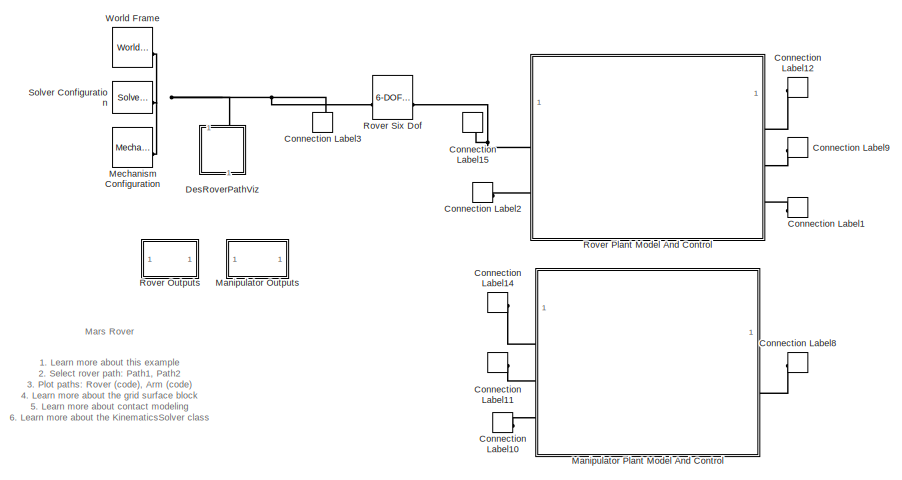
[diagram: root canvas - part 1/2, left side, full height]
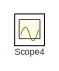
[diagram: root canvas - part 2/2, top right region]
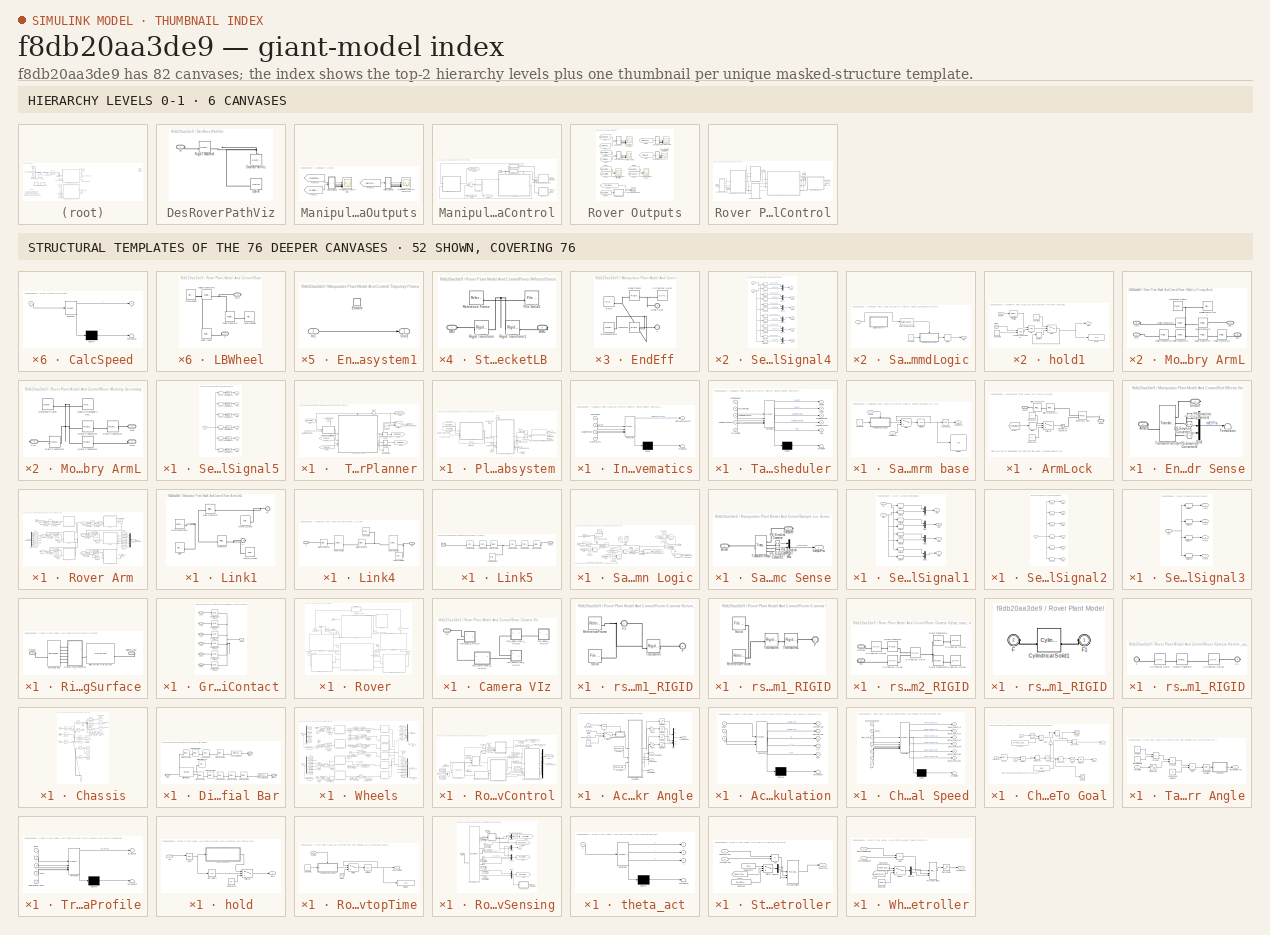
[diagram: thumbnail index - top-2 hierarchy levels (6 canvases) + 52 structural-template representatives of the remaining 76 canvases]
MODEL slx_f8db20aa3de9
KIND model
CONFIG AbsTol = 1e-3
CONFIG EnableMultiTasking = on
CONFIG FixedStep = 1e-10
CONFIG MaxStep = 0.2
CONFIG MinStep = auto
CONFIG RelTol = 1e-3
CONFIG SampleTimeConstraint = Unconstrained
CONFIG SolverName = ode23t
CONFIG StartTime = 0.0
CONFIG StopTime = 120
WORKSPACE source: MATLAB code (in-file)
WORKSPACE mdlWks = get_param(bdroot,'ModelWorkspace')
WORKSPACE code: evalin(mdlWks,'sm_mars_rover_params;[goal_loc,roverPath,pointCloud] = rover_path_select(1);');
WORKSPACE mdlpath = ['sm_mars_rover_data',filesep,'sm_mars_rover_arm']
WORKSPACE code: load_system(mdlpath);
BLOCK [ConnectionLabel] Connection Label1
  Label = RovRef
BLOCK [ConnectionLabel] Connection Label10
  Label = RovRef
  NameLocation = top
BLOCK [ConnectionLabel] Connection Label11
  Label = RovSixDofB
BLOCK [ConnectionLabel] Connection Label12
  Label = ArmB
BLOCK [ConnectionLabel] Connection Label14
  Label = ArmB
  NameLocation = top
BLOCK [ConnectionLabel] Connection Label15
  Label = RovRef
  NameLocation = left
BLOCK [ConnectionLabel] Connection Label2
  Label = RovSixDofB
  NameLocation = top
BLOCK [ConnectionLabel] Connection Label3
  Label = RovSixDofB
  NameLocation = left
BLOCK [ConnectionLabel] Connection Label8
  Label = SampleDrop
BLOCK [ConnectionLabel] Connection Label9
  Label = SampleDrop
BLOCK [SubSystem] DesRoverPathViz
BLOCK [Reference] DesRoverPathViz/Desired Path Viz  REF=sm_lib/Curves and Surfaces/Point Cloud
  NameLocation = right
  SourceBlock = sm_lib/Curves and Surfaces/Point Cloud
  SourceType = Point Cloud
BLOCK [PMIOPort] DesRoverPathViz/R
  Side = Left
BLOCK [Reference] DesRoverPathViz/Rigid Transform6  REF=sm_lib/Frames and
Transforms/Rigid
Transform
  SourceBlock = sm_lib/Frames and\nTransforms/Rigid\nTransform
  SourceType = Rigid\nTransform
BLOCK [Reference] DesRoverPathViz/Spline  REF=sm_lib/Curves and Surfaces/Spline
  SourceBlock = sm_lib/Curves and Surfaces/Spline
  SourceType = Spline
BLOCK [SubSystem] Manipulator Outputs
BLOCK [From] Manipulator Outputs/From10
  GotoTag = DesiredJointAngles
  TagVisibility = global
BLOCK [From] Manipulator Outputs/From11
  GotoTag = ActJointAngles
  TagVisibility = global
BLOCK [From] Manipulator Outputs/From12
  GotoTag = JointActuatorTrqs
  TagVisibility = global
BLOCK [Scope] Manipulator Outputs/ManipulatorJointActuatorTrqs
  Floating = off
  NumInputPorts = 6
  ScopeSpecificationString = Simulink.scopes.TimeScopeBlockCfg('CurrentConfiguration', extmgr.ConfigurationSet(extmgr.Configuration('Core','General UI',true),extmgr.Configuration('Core','Source UI',true),extmgr.Configuration('Sources','WiredSimulink',true,'DataLoggingVariableName','ScopeData2'),extmgr.Configuration('Visuals','Time Domain',true,'SerializedDisplays',{struct('MinYLimReal','-20.41831','MaxYLimReal','56.70078','YL...<+5416ch>
BLOCK [Scope] Manipulator Outputs/ManipulatorJointAngles
  Floating = off
  NumInputPorts = 6
  ScopeSpecificationString = Simulink.scopes.TimeScopeBlockCfg('CurrentConfiguration', extmgr.ConfigurationSet(extmgr.Configuration('Core','General UI',true),extmgr.Configuration('Core','Source UI',true),extmgr.Configuration('Sources','WiredSimulink',true,'DataLoggingVariableName','ScopeData1'),extmgr.Configuration('Visuals','Time Domain',true,'SerializedDisplays',{struct('MinYLimReal','-13.92364','MaxYLimReal','101.76381','Y...<+6142ch>
BLOCK [SubSystem] Manipulator Outputs/SelectSignal4
BLOCK [Inport] Manipulator Outputs/SelectSignal4/In1
BLOCK [Inport] Manipulator Outputs/SelectSignal4/In2
  Port = 2
BLOCK [Mux] Manipulator Outputs/SelectSignal4/Mux
  DisplayOption = bar
  Inputs = 2
BLOCK [Mux] Manipulator Outputs/SelectSignal4/Mux1
  DisplayOption = bar
  Inputs = 2
BLOCK [Mux] Manipulator Outputs/SelectSignal4/Mux2
  DisplayOption = bar
  Inputs = 2
BLOCK [Mux] Manipulator Outputs/SelectSignal4/Mux3
  DisplayOption = bar
  Inputs = 2
BLOCK [Mux] Manipulator Outputs/SelectSignal4/Mux4
  DisplayOption = bar
  Inputs = 2
BLOCK [Mux] Manipulator Outputs/SelectSignal4/Mux5
  DisplayOption = bar
  Inputs = 2
BLOCK [Outport] Manipulator Outputs/SelectSignal4/Out1
BLOCK [Outport] Manipulator Outputs/SelectSignal4/Out2
  Port = 2
BLOCK [Outport] Manipulator Outputs/SelectSignal4/Out3
  Port = 3
BLOCK [Outport] Manipulator Outputs/SelectSignal4/Out4
  Port = 5
BLOCK [Outport] Manipulator Outputs/SelectSignal4/Out5
  Port = 4
BLOCK [Outport] Manipulator Outputs/SelectSignal4/Out6
  Port = 6
BLOCK [Selector] Manipulator Outputs/SelectSignal4/Select
  IndexOptions = Index vector (dialog)
  Indices = 1
  InputPortWidth = 6
  OutputSizes = 1
BLOCK [Selector] Manipulator Outputs/SelectSignal4/Select1
  IndexOptions = Index vector (dialog)
  Indices = 1
  InputPortWidth = 6
  OutputSizes = 1
BLOCK [Selector] Manipulator Outputs/SelectSignal4/Select10
  IndexOptions = Index vector (dialog)
  Indices = 6
  InputPortWidth = 6
  OutputSizes = 1
BLOCK [Selector] Manipulator Outputs/SelectSignal4/Select11
  IndexOptions = Index vector (dialog)
  Indices = 6
  InputPortWidth = 6
  OutputSizes = 1
BLOCK [Selector] Manipulator Outputs/SelectSignal4/Select2
  IndexOptions = Index vector (dialog)
  Indices = 2
  InputPortWidth = 6
  OutputSizes = 1
BLOCK [Selector] Manipulator Outputs/SelectSignal4/Select3
  IndexOptions = Index vector (dialog)
  Indices = 2
  InputPortWidth = 6
  OutputSizes = 1
BLOCK [Selector] Manipulator Outputs/SelectSignal4/Select4
  IndexOptions = Index vector (dialog)
  Indices = 3
  InputPortWidth = 6
  OutputSizes = 1
BLOCK [Selector] Manipulator Outputs/SelectSignal4/Select5
  IndexOptions = Index vector (dialog)
  Indices = 3
  InputPortWidth = 6
  OutputSizes = 1
BLOCK [Selector] Manipulator Outputs/SelectSignal4/Select6
  IndexOptions = Index vector (dialog)
  Indices = 4
  InputPortWidth = 6
  OutputSizes = 1
BLOCK [Selector] Manipulator Outputs/SelectSignal4/Select7
  IndexOptions = Index vector (dialog)
  Indices = 4
  InputPortWidth = 6
  OutputSizes = 1
BLOCK [Selector] Manipulator Outputs/SelectSignal4/Select8
  IndexOptions = Index vector (dialog)
  Indices = 5
  InputPortWidth = 6
  OutputSizes = 1
BLOCK [Selector] Manipulator Outputs/SelectSignal4/Select9
  IndexOptions = Index vector (dialog)
  Indices = 5
  InputPortWidth = 6
  OutputSizes = 1
BLOCK [SubSystem] Manipulator Outputs/SelectSignal5
BLOCK [Inport] Manipulator Outputs/SelectSignal5/In1
BLOCK [Outport] Manipulator Outputs/SelectSignal5/Out1
BLOCK [Outport] Manipulator Outputs/SelectSignal5/Out2
  Port = 2
BLOCK [Outport] Manipulator Outputs/SelectSignal5/Out3
  Port = 3
BLOCK [Outport] Manipulator Outputs/SelectSignal5/Out4
  Port = 5
BLOCK [Outport] Manipulator Outputs/SelectSignal5/Out5
  Port = 4
BLOCK [Outport] Manipulator Outputs/SelectSignal5/Out6
  Port = 6
BLOCK [Selector] Manipulator Outputs/SelectSignal5/Select
  IndexOptions = Index vector (dialog)
  Indices = 1
  InputPortWidth = 6
  OutputSizes = 1
BLOCK [Selector] Manipulator Outputs/SelectSignal5/Select10
  IndexOptions = Index vector (dialog)
  Indices = 6
  InputPortWidth = 6
  OutputSizes = 1
BLOCK [Selector] Manipulator Outputs/SelectSignal5/Select2
  IndexOptions = Index vector (dialog)
  Indices = 2
  InputPortWidth = 6
  OutputSizes = 1
BLOCK [Selector] Manipulator Outputs/SelectSignal5/Select4
  IndexOptions = Index vector (dialog)
  Indices = 3
  InputPortWidth = 6
  OutputSizes = 1
BLOCK [Selector] Manipulator Outputs/SelectSignal5/Select6
  IndexOptions = Index vector (dialog)
  Indices = 4
  InputPortWidth = 6
  OutputSizes = 1
BLOCK [Selector] Manipulator Outputs/SelectSignal5/Select8
  IndexOptions = Index vector (dialog)
  Indices = 5
  InputPortWidth = 6
  OutputSizes = 1
BLOCK [TransferFcn] Manipulator Outputs/SelectSignal5/Transfer Fcn1
  Denominator = [0.1 1]
BLOCK [TransferFcn] Manipulator Outputs/SelectSignal5/Transfer Fcn2
  Denominator = [0.1 1]
BLOCK [TransferFcn] Manipulator Outputs/SelectSignal5/Transfer Fcn3
  Denominator = [0.1 1]
BLOCK [TransferFcn] Manipulator Outputs/SelectSignal5/Transfer Fcn4
  Denominator = [0.1 1]
BLOCK [TransferFcn] Manipulator Outputs/SelectSignal5/Transfer Fcn5
  Denominator = [0.1 1]
BLOCK [TransferFcn] Manipulator Outputs/SelectSignal5/Transfer Fcn6
  Denominator = [0.1 1]
BLOCK [SubSystem] Manipulator Plant Model And Control
  ShowPortLabels = none
BLOCK [SubSystem] Manipulator Plant Model And Control/ Trajectory Planner
BLOCK [Inport] Manipulator Plant Model And Control/ Trajectory Planner/ActJointAngles
  Port = 2
BLOCK [Constant] Manipulator Plant Model And Control/ Trajectory Planner/Constant
  Value = [-2.2294 -125.2918   50.0575 -175.3493  177.7706  180.0000]
BLOCK [Delay] Manipulator Plant Model And Control/ Trajectory Planner/Delay
  InputPortMap = u0
BLOCK [Outport] Manipulator Plant Model And Control/ Trajectory Planner/DesiredJointAngles
BLOCK [From] Manipulator Plant Model And Control/ Trajectory Planner/From
  GotoTag = RoverAtGoal
  TagVisibility = global
BLOCK [From] Manipulator Plant Model And Control/ Trajectory Planner/From1
  GotoTag = samplePickedSense
  TagVisibility = global
BLOCK [From] Manipulator Plant Model And Control/ Trajectory Planner/From2
  GotoTag = sampleStoredSense
  TagVisibility = global
BLOCK [Goto] Manipulator Plant Model And Control/ Trajectory Planner/Goto
  GotoTag = ArmEnable
  TagVisibility = global
BLOCK [Goto] Manipulator Plant Model And Control/ Trajectory Planner/Goto1
  GotoTag = SamplePickFlag
  TagVisibility = global
BLOCK [Goto] Manipulator Plant Model And Control/ Trajectory Planner/Goto2
  GotoTag = SampleDropOffFlag
  TagVisibility = global
BLOCK [SubSystem] Manipulator Plant Model And Control/ Trajectory Planner/Planner Subsystem
BLOCK [Inport] Manipulator Plant Model And Control/ Trajectory Planner/Planner Subsystem/ActJointAngles
BLOCK [Sum] Manipulator Plant Model And Control/ Trajectory Planner/Planner Subsystem/Add2
  IconShape = rectangular
  Inputs = +-
BLOCK [Clock] Manipulator Plant Model And Control/ Trajectory Planner/Planner Subsystem/Clock3
BLOCK [Clock] Manipulator Plant Model And Control/ Trajectory Planner/Planner Subsystem/Clock4
BLOCK [Constant] Manipulator Plant Model And Control/ Trajectory Planner/Planner Subsystem/Constant2
  Value = eeConfig.Targets
BLOCK [Constant] Manipulator Plant Model And Control/ Trajectory Planner/Planner Subsystem/Constant3
  Value = eeConfig.Ig
BLOCK [Outport] Manipulator Plant Model And Control/ Trajectory Planner/Planner Subsystem/DesJointAngles
BLOCK [EnablePort] Manipulator Plant Model And Control/ Trajectory Planner/Planner Subsystem/Enable
BLOCK [SubSystem] Manipulator Plant Model And Control/ Trajectory Planner/Planner Subsystem/Inverse Kinematics
  ErrorFcn = Stateflow.Translate.translate
  PermitHierarchicalResolution = ExplicitOnly
  SFBlockType = MATLAB Function
  TreatAsAtomicUnit = on
BLOCK [Demux] Manipulator Plant Model And Control/ Trajectory Planner/Planner Subsystem/Inverse Kinematics/ Demux 
  Outputs = 1
BLOCK [S-Function] Manipulator Plant Model And Control/ Trajectory Planner/Planner Subsystem/Inverse Kinematics/ SFunction 
  EnableBusSupport = off
  FunctionName = sf_sfun
  PortCounts = [4 2]
  SFcnIsStateOwnerBlock = off
  SFunctionDeploymentMode = off
  Tag = Stateflow S-Function 16
BLOCK [Terminator] Manipulator Plant Model And Control/ Trajectory Planner/Planner Subsystem/Inverse Kinematics/ Terminator 
BLOCK [Inport] Manipulator Plant Model And Control/ Trajectory Planner/Planner Subsystem/Inverse Kinematics/eeIgs
  Port = 2
BLOCK [Inport] Manipulator Plant Model And Control/ Trajectory Planner/Planner Subsystem/Inverse Kinematics/eePoseDes
BLOCK [Outport] Manipulator Plant Model And Control/ Trajectory Planner/Planner Subsystem/Inverse Kinematics/jointSpaceWayPts
BLOCK [Inport] Manipulator Plant Model And Control/ Trajectory Planner/Planner Subsystem/Inverse Kinematics/prevWayPts
  Port = 4
BLOCK [Inport] Manipulator Plant Model And Control/ Trajectory Planner/Planner Subsystem/Inverse Kinematics/samplePosition
  Port = 3
BLOCK [Inport] Manipulator Plant Model And Control/ Trajectory Planner/Planner Subsystem/IsSampleCollected
  Port = 4
BLOCK [Inport] Manipulator Plant Model And Control/ Trajectory Planner/Planner Subsystem/IsSamplePicked
  Port = 3
BLOCK [Outport] Manipulator Plant Model And Control/ Trajectory Planner/Planner Subsystem/SampleDropCmd
  Port = 3
BLOCK [Outport] Manipulator Plant Model And Control/ Trajectory Planner/Planner Subsystem/SamplePickCmd
  Port = 2
BLOCK [Inport] Manipulator Plant Model And Control/ Trajectory Planner/Planner Subsystem/SamplePosition
  Port = 2
BLOCK [SubSystem] Manipulator Plant Model And Control/ Trajectory Planner/Planner Subsystem/Task Scheduler
  ErrorFcn = Stateflow.Translate.translate
  PermitHierarchicalResolution = ExplicitOnly
  SFBlockType = MATLAB Function
  TreatAsAtomicUnit = on
BLOCK [Demux] Manipulator Plant Model And Control/ Trajectory Planner/Planner Subsystem/Task Scheduler/ Demux 
  Outputs = 1
BLOCK [S-Function] Manipulator Plant Model And Control/ Trajectory Planner/Planner Subsystem/Task Scheduler/ SFunction 
  EnableBusSupport = off
  FunctionName = sf_sfun
  PortCounts = [5 6]
  SFcnIsStateOwnerBlock = off
  SFunctionDeploymentMode = off
  Tag = Stateflow S-Function 15
BLOCK [Terminator] Manipulator Plant Model And Control/ Trajectory Planner/Planner Subsystem/Task Scheduler/ Terminator 
BLOCK [Inport] Manipulator Plant Model And Control/ Trajectory Planner/Planner Subsystem/Task Scheduler/actJointAngles
BLOCK [Inport] Manipulator Plant Model And Control/ Trajectory Planner/Planner Subsystem/Task Scheduler/currentTime
  Port = 5
BLOCK [Inport] Manipulator Plant Model And Control/ Trajectory Planner/Planner Subsystem/Task Scheduler/desJointAngles
  Port = 2
BLOCK [Outport] Manipulator Plant Model And Control/ Trajectory Planner/Planner Subsystem/Task Scheduler/reset_t
  Port = 2
BLOCK [Outport] Manipulator Plant Model And Control/ Trajectory Planner/Planner Subsystem/Task Scheduler/sampleDropCmd
  Port = 4
BLOCK [Inport] Manipulator Plant Model And Control/ Trajectory Planner/Planner Subsystem/Task Scheduler/sampleDropSense
  Port = 4
BLOCK [Outport] Manipulator Plant Model And Control/ Trajectory Planner/Planner Subsystem/Task Scheduler/samplePickCmd
  Port = 3
BLOCK [Inport] Manipulator Plant Model And Control/ Trajectory Planner/Planner Subsystem/Task Scheduler/samplePickSense
  Port = 3
BLOCK [Outport] Manipulator Plant Model And Control/ Trajectory Planner/Planner Subsystem/Task Scheduler/stop
  Port = 5
BLOCK [Outport] Manipulator Plant Model And Control/ Trajectory Planner/Planner Subsystem/Task Scheduler/wayPts
BLOCK [Terminator] Manipulator Plant Model And Control/ Trajectory Planner/Planner Subsystem/Terminator2
BLOCK [Terminator] Manipulator Plant Model And Control/ Trajectory Planner/Planner Subsystem/Terminator3
BLOCK [Math] Manipulator Plant Model And Control/ Trajectory Planner/Planner Subsystem/Transpose
  Operator = transpose
BLOCK [Reference] Manipulator Plant Model And Control/ Trajectory Planner/Planner Subsystem/Trapezoidal Velocity Profile Trajectory  REF=robotcorelib/Trapezoidal Velocity Profile Trajectory
  SourceBlock = robotcorelib/Trapezoidal Velocity Profile Trajectory
  SourceType = robotics.slcore.internal.block.TrapVelTrajSys
BLOCK [UnitDelay] Manipulator Plant Model And Control/ Trajectory Planner/Planner Subsystem/Unit Delay1
  HasFrameUpgradeWarning = on
  InitialCondition = zeros(7,6)
  NameLocation = top
  SampleTime = -1
BLOCK [Outport] Manipulator Plant Model And Control/ Trajectory Planner/Planner Subsystem/stop
  Port = 4
BLOCK [SubSystem] Manipulator Plant Model And Control/ Trajectory Planner/SampleDropOffCmdLogic
BLOCK [Constant] Manipulator Plant Model And Control/ Trajectory Planner/SampleDropOffCmdLogic/Constant2
BLOCK [DataTypeConversion] Manipulator Plant Model And Control/ Trajectory Planner/SampleDropOffCmdLogic/Data Type Conversion
  OutDataTypeStr = double
  RndMeth = Floor
  SaturateOnIntegerOverflow = off
BLOCK [Delay] Manipulator Plant Model And Control/ Trajectory Planner/SampleDropOffCmdLogic/Delay
  InputPortMap = u0
BLOCK [SubSystem] Manipulator Plant Model And Control/ Trajectory Planner/SampleDropOffCmdLogic/DistanceError
  Commented = on
  ErrorFcn = Stateflow.Translate.translate
  PermitHierarchicalResolution = ExplicitOnly
  SFBlockType = MATLAB Function
  TreatAsAtomicUnit = on
BLOCK [Demux] Manipulator Plant Model And Control/ Trajectory Planner/SampleDropOffCmdLogic/DistanceError/ Demux 
  Outputs = 1
BLOCK [S-Function] Manipulator Plant Model And Control/ Trajectory Planner/SampleDropOffCmdLogic/DistanceError/ SFunction 
  EnableBusSupport = off
  FunctionName = sf_sfun
  PortCounts = [1 2]
  SFcnIsStateOwnerBlock = off
  SFunctionDeploymentMode = off
  Tag = Stateflow S-Function 7
BLOCK [Terminator] Manipulator Plant Model And Control/ Trajectory Planner/SampleDropOffCmdLogic/DistanceError/ Terminator 
BLOCK [Outport] Manipulator Plant Model And Control/ Trajectory Planner/SampleDropOffCmdLogic/DistanceError/flag
BLOCK [Inport] Manipulator Plant Model And Control/ Trajectory Planner/SampleDropOffCmdLogic/DistanceError/u
BLOCK [SubSystem] Manipulator Plant Model And Control/ Trajectory Planner/SampleDropOffCmdLogic/Enabled Subsystem1
  MinAlgLoopOccurrences = on
  TreatAsAtomicUnit = on
BLOCK [EnablePort] Manipulator Plant Model And Control/ Trajectory Planner/SampleDropOffCmdLogic/Enabled Subsystem1/Enable
BLOCK [Inport] Manipulator Plant Model And Control/ Trajectory Planner/SampleDropOffCmdLogic/Enabled Subsystem1/In1
BLOCK [Outport] Manipulator Plant Model And Control/ Trajectory Planner/SampleDropOffCmdLogic/Enabled Subsystem1/Out1
BLOCK [Outport] Manipulator Plant Model And Control/ Trajectory Planner/SampleDropOffCmdLogic/Out1
BLOCK [Inport] Manipulator Plant Model And Control/ Trajectory Planner/SampleDropOffCmdLogic/u
BLOCK [SubSystem] Manipulator Plant Model And Control/ Trajectory Planner/SampleLoc wrt arm base
BLOCK [Constant] Manipulator Plant Model And Control/ Trajectory Planner/SampleLoc wrt arm base/Constant2
BLOCK [Display] Manipulator Plant Model And Control/ Trajectory Planner/SampleLoc wrt arm base/Display
  Decimation = 1
BLOCK [Inport] Manipulator Plant Model And Control/ Trajectory Planner/SampleLoc wrt arm base/Enable
BLOCK [SubSystem] Manipulator Plant Model And Control/ Trajectory Planner/SampleLoc wrt arm base/Enabled Subsystem1
  MinAlgLoopOccurrences = on
  TreatAsAtomicUnit = on
BLOCK [EnablePort] Manipulator Plant Model And Control/ Trajectory Planner/SampleLoc wrt arm base/Enabled Subsystem1/Enable
BLOCK [Inport] Manipulator Plant Model And Control/ Trajectory Planner/SampleLoc wrt arm base/Enabled Subsystem1/In1
BLOCK [Outport] Manipulator Plant Model And Control/ Trajectory Planner/SampleLoc wrt arm base/Enabled Subsystem1/Out1
BLOCK [Inport] Manipulator Plant Model And Control/ Trajectory Planner/SampleLoc wrt arm base/SampleLoc
  Port = 2
BLOCK [Outport] Manipulator Plant Model And Control/ Trajectory Planner/SampleLoc wrt arm base/SamplePos
BLOCK [Switch] Manipulator Plant Model And Control/ Trajectory Planner/SampleLoc wrt arm base/Switch
  Criteria = u2 > Threshold
  InputSameDT = off
  SaturateOnIntegerOverflow = off
BLOCK [Math] Manipulator Plant Model And Control/ Trajectory Planner/SampleLoc wrt arm base/Transpose1
  Operator = transpose
BLOCK [UnitDelay] Manipulator Plant Model And Control/ Trajectory Planner/SampleLoc wrt arm base/Unit Delay
  HasFrameUpgradeWarning = on
  SampleTime = -1
BLOCK [Inport] Manipulator Plant Model And Control/ Trajectory Planner/SampleLocation
BLOCK [SubSystem] Manipulator Plant Model And Control/ Trajectory Planner/SamplePickUpCmdLogic
BLOCK [Constant] Manipulator Plant Model And Control/ Trajectory Planner/SamplePickUpCmdLogic/Constant2
BLOCK [DataTypeConversion] Manipulator Plant Model And Control/ Trajectory Planner/SamplePickUpCmdLogic/Data Type Conversion
  OutDataTypeStr = double
  RndMeth = Floor
  SaturateOnIntegerOverflow = off
BLOCK [Delay] Manipulator Plant Model And Control/ Trajectory Planner/SamplePickUpCmdLogic/Delay
  InputPortMap = u0
BLOCK [SubSystem] Manipulator Plant Model And Control/ Trajectory Planner/SamplePickUpCmdLogic/DistanceError
  Commented = on
  ErrorFcn = Stateflow.Translate.translate
  PermitHierarchicalResolution = ExplicitOnly
  SFBlockType = MATLAB Function
  TreatAsAtomicUnit = on
BLOCK [Demux] Manipulator Plant Model And Control/ Trajectory Planner/SamplePickUpCmdLogic/DistanceError/ Demux 
  Outputs = 1
BLOCK [S-Function] Manipulator Plant Model And Control/ Trajectory Planner/SamplePickUpCmdLogic/DistanceError/ SFunction 
  EnableBusSupport = off
  FunctionName = sf_sfun
  PortCounts = [1 2]
  SFcnIsStateOwnerBlock = off
  SFunctionDeploymentMode = off
  Tag = Stateflow S-Function 6
BLOCK [Terminator] Manipulator Plant Model And Control/ Trajectory Planner/SamplePickUpCmdLogic/DistanceError/ Terminator 
BLOCK [Outport] Manipulator Plant Model And Control/ Trajectory Planner/SamplePickUpCmdLogic/DistanceError/flag
BLOCK [Inport] Manipulator Plant Model And Control/ Trajectory Planner/SamplePickUpCmdLogic/DistanceError/u
BLOCK [SubSystem] Manipulator Plant Model And Control/ Trajectory Planner/SamplePickUpCmdLogic/Enabled Subsystem1
  MinAlgLoopOccurrences = on
  TreatAsAtomicUnit = on
BLOCK [EnablePort] Manipulator Plant Model And Control/ Trajectory Planner/SamplePickUpCmdLogic/Enabled Subsystem1/Enable
BLOCK [Inport] Manipulator Plant Model And Control/ Trajectory Planner/SamplePickUpCmdLogic/Enabled Subsystem1/In1
BLOCK [Outport] Manipulator Plant Model And Control/ Trajectory Planner/SamplePickUpCmdLogic/Enabled Subsystem1/Out1
BLOCK [Outport] Manipulator Plant Model And Control/ Trajectory Planner/SamplePickUpCmdLogic/Out1
BLOCK [Inport] Manipulator Plant Model And Control/ Trajectory Planner/SamplePickUpCmdLogic/u
BLOCK [Stop] Manipulator Plant Model And Control/ Trajectory Planner/Stop Simulation
BLOCK [Switch] Manipulator Plant Model And Control/ Trajectory Planner/Switch
  Criteria = u2 > Threshold
  InputSameDT = off
  SaturateOnIntegerOverflow = off
BLOCK [Sum] Manipulator Plant Model And Control/Add
  IconShape = rectangular
  Inputs = +-
BLOCK [PMIOPort] Manipulator Plant Model And Control/ArmBase
  Side = Left
BLOCK [SubSystem] Manipulator Plant Model And Control/ArmLock
BLOCK [PMIOPort] Manipulator Plant Model And Control/ArmLock/Conn1
  Side = Right
BLOCK [PMIOPort] Manipulator Plant Model And Control/ArmLock/Conn2
  Port = 2
  Side = Left
BLOCK [Constant] Manipulator Plant Model And Control/ArmLock/Constant1
  Value = -1
BLOCK [Constant] Manipulator Plant Model And Control/ArmLock/Constant2
  Value = 0
BLOCK [Delay] Manipulator Plant Model And Control/ArmLock/Delay
  InputPortMap = u0
BLOCK [From] Manipulator Plant Model And Control/ArmLock/From
  GotoTag = ArmEnable
  TagVisibility = global
BLOCK [Reference] Manipulator Plant Model And Control/ArmLock/Rigid Transform  REF=sm_lib/Frames and
Transforms/Rigid
Transform
  SourceBlock = sm_lib/Frames and\nTransforms/Rigid\nTransform
  SourceType = Rigid\nTransform
BLOCK [Reference] Manipulator Plant Model And Control/ArmLock/Rigid Transform1  REF=sm_lib/Frames and
Transforms/Rigid
Transform
  SourceBlock = sm_lib/Frames and\nTransforms/Rigid\nTransform
  SourceType = Rigid\nTransform
BLOCK [Reference] Manipulator Plant Model And Control/ArmLock/SPrismatic Joint  REF=sm_lib/Joints/Prismatic
Joint
  SourceBlock = sm_lib/Joints/Prismatic\nJoint
  SourceType = Prismatic\nJoint
BLOCK [Reference] Manipulator Plant Model And Control/ArmLock/Simulink-PS Converter  REF=nesl_utility/Simulink-PS
Converter
  SourceBlock = nesl_utility/Simulink-PS\nConverter
  SourceType = Simulink-PS\nConverter
BLOCK [Switch] Manipulator Plant Model And Control/ArmLock/Switch1
  Criteria = u2 > Threshold
  InputSameDT = off
  SaturateOnIntegerOverflow = off
BLOCK [SubSystem] Manipulator Plant Model And Control/End Effector Sense
BLOCK [PMIOPort] Manipulator Plant Model And Control/End Effector Sense/ArmB
  Side = Left
BLOCK [PMIOPort] Manipulator Plant Model And Control/End Effector Sense/EndEff
  Port = 2
  Side = Right
BLOCK [Mux] Manipulator Plant Model And Control/End Effector Sense/Mux1
  DisplayOption = bar
  Inputs = 3
BLOCK [Reference] Manipulator Plant Model And Control/End Effector Sense/PS-Simulink Converter6  REF=nesl_utility/PS-Simulink
Converter
  SourceBlock = nesl_utility/PS-Simulink\nConverter
  SourceType = PS-Simulink\nConverter
BLOCK [Reference] Manipulator Plant Model And Control/End Effector Sense/PS-Simulink Converter7  REF=nesl_utility/PS-Simulink
Converter
  SourceBlock = nesl_utility/PS-Simulink\nConverter
  SourceType = PS-Simulink\nConverter
BLOCK [Reference] Manipulator Plant Model And Control/End Effector Sense/PS-Simulink Converter8  REF=nesl_utility/PS-Simulink
Converter
  SourceBlock = nesl_utility/PS-Simulink\nConverter
  SourceType = PS-Simulink\nConverter
BLOCK [Terminator] Manipulator Plant Model And Control/End Effector Sense/Terminator
BLOCK [Reference] Manipulator Plant Model And Control/End Effector Sense/Transform Sensor  REF=sm_lib/Frames and
Transforms/Transform
Sensor
  SourceBlock = sm_lib/Frames and\nTransforms/Transform\nSensor
  SourceType = Transform\nSensor
BLOCK [Goto] Manipulator Plant Model And Control/Goto1
  GotoTag = ActJointAngles
  TagVisibility = global
BLOCK [Goto] Manipulator Plant Model And Control/Goto2
  GotoTag = DesiredJointAngles
  TagVisibility = global
BLOCK [Goto] Manipulator Plant Model And Control/Goto3
  GotoTag = JointActuatorTrqs
  TagVisibility = global
BLOCK [Reference] Manipulator Plant Model And Control/PID Control  REF=slpidlib/PID Controller
  SourceBlock = slpidlib/PID Controller
  SourceType = PID 1dof
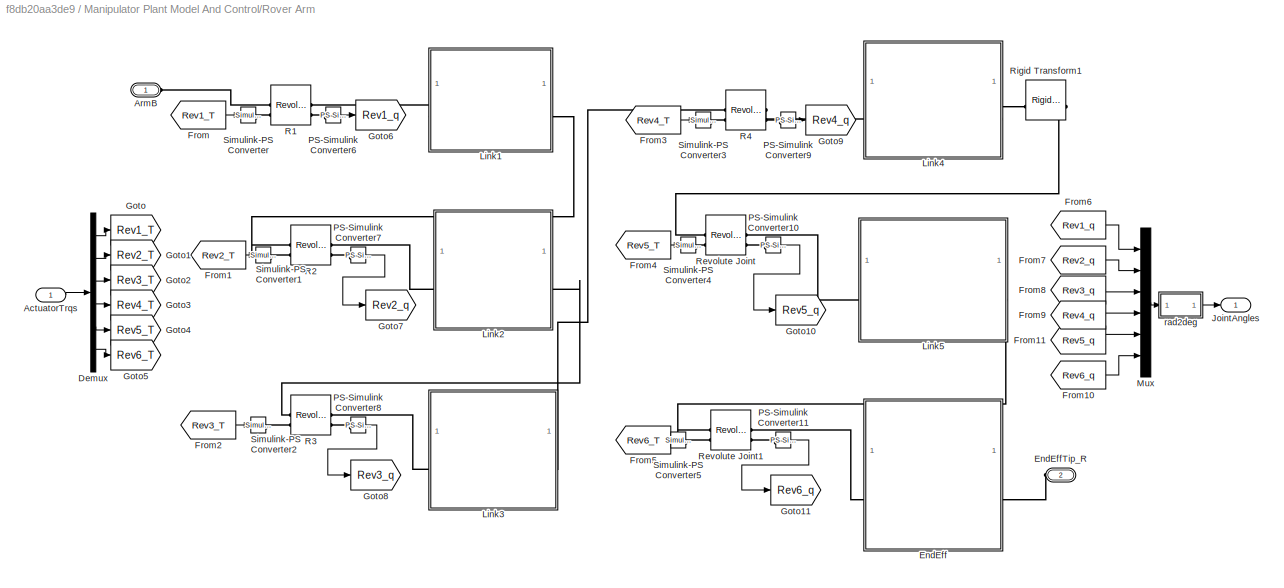
BLOCK [SubSystem] Manipulator Plant Model And Control/Rover Arm
  PortSchema = {"entries":[{"content":{"sides":[{"content":{"connectorIds":["In1"]},"type":"ConnectorPlacement.EquallySpacedRectSide","uuid":"44c8adb7-00ac-400a-98ed-ead5e12ad105"},{"content":{"connectorIds":["Out1"],"side":"RIGHT"},"type":"ConnectorPlacement.EquallySpacedRectSide","uuid":"fdc7bd8f-ace2-488d-8919-cf5c650dd1d7"},{"content":{"connectorIds":["LConn1","LConn2"],"side":"TOP"},"type":"ConnectorPlaceme...<+257ch>
BLOCK [Inport] Manipulator Plant Model And Control/Rover Arm/ActuatorTrqs
BLOCK [PMIOPort] Manipulator Plant Model And Control/Rover Arm/ArmB
  Side = Left
BLOCK [Demux] Manipulator Plant Model And Control/Rover Arm/Demux
  Outputs = 6
BLOCK [SubSystem] Manipulator Plant Model And Control/Rover Arm/EndEff
BLOCK [Reference] Manipulator Plant Model And Control/Rover Arm/EndEff/Cylindrical Solid  REF=sm_lib/Body Elements/Cylindrical Solid
  NameLocation = top
  SourceBlock = sm_lib/Body Elements/Cylindrical Solid
  SourceType = Cylindrical Solid
BLOCK [PMIOPort] Manipulator Plant Model And Control/Rover Arm/EndEff/EndEffTip2
  Port = 2
  Side = Right
BLOCK [Reference] Manipulator Plant Model And Control/Rover Arm/EndEff/EndEffector  REF=sm_lib/Frames and
Transforms/Rigid
Transform
  SourceBlock = sm_lib/Frames and\nTransforms/Rigid\nTransform
  SourceType = Rigid\nTransform
BLOCK [PMIOPort] Manipulator Plant Model And Control/Rover Arm/EndEff/F
  Side = Left
BLOCK [Reference] Manipulator Plant Model And Control/Rover Arm/EndEff/ReferenceFrame  REF=sm_lib/Frames and
Transforms/Reference
Frame
  SourceBlock = sm_lib/Frames and\nTransforms/Reference\nFrame
  SourceType = Reference\nFrame
BLOCK [Reference] Manipulator Plant Model And Control/Rover Arm/EndEff/Solid  REF=sm_lib/Body Elements/File Solid
  SourceBlock = sm_lib/Body Elements/File Solid
  SourceType = File Solid
BLOCK [Reference] Manipulator Plant Model And Control/Rover Arm/EndEff/Transform  REF=sm_lib/Frames and
Transforms/Rigid
Transform
  SourceBlock = sm_lib/Frames and\nTransforms/Rigid\nTransform
  SourceType = Rigid\nTransform
BLOCK [PMIOPort] Manipulator Plant Model And Control/Rover Arm/EndEffTip_R
  Port = 2
  Side = Left
BLOCK [From] Manipulator Plant Model And Control/Rover Arm/From
  GotoTag = Rev1_T
BLOCK [From] Manipulator Plant Model And Control/Rover Arm/From1
  GotoTag = Rev2_T
BLOCK [From] Manipulator Plant Model And Control/Rover Arm/From10
  GotoTag = Rev6_q
BLOCK [From] Manipulator Plant Model And Control/Rover Arm/From11
  GotoTag = Rev5_q
BLOCK [From] Manipulator Plant Model And Control/Rover Arm/From2
  GotoTag = Rev3_T
BLOCK [From] Manipulator Plant Model And Control/Rover Arm/From3
  GotoTag = Rev4_T
BLOCK [From] Manipulator Plant Model And Control/Rover Arm/From4
  GotoTag = Rev5_T
BLOCK [From] Manipulator Plant Model And Control/Rover Arm/From5
  GotoTag = Rev6_T
BLOCK [From] Manipulator Plant Model And Control/Rover Arm/From6
  GotoTag = Rev1_q
BLOCK [From] Manipulator Plant Model And Control/Rover Arm/From7
  GotoTag = Rev2_q
BLOCK [From] Manipulator Plant Model And Control/Rover Arm/From8
  GotoTag = Rev3_q
BLOCK [From] Manipulator Plant Model And Control/Rover Arm/From9
  GotoTag = Rev4_q
BLOCK [Goto] Manipulator Plant Model And Control/Rover Arm/Goto
  GotoTag = Rev1_T
BLOCK [Goto] Manipulator Plant Model And Control/Rover Arm/Goto1
  GotoTag = Rev2_T
BLOCK [Goto] Manipulator Plant Model And Control/Rover Arm/Goto10
  GotoTag = Rev5_q
BLOCK [Goto] Manipulator Plant Model And Control/Rover Arm/Goto11
  GotoTag = Rev6_q
BLOCK [Goto] Manipulator Plant Model And Control/Rover Arm/Goto2
  GotoTag = Rev3_T
BLOCK [Goto] Manipulator Plant Model And Control/Rover Arm/Goto3
  GotoTag = Rev4_T
BLOCK [Goto] Manipulator Plant Model And Control/Rover Arm/Goto4
  GotoTag = Rev5_T
  NameLocation = right
BLOCK [Goto] Manipulator Plant Model And Control/Rover Arm/Goto5
  GotoTag = Rev6_T
BLOCK [Goto] Manipulator Plant Model And Control/Rover Arm/Goto6
  GotoTag = Rev1_q
BLOCK [Goto] Manipulator Plant Model And Control/Rover Arm/Goto7
  GotoTag = Rev2_q
BLOCK [Goto] Manipulator Plant Model And Control/Rover Arm/Goto8
  GotoTag = Rev3_q
BLOCK [Goto] Manipulator Plant Model And Control/Rover Arm/Goto9
  GotoTag = Rev4_q
BLOCK [Outport] Manipulator Plant Model And Control/Rover Arm/JointAngles
BLOCK [SubSystem] Manipulator Plant Model And Control/Rover Arm/Link1
BLOCK [PMIOPort] Manipulator Plant Model And Control/Rover Arm/Link1/F
  Port = 2
  Side = Right
BLOCK [PMIOPort] Manipulator Plant Model And Control/Rover Arm/Link1/F1
  Side = Left
BLOCK [Reference] Manipulator Plant Model And Control/Rover Arm/Link1/Motor1_Geom  REF=sm_lib/Body Elements/Cylindrical Solid
  SourceBlock = sm_lib/Body Elements/Cylindrical Solid
  SourceType = Cylindrical Solid
BLOCK [Reference] Manipulator Plant Model And Control/Rover Arm/Link1/Motor2_Geom  REF=sm_lib/Body Elements/Cylindrical Solid
  SourceBlock = sm_lib/Body Elements/Cylindrical Solid
  SourceType = Cylindrical Solid
BLOCK [Reference] Manipulator Plant Model And Control/Rover Arm/Link1/ReferenceFrame  REF=sm_lib/Frames and
Transforms/Reference
Frame
  SourceBlock = sm_lib/Frames and\nTransforms/Reference\nFrame
  SourceType = Reference\nFrame
BLOCK [Reference] Manipulator Plant Model And Control/Rover Arm/Link1/Rigid Transform  REF=sm_lib/Frames and
Transforms/Rigid
Transform
  SourceBlock = sm_lib/Frames and\nTransforms/Rigid\nTransform
  SourceType = Rigid\nTransform
BLOCK [Reference] Manipulator Plant Model And Control/Rover Arm/Link1/Solid  REF=sm_lib/Body Elements/File Solid
  SourceBlock = sm_lib/Body Elements/File Solid
  SourceType = File Solid
BLOCK [Reference] Manipulator Plant Model And Control/Rover Arm/Link1/Transform  REF=sm_lib/Frames and
Transforms/Rigid
Transform
  SourceBlock = sm_lib/Frames and\nTransforms/Rigid\nTransform
  SourceType = Rigid\nTransform
BLOCK [SubSystem] Manipulator Plant Model And Control/Rover Arm/Link2
BLOCK [PMIOPort] Manipulator Plant Model And Control/Rover Arm/Link2/F
  Side = Left
BLOCK [PMIOPort] Manipulator Plant Model And Control/Rover Arm/Link2/F1
  Port = 2
  Side = Right
BLOCK [Reference] Manipulator Plant Model And Control/Rover Arm/Link2/Motor3_Geom  REF=sm_lib/Body Elements/Cylindrical Solid
  SourceBlock = sm_lib/Body Elements/Cylindrical Solid
  SourceType = Cylindrical Solid
BLOCK [Reference] Manipulator Plant Model And Control/Rover Arm/Link2/ReferenceFrame  REF=sm_lib/Frames and
Transforms/Reference
Frame
  SourceBlock = sm_lib/Frames and\nTransforms/Reference\nFrame
  SourceType = Reference\nFrame
BLOCK [Reference] Manipulator Plant Model And Control/Rover Arm/Link2/Solid  REF=sm_lib/Body Elements/File Solid
  SourceBlock = sm_lib/Body Elements/File Solid
  SourceType = File Solid
BLOCK [Reference] Manipulator Plant Model And Control/Rover Arm/Link2/Transform  REF=sm_lib/Frames and
Transforms/Rigid
Transform
  SourceBlock = sm_lib/Frames and\nTransforms/Rigid\nTransform
  SourceType = Rigid\nTransform
BLOCK [Reference] Manipulator Plant Model And Control/Rover Arm/Link2/Transform1  REF=sm_lib/Frames and
Transforms/Rigid
Transform
  SourceBlock = sm_lib/Frames and\nTransforms/Rigid\nTransform
  SourceType = Rigid\nTransform
BLOCK [SubSystem] Manipulator Plant Model And Control/Rover Arm/Link3
BLOCK [PMIOPort] Manipulator Plant Model And Control/Rover Arm/Link3/F
  Side = Left
BLOCK [PMIOPort] Manipulator Plant Model And Control/Rover Arm/Link3/F1
  Port = 2
  Side = Right
BLOCK [Reference] Manipulator Plant Model And Control/Rover Arm/Link3/Motor2_Geom  REF=sm_lib/Body Elements/Cylindrical Solid
  SourceBlock = sm_lib/Body Elements/Cylindrical Solid
  SourceType = Cylindrical Solid
BLOCK [Reference] Manipulator Plant Model And Control/Rover Arm/Link3/ReferenceFrame  REF=sm_lib/Frames and
Transforms/Reference
Frame
  SourceBlock = sm_lib/Frames and\nTransforms/Reference\nFrame
  SourceType = Reference\nFrame
BLOCK [Reference] Manipulator Plant Model And Control/Rover Arm/Link3/Solid  REF=sm_lib/Body Elements/File Solid
  SourceBlock = sm_lib/Body Elements/File Solid
  SourceType = File Solid
BLOCK [Reference] Manipulator Plant Model And Control/Rover Arm/Link3/Transform  REF=sm_lib/Frames and
Transforms/Rigid
Transform
  SourceBlock = sm_lib/Frames and\nTransforms/Rigid\nTransform
  SourceType = Rigid\nTransform
BLOCK [Reference] Manipulator Plant Model And Control/Rover Arm/Link3/Transform1  REF=sm_lib/Frames and
Transforms/Rigid
Transform
  SourceBlock = sm_lib/Frames and\nTransforms/Rigid\nTransform
  SourceType = Rigid\nTransform
BLOCK [SubSystem] Manipulator Plant Model And Control/Rover Arm/Link4
BLOCK [Reference] Manipulator Plant Model And Control/Rover Arm/Link4/Brick Solid  REF=sm_lib/Body Elements/Brick Solid
  SourceBlock = sm_lib/Body Elements/Brick Solid
  SourceType = Brick Solid
BLOCK [Reference] Manipulator Plant Model And Control/Rover Arm/Link4/Cylindrical Solid  REF=sm_lib/Body Elements/Cylindrical Solid
  SourceBlock = sm_lib/Body Elements/Cylindrical Solid
  SourceType = Cylindrical Solid
BLOCK [Reference] Manipulator Plant Model And Control/Rover Arm/Link4/Cylindrical Solid1  REF=sm_lib/Body Elements/Cylindrical Solid
  NameLocation = top
  SourceBlock = sm_lib/Body Elements/Cylindrical Solid
  SourceType = Cylindrical Solid
BLOCK [Reference] Manipulator Plant Model And Control/Rover Arm/Link4/Cylindrical Solid4  REF=sm_lib/Body Elements/Cylindrical Solid
  SourceBlock = sm_lib/Body Elements/Cylindrical Solid
  SourceType = Cylindrical Solid
BLOCK [PMIOPort] Manipulator Plant Model And Control/Rover Arm/Link4/L1
  Side = Left
BLOCK [PMIOPort] Manipulator Plant Model And Control/Rover Arm/Link4/R1
  Port = 2
  Side = Right
BLOCK [Reference] Manipulator Plant Model And Control/Rover Arm/Link4/Rigid Transform  REF=sm_lib/Frames and
Transforms/Rigid
Transform
  SourceBlock = sm_lib/Frames and\nTransforms/Rigid\nTransform
  SourceType = Rigid\nTransform
BLOCK [Reference] Manipulator Plant Model And Control/Rover Arm/Link4/Rigid Transform1  REF=sm_lib/Frames and
Transforms/Rigid
Transform
  SourceBlock = sm_lib/Frames and\nTransforms/Rigid\nTransform
  SourceType = Rigid\nTransform
BLOCK [SubSystem] Manipulator Plant Model And Control/Rover Arm/Link5
BLOCK [PMIOPort] Manipulator Plant Model And Control/Rover Arm/Link5/Conn1
  Side = Right
BLOCK [PMIOPort] Manipulator Plant Model And Control/Rover Arm/Link5/Conn2
  Port = 2
  Side = Left
BLOCK [Reference] Manipulator Plant Model And Control/Rover Arm/Link5/Cylindrical Solid  REF=sm_lib/Body Elements/Cylindrical Solid
  SourceBlock = sm_lib/Body Elements/Cylindrical Solid
  SourceType = Cylindrical Solid
BLOCK [Reference] Manipulator Plant Model And Control/Rover Arm/Link5/Cylindrical Solid1  REF=sm_lib/Body Elements/Cylindrical Solid
  SourceBlock = sm_lib/Body Elements/Cylindrical Solid
  SourceType = Cylindrical Solid
BLOCK [Reference] Manipulator Plant Model And Control/Rover Arm/Link5/Cylindrical Solid2  REF=sm_lib/Body Elements/Cylindrical Solid
  SourceBlock = sm_lib/Body Elements/Cylindrical Solid
  SourceType = Cylindrical Solid
BLOCK [Reference] Manipulator Plant Model And Control/Rover Arm/Link5/Cylindrical Solid3  REF=sm_lib/Body Elements/Cylindrical Solid
  SourceBlock = sm_lib/Body Elements/Cylindrical Solid
  SourceType = Cylindrical Solid
BLOCK [Reference] Manipulator Plant Model And Control/Rover Arm/Link5/Cylindrical Solid5  REF=sm_lib/Body Elements/Cylindrical Solid
  NameLocation = left
  SourceBlock = sm_lib/Body Elements/Cylindrical Solid
  SourceType = Cylindrical Solid
BLOCK [Reference] Manipulator Plant Model And Control/Rover Arm/Link5/Rigid Transform  REF=sm_lib/Frames and
Transforms/Rigid
Transform
  SourceBlock = sm_lib/Frames and\nTransforms/Rigid\nTransform
  SourceType = Rigid\nTransform
BLOCK [Reference] Manipulator Plant Model And Control/Rover Arm/Link5/Rigid Transform2  REF=sm_lib/Frames and
Transforms/Rigid
Transform
  SourceBlock = sm_lib/Frames and\nTransforms/Rigid\nTransform
  SourceType = Rigid\nTransform
BLOCK [Mux] Manipulator Plant Model And Control/Rover Arm/Mux
  DisplayOption = bar
  Inputs = 6
BLOCK [Reference] Manipulator Plant Model And Control/Rover Arm/PS-Simulink Converter10  REF=nesl_utility/PS-Simulink
Converter
  SourceBlock = nesl_utility/PS-Simulink\nConverter
  SourceType = PS-Simulink\nConverter
BLOCK [Reference] Manipulator Plant Model And Control/Rover Arm/PS-Simulink Converter11  REF=nesl_utility/PS-Simulink
Converter
  SourceBlock = nesl_utility/PS-Simulink\nConverter
  SourceType = PS-Simulink\nConverter
BLOCK [Reference] Manipulator Plant Model And Control/Rover Arm/PS-Simulink Converter6  REF=nesl_utility/PS-Simulink
Converter
  SourceBlock = nesl_utility/PS-Simulink\nConverter
  SourceType = PS-Simulink\nConverter
BLOCK [Reference] Manipulator Plant Model And Control/Rover Arm/PS-Simulink Converter7  REF=nesl_utility/PS-Simulink
Converter
  SourceBlock = nesl_utility/PS-Simulink\nConverter
  SourceType = PS-Simulink\nConverter
BLOCK [Reference] Manipulator Plant Model And Control/Rover Arm/PS-Simulink Converter8  REF=nesl_utility/PS-Simulink
Converter
  SourceBlock = nesl_utility/PS-Simulink\nConverter
  SourceType = PS-Simulink\nConverter
BLOCK [Reference] Manipulator Plant Model And Control/Rover Arm/PS-Simulink Converter9  REF=nesl_utility/PS-Simulink
Converter
  SourceBlock = nesl_utility/PS-Simulink\nConverter
  SourceType = PS-Simulink\nConverter
BLOCK [Reference] Manipulator Plant Model And Control/Rover Arm/R1  REF=sm_lib/Joints/Revolute Joint
  SourceBlock = sm_lib/Joints/Revolute Joint
  SourceType = Revolute Joint
BLOCK [Reference] Manipulator Plant Model And Control/Rover Arm/R2  REF=sm_lib/Joints/Revolute Joint
  SourceBlock = sm_lib/Joints/Revolute Joint
  SourceType = Revolute Joint
BLOCK [Reference] Manipulator Plant Model And Control/Rover Arm/R3  REF=sm_lib/Joints/Revolute Joint
  SourceBlock = sm_lib/Joints/Revolute Joint
  SourceType = Revolute Joint
BLOCK [Reference] Manipulator Plant Model And Control/Rover Arm/R4  REF=sm_lib/Joints/Revolute Joint
  SourceBlock = sm_lib/Joints/Revolute Joint
  SourceType = Revolute Joint
BLOCK [Reference] Manipulator Plant Model And Control/Rover Arm/Revolute Joint  REF=sm_lib/Joints/Revolute Joint
  SourceBlock = sm_lib/Joints/Revolute Joint
  SourceType = Revolute Joint
BLOCK [Reference] Manipulator Plant Model And Control/Rover Arm/Revolute Joint1  REF=sm_lib/Joints/Revolute Joint
  SourceBlock = sm_lib/Joints/Revolute Joint
  SourceType = Revolute Joint
BLOCK [Reference] Manipulator Plant Model And Control/Rover Arm/Rigid Transform1  REF=sm_lib/Frames and
Transforms/Rigid
Transform
  SourceBlock = sm_lib/Frames and\nTransforms/Rigid\nTransform
  SourceType = Rigid\nTransform
BLOCK [Reference] Manipulator Plant Model And Control/Rover Arm/Simulink-PS Converter  REF=nesl_utility/Simulink-PS
Converter
  SourceBlock = nesl_utility/Simulink-PS\nConverter
  SourceType = Simulink-PS\nConverter
BLOCK [Reference] Manipulator Plant Model And Control/Rover Arm/Simulink-PS Converter1  REF=nesl_utility/Simulink-PS
Converter
  SourceBlock = nesl_utility/Simulink-PS\nConverter
  SourceType = Simulink-PS\nConverter
BLOCK [Reference] Manipulator Plant Model And Control/Rover Arm/Simulink-PS Converter2  REF=nesl_utility/Simulink-PS
Converter
  SourceBlock = nesl_utility/Simulink-PS\nConverter
  SourceType = Simulink-PS\nConverter
BLOCK [Reference] Manipulator Plant Model And Control/Rover Arm/Simulink-PS Converter3  REF=nesl_utility/Simulink-PS
Converter
  SourceBlock = nesl_utility/Simulink-PS\nConverter
  SourceType = Simulink-PS\nConverter
BLOCK [Reference] Manipulator Plant Model And Control/Rover Arm/Simulink-PS Converter4  REF=nesl_utility/Simulink-PS
Converter
  SourceBlock = nesl_utility/Simulink-PS\nConverter
  SourceType = Simulink-PS\nConverter
BLOCK [Reference] Manipulator Plant Model And Control/Rover Arm/Simulink-PS Converter5  REF=nesl_utility/Simulink-PS
Converter
  SourceBlock = nesl_utility/Simulink-PS\nConverter
  SourceType = Simulink-PS\nConverter
BLOCK [SubSystem] Manipulator Plant Model And Control/Rover Arm/rad2deg
  ErrorFcn = Stateflow.Translate.translate
  PermitHierarchicalResolution = ExplicitOnly
  SFBlockType = MATLAB Function
  TreatAsAtomicUnit = on
BLOCK [Demux] Manipulator Plant Model And Control/Rover Arm/rad2deg/ Demux 
  Outputs = 1
BLOCK [S-Function] Manipulator Plant Model And Control/Rover Arm/rad2deg/ SFunction 
  EnableBusSupport = off
  FunctionName = sf_sfun
  PortCounts = [1 2]
  SFcnIsStateOwnerBlock = off
  SFunctionDeploymentMode = off
  Tag = Stateflow S-Function 5
BLOCK [Terminator] Manipulator Plant Model And Control/Rover Arm/rad2deg/ Terminator 
BLOCK [Inport] Manipulator Plant Model And Control/Rover Arm/rad2deg/u
BLOCK [Outport] Manipulator Plant Model And Control/Rover Arm/rad2deg/y
BLOCK [SubSystem] Manipulator Plant Model And Control/Sample Interaction Logic
BLOCK [Bias] Manipulator Plant Model And Control/Sample Interaction Logic/Bias
  Bias = 1
  NameLocation = left
  SaturateOnIntegerOverflow = off
BLOCK [PMIOPort] Manipulator Plant Model And Control/Sample Interaction Logic/Conn1
  Port = 4
  Side = Right
BLOCK [PMIOPort] Manipulator Plant Model And Control/Sample Interaction Logic/Conn2
  Port = 2
  Side = Left
BLOCK [PMIOPort] Manipulator Plant Model And Control/Sample Interaction Logic/Conn3
  Port = 3
  Side = Left
BLOCK [Constant] Manipulator Plant Model And Control/Sample Interaction Logic/Constant10
  Value = 0
BLOCK [Constant] Manipulator Plant Model And Control/Sample Interaction Logic/Constant11
  Value = -1
BLOCK [Constant] Manipulator Plant Model And Control/Sample Interaction Logic/Constant14
  Value = -1
BLOCK [Constant] Manipulator Plant Model And Control/Sample Interaction Logic/Constant3
  Value = -1
BLOCK [Constant] Manipulator Plant Model And Control/Sample Interaction Logic/Constant4
  Value = 0
BLOCK [Constant] Manipulator Plant Model And Control/Sample Interaction Logic/Constant7
  Value = 0
BLOCK [Constant] Manipulator Plant Model And Control/Sample Interaction Logic/Constant8
  Value = -1
BLOCK [From] Manipulator Plant Model And Control/Sample Interaction Logic/From
  GotoTag = SamplePickFlag
  TagVisibility = global
BLOCK [From] Manipulator Plant Model And Control/Sample Interaction Logic/From1
  GotoTag = SamplePickFlag
  TagVisibility = global
BLOCK [From] Manipulator Plant Model And Control/Sample Interaction Logic/From2
  GotoTag = SampleDropOffFlag
  TagVisibility = global
BLOCK [From] Manipulator Plant Model And Control/Sample Interaction Logic/From3
  GotoTag = SampleDropOffFlag
  TagVisibility = global
BLOCK [Reference] Manipulator Plant Model And Control/Sample Interaction Logic/PS-Simulink Converter  REF=nesl_utility/PS-Simulink
Converter
  SourceBlock = nesl_utility/PS-Simulink\nConverter
  SourceType = PS-Simulink\nConverter
BLOCK [Reference] Manipulator Plant Model And Control/Sample Interaction Logic/RevJ  REF=sm_lib/Joints/Revolute Joint
  SourceBlock = sm_lib/Joints/Revolute Joint
  SourceType = Revolute Joint
BLOCK [Reference] Manipulator Plant Model And Control/Sample Interaction Logic/Rigid Transform3  REF=sm_lib/Frames and
Transforms/Rigid
Transform
  SourceBlock = sm_lib/Frames and\nTransforms/Rigid\nTransform
  SourceType = Rigid\nTransform
BLOCK [Reference] Manipulator Plant Model And Control/Sample Interaction Logic/Rigid Transform4  REF=sm_lib/Frames and
Transforms/Rigid
Transform
  NameLocation = right
  SourceBlock = sm_lib/Frames and\nTransforms/Rigid\nTransform
  SourceType = Rigid\nTransform
BLOCK [Reference] Manipulator Plant Model And Control/Sample Interaction Logic/Sample  REF=sm_lib/Body Elements/Spherical Solid
  NameLocation = top
  SourceBlock = sm_lib/Body Elements/Spherical Solid
  SourceType = Spherical Solid
BLOCK [Goto] Manipulator Plant Model And Control/Sample Interaction Logic/SamplePickedSense
  GotoTag = samplePickedSense
  TagVisibility = global
BLOCK [Goto] Manipulator Plant Model And Control/Sample Interaction Logic/SampleStored
  GotoTag = sampleStoredSense
  TagVisibility = global
BLOCK [PMIOPort] Manipulator Plant Model And Control/Sample Interaction Logic/SenseSamplePosition
  Side = Left
BLOCK [Reference] Manipulator Plant Model And Control/Sample Interaction Logic/Simulink-PS Converter1  REF=nesl_utility/Simulink-PS
Converter
  SourceBlock = nesl_utility/Simulink-PS\nConverter
  SourceType = Simulink-PS\nConverter
BLOCK [Reference] Manipulator Plant Model And Control/Sample Interaction Logic/Simulink-PS Converter2  REF=nesl_utility/Simulink-PS
Converter
  SourceBlock = nesl_utility/Simulink-PS\nConverter
  SourceType = Simulink-PS\nConverter
BLOCK [Reference] Manipulator Plant Model And Control/Sample Interaction Logic/Simulink-PS Converter4  REF=nesl_utility/Simulink-PS
Converter
  NameLocation = top
  SourceBlock = nesl_utility/Simulink-PS\nConverter
  SourceType = Simulink-PS\nConverter
BLOCK [Reference] Manipulator Plant Model And Control/Sample Interaction Logic/SixDofJ1  REF=sm_lib/Joints/6-DOF Joint
  SourceBlock = sm_lib/Joints/6-DOF Joint
  SourceType = 6-DOF Joint
BLOCK [Reference] Manipulator Plant Model And Control/Sample Interaction Logic/SixDofJ2  REF=sm_lib/Joints/6-DOF Joint
  SourceBlock = sm_lib/Joints/6-DOF Joint
  SourceType = 6-DOF Joint
BLOCK [Reference] Manipulator Plant Model And Control/Sample Interaction Logic/Spherical Solid  REF=sm_lib/Body Elements/Spherical Solid
  SourceBlock = sm_lib/Body Elements/Spherical Solid
  SourceType = Spherical Solid
BLOCK [Switch] Manipulator Plant Model And Control/Sample Interaction Logic/Switch2
  Criteria = u2 > Threshold
  InputSameDT = off
  SaturateOnIntegerOverflow = off
BLOCK [Switch] Manipulator Plant Model And Control/Sample Interaction Logic/Switch4
  Criteria = u2 > Threshold
  InputSameDT = off
  SaturateOnIntegerOverflow = off
BLOCK [Switch] Manipulator Plant Model And Control/Sample Interaction Logic/Switch5
  Criteria = u2 > Threshold
  InputSameDT = off
  SaturateOnIntegerOverflow = off
BLOCK [Switch] Manipulator Plant Model And Control/Sample Interaction Logic/Switch7
  Criteria = u2 > Threshold
  InputSameDT = off
  SaturateOnIntegerOverflow = off
BLOCK [Reference] Manipulator Plant Model And Control/Sample Interaction Logic/Viz  REF=sm_lib/Body Elements/Graphic
  NameLocation = left
  SourceBlock = sm_lib/Body Elements/Graphic
  SourceType = Graphic
BLOCK [SubSystem] Manipulator Plant Model And Control/Sample Interaction Logic/hold1
BLOCK [Logic] Manipulator Plant Model And Control/Sample Interaction Logic/hold1/AND
  AllPortsSameDT = off
  IconShape = distinctive
  OutDataTypeStr = boolean
BLOCK [Clock] Manipulator Plant Model And Control/Sample Interaction Logic/hold1/Clock
BLOCK [Constant] Manipulator Plant Model And Control/Sample Interaction Logic/hold1/Constant1
BLOCK [Constant] Manipulator Plant Model And Control/Sample Interaction Logic/hold1/Constant3
BLOCK [Reference] Manipulator Plant Model And Control/Sample Interaction Logic/hold1/Detect Rise Positive  REF=simulink/Logic and Bit
Operations/Detect Rise
Positive
  SourceBlock = simulink/Logic and Bit\nOperations/Detect Rise\nPositive
  SourceType = Detect Rise Positive
BLOCK [Display] Manipulator Plant Model And Control/Sample Interaction Logic/hold1/Display
  Decimation = 1
BLOCK [Inport] Manipulator Plant Model And Control/Sample Interaction Logic/hold1/Enable
BLOCK [RelationalOperator] Manipulator Plant Model And Control/Sample Interaction Logic/hold1/GreaterThanOrEqual
  InputSameDT = off
  OutDataTypeStr = boolean
  RndMeth = Simplest
BLOCK [Memory] Manipulator Plant Model And Control/Sample Interaction Logic/hold1/Memory
BLOCK [Switch] Manipulator Plant Model And Control/Sample Interaction Logic/hold1/Switch
  Criteria = u2 > Threshold
  InputSameDT = off
  SaturateOnIntegerOverflow = off
BLOCK [Outport] Manipulator Plant Model And Control/Sample Interaction Logic/hold1/plan
BLOCK [SubSystem] Manipulator Plant Model And Control/Sample Interaction Logic/hold2
BLOCK [Logic] Manipulator Plant Model And Control/Sample Interaction Logic/hold2/AND
  AllPortsSameDT = off
  IconShape = distinctive
  OutDataTypeStr = boolean
BLOCK [Clock] Manipulator Plant Model And Control/Sample Interaction Logic/hold2/Clock
BLOCK [Constant] Manipulator Plant Model And Control/Sample Interaction Logic/hold2/Constant1
BLOCK [Constant] Manipulator Plant Model And Control/Sample Interaction Logic/hold2/Constant3
BLOCK [Reference] Manipulator Plant Model And Control/Sample Interaction Logic/hold2/Detect Rise Positive  REF=simulink/Logic and Bit
Operations/Detect Rise
Positive
  SourceBlock = simulink/Logic and Bit\nOperations/Detect Rise\nPositive
  SourceType = Detect Rise Positive
BLOCK [Display] Manipulator Plant Model And Control/Sample Interaction Logic/hold2/Display
  Decimation = 1
BLOCK [Inport] Manipulator Plant Model And Control/Sample Interaction Logic/hold2/Enable
BLOCK [RelationalOperator] Manipulator Plant Model And Control/Sample Interaction Logic/hold2/GreaterThanOrEqual
  InputSameDT = off
  OutDataTypeStr = boolean
  RndMeth = Simplest
BLOCK [Memory] Manipulator Plant Model And Control/Sample Interaction Logic/hold2/Memory
BLOCK [Switch] Manipulator Plant Model And Control/Sample Interaction Logic/hold2/Switch
  Criteria = u2 > Threshold
  InputSameDT = off
  SaturateOnIntegerOverflow = off
BLOCK [Outport] Manipulator Plant Model And Control/Sample Interaction Logic/hold2/plan
BLOCK [SubSystem] Manipulator Plant Model And Control/Sample Loc Sense
BLOCK [PMIOPort] Manipulator Plant Model And Control/Sample Loc Sense/ArmB
  Side = Left
BLOCK [Mux] Manipulator Plant Model And Control/Sample Loc Sense/Mux
  DisplayOption = bar
  Inputs = 3
BLOCK [Reference] Manipulator Plant Model And Control/Sample Loc Sense/PS-Simulink Converter  REF=nesl_utility/PS-Simulink
Converter
  SourceBlock = nesl_utility/PS-Simulink\nConverter
  SourceType = PS-Simulink\nConverter
BLOCK [Reference] Manipulator Plant Model And Control/Sample Loc Sense/PS-Simulink Converter1  REF=nesl_utility/PS-Simulink
Converter
  SourceBlock = nesl_utility/PS-Simulink\nConverter
  SourceType = PS-Simulink\nConverter
BLOCK [Reference] Manipulator Plant Model And Control/Sample Loc Sense/PS-Simulink Converter2  REF=nesl_utility/PS-Simulink
Converter
  SourceBlock = nesl_utility/PS-Simulink\nConverter
  SourceType = PS-Simulink\nConverter
BLOCK [PMIOPort] Manipulator Plant Model And Control/Sample Loc Sense/SampleB
  Port = 2
  Side = Right
BLOCK [Outport] Manipulator Plant Model And Control/Sample Loc Sense/SamplePos
BLOCK [Reference] Manipulator Plant Model And Control/Sample Loc Sense/Transform Sensor  REF=sm_lib/Frames and
Transforms/Transform
Sensor
  SourceBlock = sm_lib/Frames and\nTransforms/Transform\nSensor
  SourceType = Transform\nSensor
BLOCK [PMIOPort] Manipulator Plant Model And Control/SampleB
  Port = 2
  Side = Left
BLOCK [PMIOPort] Manipulator Plant Model And Control/SampleDrop
  Port = 4
  Side = Right
BLOCK [PMIOPort] Manipulator Plant Model And Control/ToArmLock
  Port = 3
  Side = Left
BLOCK [Reference] Mechanism Configuration  REF=sm_lib/Utilities/Mechanism
Configuration
  SourceBlock = sm_lib/Utilities/Mechanism\nConfiguration
  SourceType = Mechanism\nConfiguration
BLOCK [SubSystem] Rover Outputs
BLOCK [SubSystem] Rover Outputs/CalcSpeed
  ErrorFcn = Stateflow.Translate.translate
  PermitHierarchicalResolution = ExplicitOnly
  SFBlockType = MATLAB Function
  TreatAsAtomicUnit = on
BLOCK [Demux] Rover Outputs/CalcSpeed/ Demux 
  Outputs = 1
BLOCK [S-Function] Rover Outputs/CalcSpeed/ SFunction 
  EnableBusSupport = off
  FunctionName = sf_sfun
  PortCounts = [1 2]
  SFcnIsStateOwnerBlock = off
  SFunctionDeploymentMode = off
  Tag = Stateflow S-Function 2
BLOCK [Terminator] Rover Outputs/CalcSpeed/ Terminator 
BLOCK [Inport] Rover Outputs/CalcSpeed/u
BLOCK [Outport] Rover Outputs/CalcSpeed/y
BLOCK [From] Rover Outputs/From
  GotoTag = DesWheelSpeeds
  TagVisibility = global
BLOCK [From] Rover Outputs/From1
  GotoTag = ActWheelSpeeds
  TagVisibility = global
BLOCK [From] Rover Outputs/From10
  GotoTag = RoverLinearVel
  TagVisibility = global
BLOCK [From] Rover Outputs/From11
  GotoTag = RoverDesiredLinearSpeed
  TagVisibility = global
BLOCK [From] Rover Outputs/From2
  GotoTag = ActSteerAng
  TagVisibility = global
BLOCK [From] Rover Outputs/From3
  GotoTag = DesSteerAng
  TagVisibility = global
BLOCK [From] Rover Outputs/From4
  GotoTag = WheelActuatorTrqs
  TagVisibility = global
BLOCK [From] Rover Outputs/From5
  GotoTag = SteerActuatorTrqs
  TagVisibility = global
BLOCK [From] Rover Outputs/From6
  GotoTag = RoverOrientation
  TagVisibility = global
BLOCK [From] Rover Outputs/From7
  GotoTag = RoverTranslation
  TagVisibility = global
BLOCK [From] Rover Outputs/From8
  GotoTag = RoverLinearVel
  TagVisibility = global
BLOCK [From] Rover Outputs/From9
  GotoTag = RoverAngVel_Z
  TagVisibility = global
BLOCK [Scope] Rover Outputs/Rover Linear and Ang Vel
  Floating = off
  NumInputPorts = 2
  ScopeSpecificationString = Simulink.scopes.TimeScopeBlockCfg('CurrentConfiguration', extmgr.ConfigurationSet(extmgr.Configuration('Core','General UI',true),extmgr.Configuration('Core','Source UI',true),extmgr.Configuration('Sources','WiredSimulink',true,'DataLoggingVariableName','ScopeData1'),extmgr.Configuration('Visuals','Time Domain',true,'SerializedDisplays',{struct('MinYLimReal','-0.5914','MaxYLimReal','0.62271','YLabe...<+2307ch>
BLOCK [Scope] Rover Outputs/Rover Position and Orientation
  Floating = off
  NumInputPorts = 2
  ScopeSpecificationString = Simulink.scopes.TimeScopeBlockCfg('CurrentConfiguration', extmgr.ConfigurationSet(extmgr.Configuration('Core','General UI',true),extmgr.Configuration('Core','Source UI',true),extmgr.Configuration('Sources','WiredSimulink',true,'DataLoggingVariableName','ScopeData2'),extmgr.Configuration('Visuals','Time Domain',true,'SerializedDisplays',{struct('MinYLimReal','-6.42806','MaxYLimReal','84.03238','YLa...<+2298ch>
BLOCK [Scope] Rover Outputs/Rover Steer Angles
  Floating = off
  NumInputPorts = 4
  ScopeSpecificationString = Simulink.scopes.TimeScopeBlockCfg('CurrentConfiguration', extmgr.ConfigurationSet(extmgr.Configuration('Core','General UI',true),extmgr.Configuration('Core','Source UI',true),extmgr.Configuration('Sources','WiredSimulink',true,'DataLoggingVariableName','ScopeData3'),extmgr.Configuration('Visuals','Time Domain',true,'SerializedDisplays',{struct('MinYLimReal','-11.41467','MaxYLimReal','36.6647','YLa...<+4330ch>
BLOCK [Scope] Rover Outputs/Rover Steering Actuator Trqs
  Floating = off
  NumInputPorts = 4
  ScopeSpecificationString = Simulink.scopes.TimeScopeBlockCfg('CurrentConfiguration', extmgr.ConfigurationSet(extmgr.Configuration('Core','General UI',true),extmgr.Configuration('Core','Source UI',true),extmgr.Configuration('Sources','WiredSimulink',true,'DataLoggingVariableName','ScopeData4'),extmgr.Configuration('Visuals','Time Domain',true,'SerializedDisplays',{struct('MinYLimReal','-847.15457','MaxYLimReal','1017.66065',...<+3713ch>
BLOCK [Scope] Rover Outputs/Rover Wheel Speeds
  Floating = off
  NumInputPorts = 6
  ScopeSpecificationString = Simulink.scopes.TimeScopeBlockCfg('CurrentConfiguration', extmgr.ConfigurationSet(extmgr.Configuration('Core','General UI',true),extmgr.Configuration('Core','Source UI',true),extmgr.Configuration('Sources','WiredSimulink',true,'DataLoggingVariableName','ScopeData5'),extmgr.Configuration('Visuals','Time Domain',true,'SerializedDisplays',{struct('MinYLimReal','-0.45101','MaxYLimReal','4.02142','YLab...<+6126ch>
BLOCK [Scope] Rover Outputs/Rover Wheel Trqs
  Floating = off
  NumInputPorts = 6
  ScopeSpecificationString = Simulink.scopes.TimeScopeBlockCfg('CurrentConfiguration', extmgr.ConfigurationSet(extmgr.Configuration('Core','General UI',true),extmgr.Configuration('Core','Source UI',true),extmgr.Configuration('Sources','WiredSimulink',true,'DataLoggingVariableName','ScopeData6'),extmgr.Configuration('Visuals','Time Domain',true,'SerializedDisplays',{struct('MinYLimReal','-625.00000','MaxYLimReal','625.00000','...<+5321ch>
BLOCK [Scope] Rover Outputs/RoverLinearSpeed
  Floating = off
  NumInputPorts = 2
  ScopeSpecificationString = Simulink.scopes.TimeScopeBlockCfg('CurrentConfiguration', extmgr.ConfigurationSet(extmgr.Configuration('Core','General UI',true),extmgr.Configuration('Core','Source UI',true),extmgr.Configuration('Sources','WiredSimulink',true,'DataLoggingVariableName','ScopeData7'),extmgr.Configuration('Visuals','Time Domain',true,'SerializedDisplays',{struct('MinYLimReal','-0.03944','MaxYLimReal','0.35496','YLab...<+1493ch>
BLOCK [SubSystem] Rover Outputs/SelectSignal
BLOCK [Inport] Rover Outputs/SelectSignal/In1
BLOCK [Inport] Rover Outputs/SelectSignal/In2
  Port = 2
BLOCK [Mux] Rover Outputs/SelectSignal/Mux
  DisplayOption = bar
  Inputs = 2
BLOCK [Mux] Rover Outputs/SelectSignal/Mux1
  DisplayOption = bar
  Inputs = 2
BLOCK [Mux] Rover Outputs/SelectSignal/Mux2
  DisplayOption = bar
  Inputs = 2
BLOCK [Mux] Rover Outputs/SelectSignal/Mux3
  DisplayOption = bar
  Inputs = 2
BLOCK [Mux] Rover Outputs/SelectSignal/Mux4
  DisplayOption = bar
  Inputs = 2
BLOCK [Mux] Rover Outputs/SelectSignal/Mux5
  DisplayOption = bar
  Inputs = 2
BLOCK [Outport] Rover Outputs/SelectSignal/Out1
BLOCK [Outport] Rover Outputs/SelectSignal/Out2
  Port = 2
BLOCK [Outport] Rover Outputs/SelectSignal/Out3
  Port = 3
BLOCK [Outport] Rover Outputs/SelectSignal/Out4
  Port = 5
BLOCK [Outport] Rover Outputs/SelectSignal/Out5
  Port = 4
BLOCK [Outport] Rover Outputs/SelectSignal/Out6
  Port = 6
BLOCK [Selector] Rover Outputs/SelectSignal/Select
  IndexOptions = Index vector (dialog)
  Indices = 1
  InputPortWidth = 6
  OutputSizes = 1
BLOCK [Selector] Rover Outputs/SelectSignal/Select1
  IndexOptions = Index vector (dialog)
  Indices = 1
  InputPortWidth = 6
  OutputSizes = 1
BLOCK [Selector] Rover Outputs/SelectSignal/Select10
  IndexOptions = Index vector (dialog)
  Indices = 6
  InputPortWidth = 6
  OutputSizes = 1
BLOCK [Selector] Rover Outputs/SelectSignal/Select11
  IndexOptions = Index vector (dialog)
  Indices = 6
  InputPortWidth = 6
  OutputSizes = 1
BLOCK [Selector] Rover Outputs/SelectSignal/Select2
  IndexOptions = Index vector (dialog)
  Indices = 2
  InputPortWidth = 6
  OutputSizes = 1
BLOCK [Selector] Rover Outputs/SelectSignal/Select3
  IndexOptions = Index vector (dialog)
  Indices = 2
  InputPortWidth = 6
  OutputSizes = 1
BLOCK [Selector] Rover Outputs/SelectSignal/Select4
  IndexOptions = Index vector (dialog)
  Indices = 3
  InputPortWidth = 6
  OutputSizes = 1
BLOCK [Selector] Rover Outputs/SelectSignal/Select5
  IndexOptions = Index vector (dialog)
  Indices = 3
  InputPortWidth = 6
  OutputSizes = 1
BLOCK [Selector] Rover Outputs/SelectSignal/Select6
  IndexOptions = Index vector (dialog)
  Indices = 4
  InputPortWidth = 6
  OutputSizes = 1
BLOCK [Selector] Rover Outputs/SelectSignal/Select7
  IndexOptions = Index vector (dialog)
  Indices = 4
  InputPortWidth = 6
  OutputSizes = 1
BLOCK [Selector] Rover Outputs/SelectSignal/Select8
  IndexOptions = Index vector (dialog)
  Indices = 5
  InputPortWidth = 6
  OutputSizes = 1
BLOCK [Selector] Rover Outputs/SelectSignal/Select9
  IndexOptions = Index vector (dialog)
  Indices = 5
  InputPortWidth = 6
  OutputSizes = 1
BLOCK [SubSystem] Rover Outputs/SelectSignal1
BLOCK [Inport] Rover Outputs/SelectSignal1/In1
BLOCK [Inport] Rover Outputs/SelectSignal1/In2
  Port = 2
BLOCK [Mux] Rover Outputs/SelectSignal1/Mux
  DisplayOption = bar
  Inputs = 2
BLOCK [Mux] Rover Outputs/SelectSignal1/Mux1
  DisplayOption = bar
  Inputs = 2
BLOCK [Mux] Rover Outputs/SelectSignal1/Mux2
  DisplayOption = bar
  Inputs = 2
BLOCK [Mux] Rover Outputs/SelectSignal1/Mux3
  DisplayOption = bar
  Inputs = 2
BLOCK [Outport] Rover Outputs/SelectSignal1/Out1
BLOCK [Outport] Rover Outputs/SelectSignal1/Out2
  Port = 2
BLOCK [Outport] Rover Outputs/SelectSignal1/Out3
  Port = 3
BLOCK [Outport] Rover Outputs/SelectSignal1/Out5
  Port = 4
BLOCK [Selector] Rover Outputs/SelectSignal1/Select
  IndexOptions = Index vector (dialog)
  Indices = 1
  InputPortWidth = 4
  OutputSizes = 1
BLOCK [Selector] Rover Outputs/SelectSignal1/Select1
  IndexOptions = Index vector (dialog)
  Indices = 1
  InputPortWidth = 4
  OutputSizes = 1
BLOCK [Selector] Rover Outputs/SelectSignal1/Select2
  IndexOptions = Index vector (dialog)
  Indices = 2
  InputPortWidth = 4
  OutputSizes = 1
BLOCK [Selector] Rover Outputs/SelectSignal1/Select3
  IndexOptions = Index vector (dialog)
  Indices = 2
  InputPortWidth = 4
  OutputSizes = 1
BLOCK [Selector] Rover Outputs/SelectSignal1/Select4
  IndexOptions = Index vector (dialog)
  Indices = 3
  InputPortWidth = 4
  OutputSizes = 1
BLOCK [Selector] Rover Outputs/SelectSignal1/Select5
  IndexOptions = Index vector (dialog)
  Indices = 3
  InputPortWidth = 4
  OutputSizes = 1
BLOCK [Selector] Rover Outputs/SelectSignal1/Select6
  IndexOptions = Index vector (dialog)
  Indices = 4
  InputPortWidth = 4
  OutputSizes = 1
BLOCK [Selector] Rover Outputs/SelectSignal1/Select7
  IndexOptions = Index vector (dialog)
  Indices = 4
  InputPortWidth = 4
  OutputSizes = 1
BLOCK [SubSystem] Rover Outputs/SelectSignal2
BLOCK [Inport] Rover Outputs/SelectSignal2/In1
BLOCK [Outport] Rover Outputs/SelectSignal2/Out1
BLOCK [Outport] Rover Outputs/SelectSignal2/Out2
  Port = 2
BLOCK [Outport] Rover Outputs/SelectSignal2/Out3
  Port = 3
BLOCK [Outport] Rover Outputs/SelectSignal2/Out4
  Port = 4
BLOCK [Outport] Rover Outputs/SelectSignal2/Out5
  Port = 5
BLOCK [Outport] Rover Outputs/SelectSignal2/Out6
  Port = 6
BLOCK [Selector] Rover Outputs/SelectSignal2/Select
  IndexOptions = Index vector (dialog)
  Indices = 1
  InputPortWidth = 6
  OutputSizes = 1
BLOCK [Selector] Rover Outputs/SelectSignal2/Select10
  IndexOptions = Index vector (dialog)
  Indices = 6
  InputPortWidth = 6
  OutputSizes = 1
BLOCK [Selector] Rover Outputs/SelectSignal2/Select2
  IndexOptions = Index vector (dialog)
  Indices = 2
  InputPortWidth = 6
  OutputSizes = 1
BLOCK [Selector] Rover Outputs/SelectSignal2/Select4
  IndexOptions = Index vector (dialog)
  Indices = 3
  InputPortWidth = 6
  OutputSizes = 1
BLOCK [Selector] Rover Outputs/SelectSignal2/Select6
  IndexOptions = Index vector (dialog)
  Indices = 4
  InputPortWidth = 6
  OutputSizes = 1
BLOCK [Selector] Rover Outputs/SelectSignal2/Select8
  IndexOptions = Index vector (dialog)
  Indices = 5
  InputPortWidth = 6
  OutputSizes = 1
BLOCK [SubSystem] Rover Outputs/SelectSignal3
BLOCK [Inport] Rover Outputs/SelectSignal3/In1
BLOCK [Outport] Rover Outputs/SelectSignal3/Out1
BLOCK [Outport] Rover Outputs/SelectSignal3/Out2
  Port = 2
BLOCK [Outport] Rover Outputs/SelectSignal3/Out3
  Port = 3
BLOCK [Outport] Rover Outputs/SelectSignal3/Out5
  Port = 4
BLOCK [Selector] Rover Outputs/SelectSignal3/Select
  IndexOptions = Index vector (dialog)
  Indices = 1
  InputPortWidth = 4
  OutputSizes = 1
BLOCK [Selector] Rover Outputs/SelectSignal3/Select2
  IndexOptions = Index vector (dialog)
  Indices = 2
  InputPortWidth = 4
  OutputSizes = 1
BLOCK [Selector] Rover Outputs/SelectSignal3/Select4
  IndexOptions = Index vector (dialog)
  Indices = 3
  InputPortWidth = 4
  OutputSizes = 1
BLOCK [Selector] Rover Outputs/SelectSignal3/Select6
  IndexOptions = Index vector (dialog)
  Indices = 4
  InputPortWidth = 4
  OutputSizes = 1
BLOCK [SubSystem] Rover Plant Model And Control
  ShowPortLabels = none
BLOCK [PMIOPort] Rover Plant Model And Control/ArmB
  Port = 3
  Side = Right
BLOCK [PMIOPort] Rover Plant Model And Control/B
  Port = 2
  Side = Left
BLOCK [PMIOPort] Rover Plant Model And Control/F
  Port = 5
  Side = Right
BLOCK [SubSystem] Rover Plant Model And Control/Rigid Terrain Surface
BLOCK [SubSystem] Rover Plant Model And Control/Rigid Terrain Surface/GridSurfaceWheelContact
BLOCK [PMIOPort] Rover Plant Model And Control/Rigid Terrain Surface/GridSurfaceWheelContact/SCF1
  Side = Right
BLOCK [PMIOPort] Rover Plant Model And Control/Rigid Terrain Surface/GridSurfaceWheelContact/SCF2
  Port = 2
  Side = Right
BLOCK [PMIOPort] Rover Plant Model And Control/Rigid Terrain Surface/GridSurfaceWheelContact/SCF3
  Port = 3
  Side = Right
BLOCK [PMIOPort] Rover Plant Model And Control/Rigid Terrain Surface/GridSurfaceWheelContact/SCF4
  Port = 4
  Side = Right
BLOCK [PMIOPort] Rover Plant Model And Control/Rigid Terrain Surface/GridSurfaceWheelContact/SCF5
  Port = 5
  Side = Right
BLOCK [PMIOPort] Rover Plant Model And Control/Rigid Terrain Surface/GridSurfaceWheelContact/SCF6
  Port = 6
  Side = Right
BLOCK [PMIOPort] Rover Plant Model And Control/Rigid Terrain Surface/GridSurfaceWheelContact/SCFB
  Port = 7
  Side = Left
BLOCK [Reference] Rover Plant Model And Control/Rigid Terrain Surface/GridSurfaceWheelContact/Spatial Contact Force1  REF=sm_lib/Forces and
Torques/Spatial
Contact Force
  NameLocation = top
  SourceBlock = sm_lib/Forces and\nTorques/Spatial\nContact Force
  SourceType = Spatial\nContact Force
BLOCK [Reference] Rover Plant Model And Control/Rigid Terrain Surface/GridSurfaceWheelContact/Spatial Contact Force2  REF=sm_lib/Forces and
Torques/Spatial
Contact Force
  NameLocation = top
  SourceBlock = sm_lib/Forces and\nTorques/Spatial\nContact Force
  SourceType = Spatial\nContact Force
BLOCK [Reference] Rover Plant Model And Control/Rigid Terrain Surface/GridSurfaceWheelContact/Spatial Contact Force3  REF=sm_lib/Forces and
Torques/Spatial
Contact Force
  NameLocation = top
  SourceBlock = sm_lib/Forces and\nTorques/Spatial\nContact Force
  SourceType = Spatial\nContact Force
BLOCK [Reference] Rover Plant Model And Control/Rigid Terrain Surface/GridSurfaceWheelContact/Spatial Contact Force4  REF=sm_lib/Forces and
Torques/Spatial
Contact Force
  NameLocation = top
  SourceBlock = sm_lib/Forces and\nTorques/Spatial\nContact Force
  SourceType = Spatial\nContact Force
BLOCK [Reference] Rover Plant Model And Control/Rigid Terrain Surface/GridSurfaceWheelContact/Spatial Contact Force5  REF=sm_lib/Forces and
Torques/Spatial
Contact Force
  NameLocation = top
  SourceBlock = sm_lib/Forces and\nTorques/Spatial\nContact Force
  SourceType = Spatial\nContact Force
BLOCK [Reference] Rover Plant Model And Control/Rigid Terrain Surface/GridSurfaceWheelContact/Spatial Contact Force6  REF=sm_lib/Forces and
Torques/Spatial
Contact Force
  NameLocation = top
  SourceBlock = sm_lib/Forces and\nTorques/Spatial\nContact Force
  SourceType = Spatial\nContact Force
BLOCK [Reference] Rover Plant Model And Control/Rigid Terrain Surface/Rigid Terrain Grid Surface  REF=sm_lib/Curves and Surfaces/Grid Surface
  SourceBlock = sm_lib/Curves and Surfaces/Grid Surface
  SourceType = Grid Surface
BLOCK [PMIOPort] Rover Plant Model And Control/Rigid Terrain Surface/RigidTerrainR
  Port = 2
  Side = Right
BLOCK [SimscapeBus] Rover Plant Model And Control/Rigid Terrain Surface/Simscape Bus
  HierarchyStrings = Wheel1_G;Wheel2_G;Wheel3_G;Wheel4_G;Wheel5_G;Wheel6_G
  NameLocation = top
BLOCK [PMIOPort] Rover Plant Model And Control/Rigid Terrain Surface/WheelsG
  Side = Left
BLOCK [SubSystem] Rover Plant Model And Control/Rover 
  PortSchema = {"entries":[{"content":{"sides":[{"content":{"connectorIds":["LConn1","In1","In2"]},"type":"ConnectorPlacement.EquallySpacedRectSide","uuid":"1e8a3e2b-b3ca-4467-863a-9c237d71771f"},{"content":{"connectorIds":["RConn1","RConn2","RConn3","Out1","Out2"],"side":"RIGHT"},"type":"ConnectorPlacement.EquallySpacedRectSide","uuid":"1c304fdb-ff64-4dc8-bd28-208b239a200a"},{"content":{"connectorIds":[],"side"...<+289ch>
BLOCK [Outport] Rover Plant Model And Control/Rover /ActSteerAng
BLOCK [Outport] Rover Plant Model And Control/Rover /ActWheelSpeeds
  Port = 2
BLOCK [PMIOPort] Rover Plant Model And Control/Rover /ArmB
  Port = 2
  Side = Right
BLOCK [SubSystem] Rover Plant Model And Control/Rover /Camera VIz
BLOCK [PMIOPort] Rover Plant Model And Control/Rover /Camera VIz/CB
  Side = Left
BLOCK [SubSystem] Rover Plant Model And Control/Rover /Camera VIz/rsm_base_1_RIGID
BLOCK [PMIOPort] Rover Plant Model And Control/Rover /Camera VIz/rsm_base_1_RIGID/F
  Port = 2
  Side = Left
BLOCK [PMIOPort] Rover Plant Model And Control/Rover /Camera VIz/rsm_base_1_RIGID/F1
  Side = Left
BLOCK [Reference] Rover Plant Model And Control/Rover /Camera VIz/rsm_base_1_RIGID/ReferenceFrame  REF=sm_lib/Frames and
Transforms/Reference
Frame
  SourceBlock = sm_lib/Frames and\nTransforms/Reference\nFrame
  SourceType = Reference\nFrame
BLOCK [Reference] Rover Plant Model And Control/Rover /Camera VIz/rsm_base_1_RIGID/Solid  REF=sm_lib/Body Elements/File Solid
  SourceBlock = sm_lib/Body Elements/File Solid
  SourceType = File Solid
BLOCK [Reference] Rover Plant Model And Control/Rover /Camera VIz/rsm_base_1_RIGID/Transform  REF=sm_lib/Frames and
Transforms/Rigid
Transform
  SourceBlock = sm_lib/Frames and\nTransforms/Rigid\nTransform
  SourceType = Rigid\nTransform
BLOCK [SubSystem] Rover Plant Model And Control/Rover /Camera VIz/rsm_head_1_RIGID
BLOCK [PMIOPort] Rover Plant Model And Control/Rover /Camera VIz/rsm_head_1_RIGID/F
  Side = Left
BLOCK [Reference] Rover Plant Model And Control/Rover /Camera VIz/rsm_head_1_RIGID/ReferenceFrame  REF=sm_lib/Frames and
Transforms/Reference
Frame
  SourceBlock = sm_lib/Frames and\nTransforms/Reference\nFrame
  SourceType = Reference\nFrame
BLOCK [Reference] Rover Plant Model And Control/Rover /Camera VIz/rsm_head_1_RIGID/Solid  REF=sm_lib/Body Elements/File Solid
  SourceBlock = sm_lib/Body Elements/File Solid
  SourceType = File Solid
BLOCK [Reference] Rover Plant Model And Control/Rover /Camera VIz/rsm_head_1_RIGID/Transform  REF=sm_lib/Frames and
Transforms/Rigid
Transform
  SourceBlock = sm_lib/Frames and\nTransforms/Rigid\nTransform
  SourceType = Rigid\nTransform
BLOCK [Reference] Rover Plant Model And Control/Rover /Camera VIz/rsm_head_1_RIGID/Transform1  REF=sm_lib/Frames and
Transforms/Rigid
Transform
  SourceBlock = sm_lib/Frames and\nTransforms/Rigid\nTransform
  SourceType = Rigid\nTransform
BLOCK [SubSystem] Rover Plant Model And Control/Rover /Camera VIz/rsm_lower_mast_2_RIGID
BLOCK [PMIOPort] Rover Plant Model And Control/Rover /Camera VIz/rsm_lower_mast_2_RIGID/Bottom
  Side = Left
BLOCK [Reference] Rover Plant Model And Control/Rover /Camera VIz/rsm_lower_mast_2_RIGID/Cylindrical Solid  REF=sm_lib/Body Elements/Cylindrical Solid
  SourceBlock = sm_lib/Body Elements/Cylindrical Solid
  SourceType = Cylindrical Solid
BLOCK [Reference] Rover Plant Model And Control/Rover /Camera VIz/rsm_lower_mast_2_RIGID/Cylindrical Solid1  REF=sm_lib/Body Elements/Cylindrical Solid
  SourceBlock = sm_lib/Body Elements/Cylindrical Solid
  SourceType = Cylindrical Solid
BLOCK [Reference] Rover Plant Model And Control/Rover /Camera VIz/rsm_lower_mast_2_RIGID/Cylindrical Solid2  REF=sm_lib/Body Elements/Cylindrical Solid
  SourceBlock = sm_lib/Body Elements/Cylindrical Solid
  SourceType = Cylindrical Solid
BLOCK [Reference] Rover Plant Model And Control/Rover /Camera VIz/rsm_lower_mast_2_RIGID/Cylindrical Solid3  REF=sm_lib/Body Elements/Cylindrical Solid
  SourceBlock = sm_lib/Body Elements/Cylindrical Solid
  SourceType = Cylindrical Solid
BLOCK [Reference] Rover Plant Model And Control/Rover /Camera VIz/rsm_lower_mast_2_RIGID/Cylindrical Solid4  REF=sm_lib/Body Elements/Cylindrical Solid
  SourceBlock = sm_lib/Body Elements/Cylindrical Solid
  SourceType = Cylindrical Solid
BLOCK [Reference] Rover Plant Model And Control/Rover /Camera VIz/rsm_lower_mast_2_RIGID/Rigid Transform  REF=sm_lib/Frames and
Transforms/Rigid
Transform
  NameLocation = top
  SourceBlock = sm_lib/Frames and\nTransforms/Rigid\nTransform
  SourceType = Rigid\nTransform
BLOCK [Reference] Rover Plant Model And Control/Rover /Camera VIz/rsm_lower_mast_2_RIGID/Rigid Transform1  REF=sm_lib/Frames and
Transforms/Rigid
Transform
  SourceBlock = sm_lib/Frames and\nTransforms/Rigid\nTransform
  SourceType = Rigid\nTransform
BLOCK [Reference] Rover Plant Model And Control/Rover /Camera VIz/rsm_lower_mast_2_RIGID/Rigid Transform2  REF=sm_lib/Frames and
Transforms/Rigid
Transform
  SourceBlock = sm_lib/Frames and\nTransforms/Rigid\nTransform
  SourceType = Rigid\nTransform
BLOCK [PMIOPort] Rover Plant Model And Control/Rover /Camera VIz/rsm_lower_mast_2_RIGID/Top
  Port = 2
  Side = Right
BLOCK [SubSystem] Rover Plant Model And Control/Rover /Camera VIz/rsm_outer_ring_1_RIGID
BLOCK [Reference] Rover Plant Model And Control/Rover /Camera VIz/rsm_outer_ring_1_RIGID/Cylindrical Solid1  REF=sm_lib/Body Elements/Cylindrical Solid
  SourceBlock = sm_lib/Body Elements/Cylindrical Solid
  SourceType = Cylindrical Solid
BLOCK [PMIOPort] Rover Plant Model And Control/Rover /Camera VIz/rsm_outer_ring_1_RIGID/F
  Port = 2
  Side = Left
BLOCK [PMIOPort] Rover Plant Model And Control/Rover /Camera VIz/rsm_outer_ring_1_RIGID/F1
  Side = Left
BLOCK [SubSystem] Rover Plant Model And Control/Rover /Camera VIz/rsm_upper_mast_1_RIGID
BLOCK [Reference] Rover Plant Model And Control/Rover /Camera VIz/rsm_upper_mast_1_RIGID/Cylindrical Solid  REF=sm_lib/Body Elements/Cylindrical Solid
  NameLocation = top
  SourceBlock = sm_lib/Body Elements/Cylindrical Solid
  SourceType = Cylindrical Solid
BLOCK [Reference] Rover Plant Model And Control/Rover /Camera VIz/rsm_upper_mast_1_RIGID/Cylindrical Solid1  REF=sm_lib/Body Elements/Cylindrical Solid
  NameLocation = top
  SourceBlock = sm_lib/Body Elements/Cylindrical Solid
  SourceType = Cylindrical Solid
BLOCK [PMIOPort] Rover Plant Model And Control/Rover /Camera VIz/rsm_upper_mast_1_RIGID/F
  Side = Left
BLOCK [PMIOPort] Rover Plant Model And Control/Rover /Camera VIz/rsm_upper_mast_1_RIGID/F1
  Port = 2
  Side = Right
BLOCK [Reference] Rover Plant Model And Control/Rover /Camera VIz/rsm_upper_mast_1_RIGID/Rigid Transform  REF=sm_lib/Frames and
Transforms/Rigid
Transform
  SourceBlock = sm_lib/Frames and\nTransforms/Rigid\nTransform
  SourceType = Rigid\nTransform
BLOCK [SubSystem] Rover Plant Model And Control/Rover /Chassis
  PortSchema = {"entries":[{"content":{"sides":[{"content":{"connectorIds":["LConn1"]},"type":"ConnectorPlacement.EquallySpacedRectSide","uuid":"0997d4f9-c5a6-4a62-ba5e-c58d48ce04e3"},{"content":{"connectorIds":[],"side":"RIGHT"},"type":"ConnectorPlacement.EquallySpacedRectSide","uuid":"5cc65ecf-81a6-4fc9-b54f-1f4b62f39cde"},{"content":{"connectorIds":["LConn2","LConn3"],"side":"TOP"},"type":"ConnectorPlacement....<+424ch>
BLOCK [PMIOPort] Rover Plant Model And Control/Rover /Chassis/ArmB
  Port = 5
  Side = Right
BLOCK [Reference] Rover Plant Model And Control/Rover /Chassis/Arm_Base  REF=sm_lib/Frames and
Transforms/Rigid
Transform
  SourceBlock = sm_lib/Frames and\nTransforms/Rigid\nTransform
  SourceType = Rigid\nTransform
BLOCK [PMIOPort] Rover Plant Model And Control/Rover /Chassis/CameraB
  Port = 2
  Side = Left
BLOCK [Reference] Rover Plant Model And Control/Rover /Chassis/Camera_Base  REF=sm_lib/Frames and
Transforms/Rigid
Transform
  SourceBlock = sm_lib/Frames and\nTransforms/Rigid\nTransform
  SourceType = Rigid\nTransform
BLOCK [Reference] Rover Plant Model And Control/Rover /Chassis/Chasis Camera Rear  REF=sm_lib/Frames and
Transforms/Reference
Frame
  SourceBlock = sm_lib/Frames and\nTransforms/Reference\nFrame
  SourceType = Reference\nFrame
BLOCK [Reference] Rover Plant Model And Control/Rover /Chassis/Chasis Camera RightA  REF=sm_lib/Frames and
Transforms/Reference
Frame
  SourceBlock = sm_lib/Frames and\nTransforms/Reference\nFrame
  SourceType = Reference\nFrame
BLOCK [Reference] Rover Plant Model And Control/Rover /Chassis/Chasis Camera RightB  REF=sm_lib/Frames and
Transforms/Reference
Frame
  SourceBlock = sm_lib/Frames and\nTransforms/Reference\nFrame
  SourceType = Reference\nFrame
BLOCK [Reference] Rover Plant Model And Control/Rover /Chassis/Chasis Camera Top  REF=sm_lib/Frames and
Transforms/Reference
Frame
  SourceBlock = sm_lib/Frames and\nTransforms/Reference\nFrame
  SourceType = Reference\nFrame
BLOCK [Reference] Rover Plant Model And Control/Rover /Chassis/File Solid  REF=sm_lib/Body Elements/File Solid
  NameLocation = top
  SourceBlock = sm_lib/Body Elements/File Solid
  SourceType = File Solid
BLOCK [PMIOPort] Rover Plant Model And Control/Rover /Chassis/L
  NameLocation = top
  Port = 6
  Side = Right
BLOCK [PMIOPort] Rover Plant Model And Control/Rover /Chassis/R
  Port = 3
  Side = Left
BLOCK [Reference] Rover Plant Model And Control/Rover /Chassis/RTG  REF=sm_lib/Body Elements/File Solid
  SourceBlock = sm_lib/Body Elements/File Solid
  SourceType = File Solid
BLOCK [Reference] Rover Plant Model And Control/Rover /Chassis/RTG1  REF=sm_lib/Body Elements/File Solid
  SourceBlock = sm_lib/Body Elements/File Solid
  SourceType = File Solid
BLOCK [Reference] Rover Plant Model And Control/Rover /Chassis/RTG_Base  REF=sm_lib/Frames and
Transforms/Rigid
Transform
  SourceBlock = sm_lib/Frames and\nTransforms/Rigid\nTransform
  SourceType = Rigid\nTransform
BLOCK [Reference] Rover Plant Model And Control/Rover /Chassis/RTG_BridgeBase  REF=sm_lib/Frames and
Transforms/Rigid
Transform
  SourceBlock = sm_lib/Frames and\nTransforms/Rigid\nTransform
  SourceType = Rigid\nTransform
BLOCK [Reference] Rover Plant Model And Control/Rover /Chassis/RT_Camera_Rear  REF=sm_lib/Frames and
Transforms/Rigid
Transform
  SourceBlock = sm_lib/Frames and\nTransforms/Rigid\nTransform
  SourceType = Rigid\nTransform
BLOCK [Reference] Rover Plant Model And Control/Rover /Chassis/RT_Camera_RightA  REF=sm_lib/Frames and
Transforms/Rigid
Transform
  SourceBlock = sm_lib/Frames and\nTransforms/Rigid\nTransform
  SourceType = Rigid\nTransform
BLOCK [Reference] Rover Plant Model And Control/Rover /Chassis/RT_Camera_RightB  REF=sm_lib/Frames and
Transforms/Rigid
Transform
  SourceBlock = sm_lib/Frames and\nTransforms/Rigid\nTransform
  SourceType = Rigid\nTransform
BLOCK [Reference] Rover Plant Model And Control/Rover /Chassis/RT_Camera_RightB1  REF=sm_lib/Frames and
Transforms/Rigid
Transform
  SourceBlock = sm_lib/Frames and\nTransforms/Rigid\nTransform
  SourceType = Rigid\nTransform
BLOCK [Reference] Rover Plant Model And Control/Rover /Chassis/RT_Camera_Top  REF=sm_lib/Frames and
Transforms/Rigid
Transform
  SourceBlock = sm_lib/Frames and\nTransforms/Rigid\nTransform
  SourceType = Rigid\nTransform
BLOCK [Reference] Rover Plant Model And Control/Rover /Chassis/RT_F4  REF=sm_lib/Frames and
Transforms/Rigid
Transform
  SourceBlock = sm_lib/Frames and\nTransforms/Rigid\nTransform
  SourceType = Rigid\nTransform
BLOCK [Reference] Rover Plant Model And Control/Rover /Chassis/RT_L  REF=sm_lib/Frames and
Transforms/Rigid
Transform
  SourceBlock = sm_lib/Frames and\nTransforms/Rigid\nTransform
  SourceType = Rigid\nTransform
BLOCK [Reference] Rover Plant Model And Control/Rover /Chassis/RT_R  REF=sm_lib/Frames and
Transforms/Rigid
Transform
  SourceBlock = sm_lib/Frames and\nTransforms/Rigid\nTransform
  SourceType = Rigid\nTransform
BLOCK [Reference] Rover Plant Model And Control/Rover /Chassis/RT_Top  REF=sm_lib/Frames and
Transforms/Rigid
Transform
  SourceBlock = sm_lib/Frames and\nTransforms/Rigid\nTransform
  SourceType = Rigid\nTransform
BLOCK [Reference] Rover Plant Model And Control/Rover /Chassis/R_F  REF=sm_lib/Frames and
Transforms/Rigid
Transform
  SourceBlock = sm_lib/Frames and\nTransforms/Rigid\nTransform
  SourceType = Rigid\nTransform
BLOCK [PMIOPort] Rover Plant Model And Control/Rover /Chassis/Ref
  Port = 4
  Side = Right
BLOCK [Reference] Rover Plant Model And Control/Rover /Chassis/Rigid Transform1  REF=sm_lib/Frames and
Transforms/Rigid
Transform
  NameLocation = top
  SourceBlock = sm_lib/Frames and\nTransforms/Rigid\nTransform
  SourceType = Rigid\nTransform
BLOCK [Reference] Rover Plant Model And Control/Rover /Chassis/Rover Chassis  REF=sm_lib/Body Elements/File Solid
  SourceBlock = sm_lib/Body Elements/File Solid
  SourceType = File Solid
BLOCK [PMIOPort] Rover Plant Model And Control/Rover /Chassis/Top
  NameLocation = left
  Side = Left
BLOCK [SubSystem] Rover Plant Model And Control/Rover /Differential Bar
  NameLocation = top
  PortSchema = {"entries":[{"content":{"sides":[{"content":{"connectorIds":["LConn1"]},"type":"ConnectorPlacement.EquallySpacedRectSide","uuid":"221cdbde-9b85-4491-b488-ab21b8b80dc6"},{"content":{"connectorIds":["RConn1"],"side":"RIGHT"},"type":"ConnectorPlacement.EquallySpacedRectSide","uuid":"70e1e311-dd19-4389-b9b6-0ef8a1761d4a"},{"content":{"connectorIds":[],"side":"TOP"},"type":"ConnectorPlacement.EquallySp...<+397ch>
BLOCK [Reference] Rover Plant Model And Control/Rover /Differential Bar/ConnectingBar  REF=sm_lib/Body Elements/Brick Solid
  SourceBlock = sm_lib/Body Elements/Brick Solid
  SourceType = Brick Solid
BLOCK [Reference] Rover Plant Model And Control/Rover /Differential Bar/ConnectingBar1  REF=sm_lib/Body Elements/Brick Solid
  SourceBlock = sm_lib/Body Elements/Brick Solid
  SourceType = Brick Solid
BLOCK [PMIOPort] Rover Plant Model And Control/Rover /Differential Bar/DiffBar_L
  Side = Left
BLOCK [PMIOPort] Rover Plant Model And Control/Rover /Differential Bar/DiffBar_R
  Port = 2
  Side = Right
BLOCK [Reference] Rover Plant Model And Control/Rover /Differential Bar/DifferentialBar  REF=sm_lib/Body Elements/File Solid
  SourceBlock = sm_lib/Body Elements/File Solid
  SourceType = File Solid
BLOCK [Reference] Rover Plant Model And Control/Rover /Differential Bar/DifferentialBar_Viz  REF=sm_lib/Body Elements/File Solid
  SourceBlock = sm_lib/Body Elements/File Solid
  SourceType = File Solid
BLOCK [Reference] Rover Plant Model And Control/Rover /Differential Bar/Rigid Transform  REF=sm_lib/Frames and
Transforms/Rigid
Transform
  SourceBlock = sm_lib/Frames and\nTransforms/Rigid\nTransform
  SourceType = Rigid\nTransform
BLOCK [Reference] Rover Plant Model And Control/Rover /Differential Bar/Rigid Transform1  REF=sm_lib/Frames and
Transforms/Rigid
Transform
  SourceBlock = sm_lib/Frames and\nTransforms/Rigid\nTransform
  SourceType = Rigid\nTransform
BLOCK [Reference] Rover Plant Model And Control/Rover /Differential Bar/Rigid Transform2  REF=sm_lib/Frames and
Transforms/Rigid
Transform
  SourceBlock = sm_lib/Frames and\nTransforms/Rigid\nTransform
  SourceType = Rigid\nTransform
BLOCK [Reference] Rover Plant Model And Control/Rover /Differential Bar/Rigid Transform3  REF=sm_lib/Frames and
Transforms/Rigid
Transform
  SourceBlock = sm_lib/Frames and\nTransforms/Rigid\nTransform
  SourceType = Rigid\nTransform
BLOCK [Reference] Rover Plant Model And Control/Rover /Differential Bar/Rigid Transform4  REF=sm_lib/Frames and
Transforms/Rigid
Transform
  SourceBlock = sm_lib/Frames and\nTransforms/Rigid\nTransform
  SourceType = Rigid\nTransform
BLOCK [Reference] Rover Plant Model And Control/Rover /Differential Bar/Rigid Transform5  REF=sm_lib/Frames and
Transforms/Rigid
Transform
  SourceBlock = sm_lib/Frames and\nTransforms/Rigid\nTransform
  SourceType = Rigid\nTransform
BLOCK [Reference] Rover Plant Model And Control/Rover /Differential Bar/Rigid Transform6  REF=sm_lib/Frames and
Transforms/Rigid
Transform
  SourceBlock = sm_lib/Frames and\nTransforms/Rigid\nTransform
  SourceType = Rigid\nTransform
BLOCK [PMIOPort] Rover Plant Model And Control/Rover /Differential Bar/TRJ
  Port = 3
  Side = Right
BLOCK [Reference] Rover Plant Model And Control/Rover /Differential Bar/Universal Joint  REF=sm_lib/Joints/Universal
Joint
  SourceBlock = sm_lib/Joints/Universal\nJoint
  SourceType = Universal\nJoint
BLOCK [Reference] Rover Plant Model And Control/Rover /Differential Bar/Universal Joint1  REF=sm_lib/Joints/Universal
Joint
  SourceBlock = sm_lib/Joints/Universal\nJoint
  SourceType = Universal\nJoint
BLOCK [SubSystem] Rover Plant Model And Control/Rover /Mobility Primary ArmL
  NameLocation = left
BLOCK [PMIOPort] Rover Plant Model And Control/Rover /Mobility Primary ArmL/CRJ
  Port = 2
  Side = Left
BLOCK [PMIOPort] Rover Plant Model And Control/Rover /Mobility Primary ArmL/DR
  Side = Left
BLOCK [PMIOPort] Rover Plant Model And Control/Rover /Mobility Primary ArmL/LFB
  Port = 4
  Side = Right
BLOCK [Reference] Rover Plant Model And Control/Rover /Mobility Primary ArmL/MobilityPrimaryArmL  REF=sm_lib/Body Elements/File Solid
  SourceBlock = sm_lib/Body Elements/File Solid
  SourceType = File Solid
BLOCK [Reference] Rover Plant Model And Control/Rover /Mobility Primary ArmL/Reference Frame  REF=sm_lib/Frames and
Transforms/Reference
Frame
  SourceBlock = sm_lib/Frames and\nTransforms/Reference\nFrame
  SourceType = Reference\nFrame
BLOCK [Reference] Rover Plant Model And Control/Rover /Mobility Primary ArmL/Rigid Transform  REF=sm_lib/Frames and
Transforms/Rigid
Transform
  SourceBlock = sm_lib/Frames and\nTransforms/Rigid\nTransform
  SourceType = Rigid\nTransform
BLOCK [Reference] Rover Plant Model And Control/Rover /Mobility Primary ArmL/Rigid Transform1  REF=sm_lib/Frames and
Transforms/Rigid
Transform
  NameLocation = top
  SourceBlock = sm_lib/Frames and\nTransforms/Rigid\nTransform
  SourceType = Rigid\nTransform
BLOCK [Reference] Rover Plant Model And Control/Rover /Mobility Primary ArmL/Rigid Transform2  REF=sm_lib/Frames and
Transforms/Rigid
Transform
  SourceBlock = sm_lib/Frames and\nTransforms/Rigid\nTransform
  SourceType = Rigid\nTransform
BLOCK [Reference] Rover Plant Model And Control/Rover /Mobility Primary ArmL/Rigid Transform3  REF=sm_lib/Frames and
Transforms/Rigid
Transform
  NameLocation = top
  SourceBlock = sm_lib/Frames and\nTransforms/Rigid\nTransform
  SourceType = Rigid\nTransform
BLOCK [Reference] Rover Plant Model And Control/Rover /Mobility Primary ArmL/Rigid Transform4  REF=sm_lib/Frames and
Transforms/Rigid
Transform
  SourceBlock = sm_lib/Frames and\nTransforms/Rigid\nTransform
  SourceType = Rigid\nTransform
BLOCK [Reference] Rover Plant Model And Control/Rover /Mobility Primary ArmL/Rigid Transform5  REF=sm_lib/Frames and
Transforms/Rigid
Transform
  NameLocation = top
  SourceBlock = sm_lib/Frames and\nTransforms/Rigid\nTransform
  SourceType = Rigid\nTransform
BLOCK [PMIOPort] Rover Plant Model And Control/Rover /Mobility Primary ArmL/SRJ
  Port = 3
  Side = Right
BLOCK [SubSystem] Rover Plant Model And Control/Rover /Mobility Primary ArmR
  NameLocation = right
BLOCK [PMIOPort] Rover Plant Model And Control/Rover /Mobility Primary ArmR/CLJ
  Side = Left
BLOCK [PMIOPort] Rover Plant Model And Control/Rover /Mobility Primary ArmR/DL
  Port = 2
  Side = Left
BLOCK [Reference] Rover Plant Model And Control/Rover /Mobility Primary ArmR/MobilityPrimaryArmR  REF=sm_lib/Body Elements/File Solid
  SourceBlock = sm_lib/Body Elements/File Solid
  SourceType = File Solid
BLOCK [PMIOPort] Rover Plant Model And Control/Rover /Mobility Primary ArmR/RFB
  Port = 3
  Side = Right
BLOCK [Reference] Rover Plant Model And Control/Rover /Mobility Primary ArmR/Reference Frame  REF=sm_lib/Frames and
Transforms/Reference
Frame
  SourceBlock = sm_lib/Frames and\nTransforms/Reference\nFrame
  SourceType = Reference\nFrame
BLOCK [Reference] Rover Plant Model And Control/Rover /Mobility Primary ArmR/Rigid Transform1  REF=sm_lib/Frames and
Transforms/Rigid
Transform
  NameLocation = top
  SourceBlock = sm_lib/Frames and\nTransforms/Rigid\nTransform
  SourceType = Rigid\nTransform
BLOCK [Reference] Rover Plant Model And Control/Rover /Mobility Primary ArmR/Rigid Transform2  REF=sm_lib/Frames and
Transforms/Rigid
Transform
  SourceBlock = sm_lib/Frames and\nTransforms/Rigid\nTransform
  SourceType = Rigid\nTransform
BLOCK [Reference] Rover Plant Model And Control/Rover /Mobility Primary ArmR/Rigid Transform3  REF=sm_lib/Frames and
Transforms/Rigid
Transform
  SourceBlock = sm_lib/Frames and\nTransforms/Rigid\nTransform
  SourceType = Rigid\nTransform
BLOCK [Reference] Rover Plant Model And Control/Rover /Mobility Primary ArmR/Rigid Transform4  REF=sm_lib/Frames and
Transforms/Rigid
Transform
  SourceBlock = sm_lib/Frames and\nTransforms/Rigid\nTransform
  SourceType = Rigid\nTransform
BLOCK [Reference] Rover Plant Model And Control/Rover /Mobility Primary ArmR/Rigid Transform5  REF=sm_lib/Frames and
Transforms/Rigid
Transform
  SourceBlock = sm_lib/Frames and\nTransforms/Rigid\nTransform
  SourceType = Rigid\nTransform
BLOCK [Reference] Rover Plant Model And Control/Rover /Mobility Primary ArmR/Rigid Transform6  REF=sm_lib/Frames and
Transforms/Rigid
Transform
  NameLocation = top
  SourceBlock = sm_lib/Frames and\nTransforms/Rigid\nTransform
  SourceType = Rigid\nTransform
BLOCK [PMIOPort] Rover Plant Model And Control/Rover /Mobility Primary ArmR/SRJ
  Port = 4
  Side = Right
BLOCK [SubSystem] Rover Plant Model And Control/Rover /Mobility Secondary ArmL
BLOCK [Reference] Rover Plant Model And Control/Rover /Mobility Secondary ArmL/MobilitySecondaryArmL  REF=sm_lib/Body Elements/File Solid
  SourceBlock = sm_lib/Body Elements/File Solid
  SourceType = File Solid
BLOCK [PMIOPort] Rover Plant Model And Control/Rover /Mobility Secondary ArmL/PSJ
  Port = 3
  Side = Right
BLOCK [Reference] Rover Plant Model And Control/Rover /Mobility Secondary ArmL/Reference Frame  REF=sm_lib/Frames and
Transforms/Reference
Frame
  SourceBlock = sm_lib/Frames and\nTransforms/Reference\nFrame
  SourceType = Reference\nFrame
BLOCK [Reference] Rover Plant Model And Control/Rover /Mobility Secondary ArmL/Rigid Transform1  REF=sm_lib/Frames and
Transforms/Rigid
Transform
  SourceBlock = sm_lib/Frames and\nTransforms/Rigid\nTransform
  SourceType = Rigid\nTransform
BLOCK [Reference] Rover Plant Model And Control/Rover /Mobility Secondary ArmL/Rigid Transform2  REF=sm_lib/Frames and
Transforms/Rigid
Transform
  NameLocation = top
  SourceBlock = sm_lib/Frames and\nTransforms/Rigid\nTransform
  SourceType = Rigid\nTransform
BLOCK [Reference] Rover Plant Model And Control/Rover /Mobility Secondary ArmL/Rigid Transform3  REF=sm_lib/Frames and
Transforms/Rigid
Transform
  SourceBlock = sm_lib/Frames and\nTransforms/Rigid\nTransform
  SourceType = Rigid\nTransform
BLOCK [Reference] Rover Plant Model And Control/Rover /Mobility Secondary ArmL/Rigid Transform4  REF=sm_lib/Frames and
Transforms/Rigid
Transform
  SourceBlock = sm_lib/Frames and\nTransforms/Rigid\nTransform
  SourceType = Rigid\nTransform
BLOCK [PMIOPort] Rover Plant Model And Control/Rover /Mobility Secondary ArmL/SLB
  Port = 2
  Side = Left
BLOCK [PMIOPort] Rover Plant Model And Control/Rover /Mobility Secondary ArmL/SLM
  Side = Left
BLOCK [SubSystem] Rover Plant Model And Control/Rover /Mobility Secondary ArmR
BLOCK [Reference] Rover Plant Model And Control/Rover /Mobility Secondary ArmR/MobilitySecondaryArmR  REF=sm_lib/Body Elements/File Solid
  SourceBlock = sm_lib/Body Elements/File Solid
  SourceType = File Solid
BLOCK [PMIOPort] Rover Plant Model And Control/Rover /Mobility Secondary ArmR/PSJ
  Port = 3
  Side = Right
BLOCK [Reference] Rover Plant Model And Control/Rover /Mobility Secondary ArmR/Reference Frame  REF=sm_lib/Frames and
Transforms/Reference
Frame
  SourceBlock = sm_lib/Frames and\nTransforms/Reference\nFrame
  SourceType = Reference\nFrame
BLOCK [Reference] Rover Plant Model And Control/Rover /Mobility Secondary ArmR/Rigid Transform1  REF=sm_lib/Frames and
Transforms/Rigid
Transform
  NameLocation = top
  SourceBlock = sm_lib/Frames and\nTransforms/Rigid\nTransform
  SourceType = Rigid\nTransform
BLOCK [Reference] Rover Plant Model And Control/Rover /Mobility Secondary ArmR/Rigid Transform2  REF=sm_lib/Frames and
Transforms/Rigid
Transform
  NameLocation = top
  SourceBlock = sm_lib/Frames and\nTransforms/Rigid\nTransform
  SourceType = Rigid\nTransform
BLOCK [Reference] Rover Plant Model And Control/Rover /Mobility Secondary ArmR/Rigid Transform3  REF=sm_lib/Frames and
Transforms/Rigid
Transform
  SourceBlock = sm_lib/Frames and\nTransforms/Rigid\nTransform
  SourceType = Rigid\nTransform
BLOCK [Reference] Rover Plant Model And Control/Rover /Mobility Secondary ArmR/Rigid Transform4  REF=sm_lib/Frames and
Transforms/Rigid
Transform
  SourceBlock = sm_lib/Frames and\nTransforms/Rigid\nTransform
  SourceType = Rigid\nTransform
BLOCK [PMIOPort] Rover Plant Model And Control/Rover /Mobility Secondary ArmR/SRB
  Port = 2
  Side = Left
BLOCK [PMIOPort] Rover Plant Model And Control/Rover /Mobility Secondary ArmR/SRM
  Side = Left
BLOCK [Reference] Rover Plant Model And Control/Rover /Revolute Joint  REF=sm_lib/Joints/Revolute Joint
  NameLocation = right
  SourceBlock = sm_lib/Joints/Revolute Joint
  SourceType = Revolute Joint
BLOCK [Reference] Rover Plant Model And Control/Rover /Revolute Joint1  REF=sm_lib/Joints/Revolute Joint
  NameLocation = top
  SourceBlock = sm_lib/Joints/Revolute Joint
  SourceType = Revolute Joint
BLOCK [Reference] Rover Plant Model And Control/Rover /Revolute Joint2  REF=sm_lib/Joints/Revolute Joint
  SourceBlock = sm_lib/Joints/Revolute Joint
  SourceType = Revolute Joint
BLOCK [Reference] Rover Plant Model And Control/Rover /Revolute Joint3  REF=sm_lib/Joints/Revolute Joint
  NameLocation = left
  SourceBlock = sm_lib/Joints/Revolute Joint
  SourceType = Revolute Joint
BLOCK [Reference] Rover Plant Model And Control/Rover /Revolute Joint4  REF=sm_lib/Joints/Revolute Joint
  NameLocation = left
  SourceBlock = sm_lib/Joints/Revolute Joint
  SourceType = Revolute Joint
BLOCK [Reference] Rover Plant Model And Control/Rover /Rigid Transform  REF=sm_lib/Frames and
Transforms/Rigid
Transform
  SourceBlock = sm_lib/Frames and\nTransforms/Rigid\nTransform
  SourceType = Rigid\nTransform
BLOCK [PMIOPort] Rover Plant Model And Control/Rover /RoverRef
  Side = Left
BLOCK [PMIOPort] Rover Plant Model And Control/Rover /SampleDropLoc
  Port = 3
  Side = Right
BLOCK [Reference] Rover Plant Model And Control/Rover /Spherical Joint  REF=sm_lib/Joints/Spherical
Joint
  NameLocation = right
  SourceBlock = sm_lib/Joints/Spherical\nJoint
  SourceType = Spherical\nJoint
BLOCK [Reference] Rover Plant Model And Control/Rover /Spherical Joint2  REF=sm_lib/Joints/Spherical
Joint
  NameLocation = right
  SourceBlock = sm_lib/Joints/Spherical\nJoint
  SourceType = Spherical\nJoint
BLOCK [Inport] Rover Plant Model And Control/Rover /SteeringTrqs
BLOCK [Inport] Rover Plant Model And Control/Rover /WheelTrqs
  Port = 2
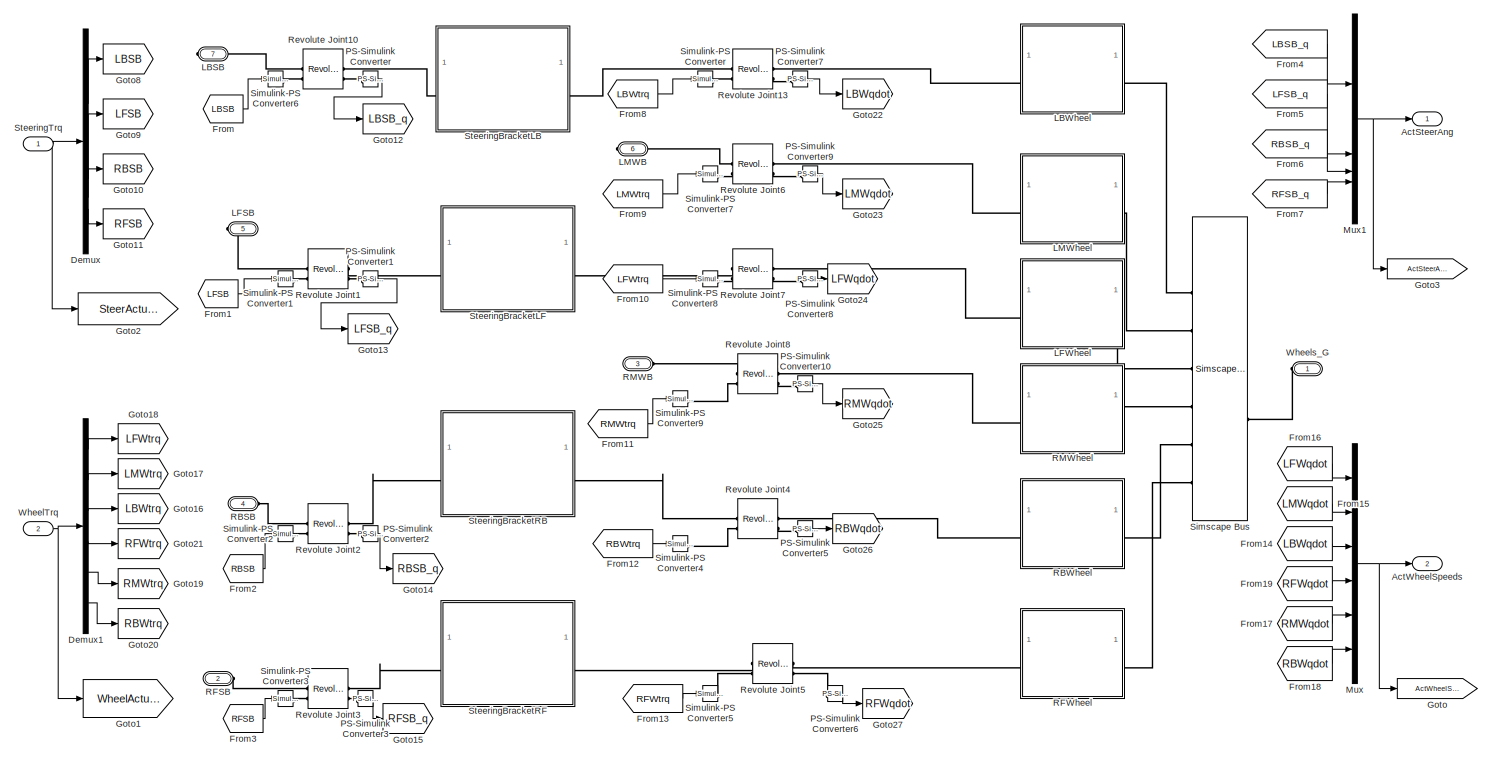
[diagram: Rover Plant Model And Control/Rover /Wheels - part 1/1, most of the canvas]
BLOCK [SubSystem] Rover Plant Model And Control/Rover /Wheels
  PortSchema = {"entries":[{"content":{"sides":[{"content":{"connectorIds":["LConn1","Out1","Out2","LConn2","LConn3","LConn4"]},"type":"ConnectorPlacement.EquallySpacedRectSide","uuid":"cdf43ca8-8411-4f39-b474-303a5f1c499c"},{"content":{"connectorIds":["In1","In2","RConn1","RConn2","RConn3"],"side":"RIGHT"},"type":"ConnectorPlacement.EquallySpacedRectSide","uuid":"d4854d09-b42d-4485-ae4e-6bf21ff8a87a"},{"content...<+316ch>
BLOCK [Outport] Rover Plant Model And Control/Rover /Wheels/ActSteerAng
BLOCK [Outport] Rover Plant Model And Control/Rover /Wheels/ActWheelSpeeds
  Port = 2
BLOCK [Demux] Rover Plant Model And Control/Rover /Wheels/Demux
BLOCK [Demux] Rover Plant Model And Control/Rover /Wheels/Demux1
  Outputs = 6
BLOCK [From] Rover Plant Model And Control/Rover /Wheels/From
  GotoTag = LBSB
BLOCK [From] Rover Plant Model And Control/Rover /Wheels/From1
  GotoTag = LFSB
BLOCK [From] Rover Plant Model And Control/Rover /Wheels/From10
  GotoTag = LFWtrq
BLOCK [From] Rover Plant Model And Control/Rover /Wheels/From11
  GotoTag = RMWtrq
BLOCK [From] Rover Plant Model And Control/Rover /Wheels/From12
  GotoTag = RBWtrq
BLOCK [From] Rover Plant Model And Control/Rover /Wheels/From13
  GotoTag = RFWtrq
BLOCK [From] Rover Plant Model And Control/Rover /Wheels/From14
  GotoTag = LBWqdot
BLOCK [From] Rover Plant Model And Control/Rover /Wheels/From15
  GotoTag = LMWqdot
BLOCK [From] Rover Plant Model And Control/Rover /Wheels/From16
  GotoTag = LFWqdot
BLOCK [From] Rover Plant Model And Control/Rover /Wheels/From17
  GotoTag = RMWqdot
BLOCK [From] Rover Plant Model And Control/Rover /Wheels/From18
  GotoTag = RBWqdot
BLOCK [From] Rover Plant Model And Control/Rover /Wheels/From19
  GotoTag = RFWqdot
BLOCK [From] Rover Plant Model And Control/Rover /Wheels/From2
  GotoTag = RBSB
BLOCK [From] Rover Plant Model And Control/Rover /Wheels/From3
  GotoTag = RFSB
BLOCK [From] Rover Plant Model And Control/Rover /Wheels/From4
  GotoTag = LBSB_q
BLOCK [From] Rover Plant Model And Control/Rover /Wheels/From5
  GotoTag = LFSB_q
BLOCK [From] Rover Plant Model And Control/Rover /Wheels/From6
  GotoTag = RBSB_q
BLOCK [From] Rover Plant Model And Control/Rover /Wheels/From7
  GotoTag = RFSB_q
BLOCK [From] Rover Plant Model And Control/Rover /Wheels/From8
  GotoTag = LBWtrq
BLOCK [From] Rover Plant Model And Control/Rover /Wheels/From9
  GotoTag = LMWtrq
BLOCK [Goto] Rover Plant Model And Control/Rover /Wheels/Goto
  GotoTag = ActWheelSpeeds
  TagVisibility = global
BLOCK [Goto] Rover Plant Model And Control/Rover /Wheels/Goto1
  GotoTag = WheelActuatorTrqs
  TagVisibility = global
BLOCK [Goto] Rover Plant Model And Control/Rover /Wheels/Goto10
  GotoTag = RBSB
BLOCK [Goto] Rover Plant Model And Control/Rover /Wheels/Goto11
  GotoTag = RFSB
BLOCK [Goto] Rover Plant Model And Control/Rover /Wheels/Goto12
  GotoTag = LBSB_q
BLOCK [Goto] Rover Plant Model And Control/Rover /Wheels/Goto13
  GotoTag = LFSB_q
BLOCK [Goto] Rover Plant Model And Control/Rover /Wheels/Goto14
  GotoTag = RBSB_q
BLOCK [Goto] Rover Plant Model And Control/Rover /Wheels/Goto15
  GotoTag = RFSB_q
BLOCK [Goto] Rover Plant Model And Control/Rover /Wheels/Goto16
  GotoTag = LBWtrq
BLOCK [Goto] Rover Plant Model And Control/Rover /Wheels/Goto17
  GotoTag = LMWtrq
BLOCK [Goto] Rover Plant Model And Control/Rover /Wheels/Goto18
  GotoTag = LFWtrq
BLOCK [Goto] Rover Plant Model And Control/Rover /Wheels/Goto19
  GotoTag = RMWtrq
BLOCK [Goto] Rover Plant Model And Control/Rover /Wheels/Goto2
  GotoTag = SteerActuatorTrqs
  TagVisibility = global
BLOCK [Goto] Rover Plant Model And Control/Rover /Wheels/Goto20
  GotoTag = RBWtrq
BLOCK [Goto] Rover Plant Model And Control/Rover /Wheels/Goto21
  GotoTag = RFWtrq
BLOCK [Goto] Rover Plant Model And Control/Rover /Wheels/Goto22
  GotoTag = LBWqdot
BLOCK [Goto] Rover Plant Model And Control/Rover /Wheels/Goto23
  GotoTag = LMWqdot
BLOCK [Goto] Rover Plant Model And Control/Rover /Wheels/Goto24
  GotoTag = LFWqdot
BLOCK [Goto] Rover Plant Model And Control/Rover /Wheels/Goto25
  GotoTag = RMWqdot
BLOCK [Goto] Rover Plant Model And Control/Rover /Wheels/Goto26
  GotoTag = RBWqdot
BLOCK [Goto] Rover Plant Model And Control/Rover /Wheels/Goto27
  GotoTag = RFWqdot
BLOCK [Goto] Rover Plant Model And Control/Rover /Wheels/Goto3
  GotoTag = ActSteerAng
  TagVisibility = global
BLOCK [Goto] Rover Plant Model And Control/Rover /Wheels/Goto8
  GotoTag = LBSB
BLOCK [Goto] Rover Plant Model And Control/Rover /Wheels/Goto9
  GotoTag = LFSB
BLOCK [PMIOPort] Rover Plant Model And Control/Rover /Wheels/LBSB
  Port = 7
  Side = Right
BLOCK [SubSystem] Rover Plant Model And Control/Rover /Wheels/LBWheel
BLOCK [PMIOPort] Rover Plant Model And Control/Rover /Wheels/LBWheel/G
  Port = 2
  Side = Left
BLOCK [Reference] Rover Plant Model And Control/Rover /Wheels/LBWheel/InnerWheelViz  REF=sm_lib/Body Elements/File Solid
  SourceBlock = sm_lib/Body Elements/File Solid
  SourceType = File Solid
BLOCK [Reference] Rover Plant Model And Control/Rover /Wheels/LBWheel/OuterWheel  REF=sm_lib/Body Elements/File Solid
  SourceBlock = sm_lib/Body Elements/File Solid
  SourceType = File Solid
BLOCK [Reference] Rover Plant Model And Control/Rover /Wheels/LBWheel/Point Cloud  REF=sm_lib/Curves and Surfaces/Point Cloud
  SourceBlock = sm_lib/Curves and Surfaces/Point Cloud
  SourceType = Point Cloud
BLOCK [Reference] Rover Plant Model And Control/Rover /Wheels/LBWheel/Rigid Transform  REF=sm_lib/Frames and
Transforms/Rigid
Transform
  NameLocation = top
  SourceBlock = sm_lib/Frames and\nTransforms/Rigid\nTransform
  SourceType = Rigid\nTransform
BLOCK [Reference] Rover Plant Model And Control/Rover /Wheels/LBWheel/Rigid Transform6  REF=sm_lib/Frames and
Transforms/Rigid
Transform
  SourceBlock = sm_lib/Frames and\nTransforms/Rigid\nTransform
  SourceType = Rigid\nTransform
BLOCK [PMIOPort] Rover Plant Model And Control/Rover /Wheels/LBWheel/WRJ
  Side = Right
BLOCK [PMIOPort] Rover Plant Model And Control/Rover /Wheels/LFSB
  Port = 5
  Side = Right
BLOCK [SubSystem] Rover Plant Model And Control/Rover /Wheels/LFWheel
BLOCK [PMIOPort] Rover Plant Model And Control/Rover /Wheels/LFWheel/G
  Port = 2
  Side = Left
BLOCK [Reference] Rover Plant Model And Control/Rover /Wheels/LFWheel/InnerWheel  REF=sm_lib/Body Elements/File Solid
  SourceBlock = sm_lib/Body Elements/File Solid
  SourceType = File Solid
BLOCK [Reference] Rover Plant Model And Control/Rover /Wheels/LFWheel/OuterWheel  REF=sm_lib/Body Elements/File Solid
  SourceBlock = sm_lib/Body Elements/File Solid
  SourceType = File Solid
BLOCK [Reference] Rover Plant Model And Control/Rover /Wheels/LFWheel/Point Cloud  REF=sm_lib/Curves and Surfaces/Point Cloud
  SourceBlock = sm_lib/Curves and Surfaces/Point Cloud
  SourceType = Point Cloud
BLOCK [Reference] Rover Plant Model And Control/Rover /Wheels/LFWheel/Rigid Transform  REF=sm_lib/Frames and
Transforms/Rigid
Transform
  NameLocation = top
  SourceBlock = sm_lib/Frames and\nTransforms/Rigid\nTransform
  SourceType = Rigid\nTransform
BLOCK [Reference] Rover Plant Model And Control/Rover /Wheels/LFWheel/Rigid Transform6  REF=sm_lib/Frames and
Transforms/Rigid
Transform
  SourceBlock = sm_lib/Frames and\nTransforms/Rigid\nTransform
  SourceType = Rigid\nTransform
BLOCK [PMIOPort] Rover Plant Model And Control/Rover /Wheels/LFWheel/WRJ
  Side = Right
BLOCK [PMIOPort] Rover Plant Model And Control/Rover /Wheels/LMWB
  Port = 6
  Side = Right
BLOCK [SubSystem] Rover Plant Model And Control/Rover /Wheels/LMWheel
BLOCK [PMIOPort] Rover Plant Model And Control/Rover /Wheels/LMWheel/G
  Port = 2
  Side = Left
BLOCK [Reference] Rover Plant Model And Control/Rover /Wheels/LMWheel/InnerWheel  REF=sm_lib/Body Elements/File Solid
  SourceBlock = sm_lib/Body Elements/File Solid
  SourceType = File Solid
BLOCK [Reference] Rover Plant Model And Control/Rover /Wheels/LMWheel/OuterWheel  REF=sm_lib/Body Elements/File Solid
  SourceBlock = sm_lib/Body Elements/File Solid
  SourceType = File Solid
BLOCK [Reference] Rover Plant Model And Control/Rover /Wheels/LMWheel/Point Cloud  REF=sm_lib/Curves and Surfaces/Point Cloud
  SourceBlock = sm_lib/Curves and Surfaces/Point Cloud
  SourceType = Point Cloud
BLOCK [Reference] Rover Plant Model And Control/Rover /Wheels/LMWheel/Rigid Transform  REF=sm_lib/Frames and
Transforms/Rigid
Transform
  NameLocation = top
  SourceBlock = sm_lib/Frames and\nTransforms/Rigid\nTransform
  SourceType = Rigid\nTransform
BLOCK [Reference] Rover Plant Model And Control/Rover /Wheels/LMWheel/Rigid Transform6  REF=sm_lib/Frames and
Transforms/Rigid
Transform
  SourceBlock = sm_lib/Frames and\nTransforms/Rigid\nTransform
  SourceType = Rigid\nTransform
BLOCK [PMIOPort] Rover Plant Model And Control/Rover /Wheels/LMWheel/WRJ
  Side = Right
BLOCK [Mux] Rover Plant Model And Control/Rover /Wheels/Mux
  DisplayOption = bar
  Inputs = 6
BLOCK [Mux] Rover Plant Model And Control/Rover /Wheels/Mux1
  DisplayOption = bar
BLOCK [Reference] Rover Plant Model And Control/Rover /Wheels/PS-Simulink Converter  REF=nesl_utility/PS-Simulink
Converter
  SourceBlock = nesl_utility/PS-Simulink\nConverter
  SourceType = PS-Simulink\nConverter
BLOCK [Reference] Rover Plant Model And Control/Rover /Wheels/PS-Simulink Converter1  REF=nesl_utility/PS-Simulink
Converter
  SourceBlock = nesl_utility/PS-Simulink\nConverter
  SourceType = PS-Simulink\nConverter
BLOCK [Reference] Rover Plant Model And Control/Rover /Wheels/PS-Simulink Converter10  REF=nesl_utility/PS-Simulink
Converter
  SourceBlock = nesl_utility/PS-Simulink\nConverter
  SourceType = PS-Simulink\nConverter
BLOCK [Reference] Rover Plant Model And Control/Rover /Wheels/PS-Simulink Converter2  REF=nesl_utility/PS-Simulink
Converter
  SourceBlock = nesl_utility/PS-Simulink\nConverter
  SourceType = PS-Simulink\nConverter
BLOCK [Reference] Rover Plant Model And Control/Rover /Wheels/PS-Simulink Converter3  REF=nesl_utility/PS-Simulink
Converter
  SourceBlock = nesl_utility/PS-Simulink\nConverter
  SourceType = PS-Simulink\nConverter
BLOCK [Reference] Rover Plant Model And Control/Rover /Wheels/PS-Simulink Converter5  REF=nesl_utility/PS-Simulink
Converter
  SourceBlock = nesl_utility/PS-Simulink\nConverter
  SourceType = PS-Simulink\nConverter
BLOCK [Reference] Rover Plant Model And Control/Rover /Wheels/PS-Simulink Converter6  REF=nesl_utility/PS-Simulink
Converter
  SourceBlock = nesl_utility/PS-Simulink\nConverter
  SourceType = PS-Simulink\nConverter
BLOCK [Reference] Rover Plant Model And Control/Rover /Wheels/PS-Simulink Converter7  REF=nesl_utility/PS-Simulink
Converter
  SourceBlock = nesl_utility/PS-Simulink\nConverter
  SourceType = PS-Simulink\nConverter
BLOCK [Reference] Rover Plant Model And Control/Rover /Wheels/PS-Simulink Converter8  REF=nesl_utility/PS-Simulink
Converter
  SourceBlock = nesl_utility/PS-Simulink\nConverter
  SourceType = PS-Simulink\nConverter
BLOCK [Reference] Rover Plant Model And Control/Rover /Wheels/PS-Simulink Converter9  REF=nesl_utility/PS-Simulink
Converter
  SourceBlock = nesl_utility/PS-Simulink\nConverter
  SourceType = PS-Simulink\nConverter
BLOCK [PMIOPort] Rover Plant Model And Control/Rover /Wheels/RBSB
  Port = 4
  Side = Left
BLOCK [SubSystem] Rover Plant Model And Control/Rover /Wheels/RBWheel
BLOCK [PMIOPort] Rover Plant Model And Control/Rover /Wheels/RBWheel/G
  Port = 2
  Side = Left
BLOCK [Reference] Rover Plant Model And Control/Rover /Wheels/RBWheel/InnerWheel  REF=sm_lib/Body Elements/File Solid
  SourceBlock = sm_lib/Body Elements/File Solid
  SourceType = File Solid
BLOCK [Reference] Rover Plant Model And Control/Rover /Wheels/RBWheel/OuterWheel  REF=sm_lib/Body Elements/File Solid
  SourceBlock = sm_lib/Body Elements/File Solid
  SourceType = File Solid
BLOCK [Reference] Rover Plant Model And Control/Rover /Wheels/RBWheel/Point Cloud  REF=sm_lib/Curves and Surfaces/Point Cloud
  SourceBlock = sm_lib/Curves and Surfaces/Point Cloud
  SourceType = Point Cloud
BLOCK [Reference] Rover Plant Model And Control/Rover /Wheels/RBWheel/Rigid Transform  REF=sm_lib/Frames and
Transforms/Rigid
Transform
  NameLocation = top
  SourceBlock = sm_lib/Frames and\nTransforms/Rigid\nTransform
  SourceType = Rigid\nTransform
BLOCK [Reference] Rover Plant Model And Control/Rover /Wheels/RBWheel/Rigid Transform6  REF=sm_lib/Frames and
Transforms/Rigid
Transform
  SourceBlock = sm_lib/Frames and\nTransforms/Rigid\nTransform
  SourceType = Rigid\nTransform
BLOCK [PMIOPort] Rover Plant Model And Control/Rover /Wheels/RBWheel/WRJ
  Side = Right
BLOCK [PMIOPort] Rover Plant Model And Control/Rover /Wheels/RFSB
  Port = 2
  Side = Left
BLOCK [SubSystem] Rover Plant Model And Control/Rover /Wheels/RFWheel
BLOCK [PMIOPort] Rover Plant Model And Control/Rover /Wheels/RFWheel/G
  Port = 2
  Side = Left
BLOCK [Reference] Rover Plant Model And Control/Rover /Wheels/RFWheel/InnerWheel  REF=sm_lib/Body Elements/File Solid
  SourceBlock = sm_lib/Body Elements/File Solid
  SourceType = File Solid
BLOCK [Reference] Rover Plant Model And Control/Rover /Wheels/RFWheel/OuterWheel  REF=sm_lib/Body Elements/File Solid
  SourceBlock = sm_lib/Body Elements/File Solid
  SourceType = File Solid
BLOCK [Reference] Rover Plant Model And Control/Rover /Wheels/RFWheel/Point Cloud  REF=sm_lib/Curves and Surfaces/Point Cloud
  SourceBlock = sm_lib/Curves and Surfaces/Point Cloud
  SourceType = Point Cloud
BLOCK [Reference] Rover Plant Model And Control/Rover /Wheels/RFWheel/Rigid Transform  REF=sm_lib/Frames and
Transforms/Rigid
Transform
  NameLocation = top
  SourceBlock = sm_lib/Frames and\nTransforms/Rigid\nTransform
  SourceType = Rigid\nTransform
BLOCK [Reference] Rover Plant Model And Control/Rover /Wheels/RFWheel/Rigid Transform6  REF=sm_lib/Frames and
Transforms/Rigid
Transform
  SourceBlock = sm_lib/Frames and\nTransforms/Rigid\nTransform
  SourceType = Rigid\nTransform
BLOCK [PMIOPort] Rover Plant Model And Control/Rover /Wheels/RFWheel/WRJ
  Side = Right
BLOCK [PMIOPort] Rover Plant Model And Control/Rover /Wheels/RMWB
  Port = 3
  Side = Left
BLOCK [SubSystem] Rover Plant Model And Control/Rover /Wheels/RMWheel
BLOCK [PMIOPort] Rover Plant Model And Control/Rover /Wheels/RMWheel/G
  Port = 2
  Side = Left
BLOCK [Reference] Rover Plant Model And Control/Rover /Wheels/RMWheel/InnerWheel  REF=sm_lib/Body Elements/File Solid
  SourceBlock = sm_lib/Body Elements/File Solid
  SourceType = File Solid
BLOCK [Reference] Rover Plant Model And Control/Rover /Wheels/RMWheel/OuterWheel  REF=sm_lib/Body Elements/File Solid
  SourceBlock = sm_lib/Body Elements/File Solid
  SourceType = File Solid
BLOCK [Reference] Rover Plant Model And Control/Rover /Wheels/RMWheel/Point Cloud  REF=sm_lib/Curves and Surfaces/Point Cloud
  SourceBlock = sm_lib/Curves and Surfaces/Point Cloud
  SourceType = Point Cloud
BLOCK [Reference] Rover Plant Model And Control/Rover /Wheels/RMWheel/Rigid Transform  REF=sm_lib/Frames and
Transforms/Rigid
Transform
  NameLocation = top
  SourceBlock = sm_lib/Frames and\nTransforms/Rigid\nTransform
  SourceType = Rigid\nTransform
BLOCK [Reference] Rover Plant Model And Control/Rover /Wheels/RMWheel/Rigid Transform6  REF=sm_lib/Frames and
Transforms/Rigid
Transform
  SourceBlock = sm_lib/Frames and\nTransforms/Rigid\nTransform
  SourceType = Rigid\nTransform
BLOCK [PMIOPort] Rover Plant Model And Control/Rover /Wheels/RMWheel/WRJ
  Side = Right
BLOCK [Reference] Rover Plant Model And Control/Rover /Wheels/Revolute Joint1  REF=sm_lib/Joints/Revolute Joint
  SourceBlock = sm_lib/Joints/Revolute Joint
  SourceType = Revolute Joint
BLOCK [Reference] Rover Plant Model And Control/Rover /Wheels/Revolute Joint10  REF=sm_lib/Joints/Revolute Joint
  SourceBlock = sm_lib/Joints/Revolute Joint
  SourceType = Revolute Joint
BLOCK [Reference] Rover Plant Model And Control/Rover /Wheels/Revolute Joint13  REF=sm_lib/Joints/Revolute Joint
  SourceBlock = sm_lib/Joints/Revolute Joint
  SourceType = Revolute Joint
BLOCK [Reference] Rover Plant Model And Control/Rover /Wheels/Revolute Joint2  REF=sm_lib/Joints/Revolute Joint
  SourceBlock = sm_lib/Joints/Revolute Joint
  SourceType = Revolute Joint
BLOCK [Reference] Rover Plant Model And Control/Rover /Wheels/Revolute Joint3  REF=sm_lib/Joints/Revolute Joint
  SourceBlock = sm_lib/Joints/Revolute Joint
  SourceType = Revolute Joint
BLOCK [Reference] Rover Plant Model And Control/Rover /Wheels/Revolute Joint4  REF=sm_lib/Joints/Revolute Joint
  SourceBlock = sm_lib/Joints/Revolute Joint
  SourceType = Revolute Joint
BLOCK [Reference] Rover Plant Model And Control/Rover /Wheels/Revolute Joint5  REF=sm_lib/Joints/Revolute Joint
  SourceBlock = sm_lib/Joints/Revolute Joint
  SourceType = Revolute Joint
BLOCK [Reference] Rover Plant Model And Control/Rover /Wheels/Revolute Joint6  REF=sm_lib/Joints/Revolute Joint
  SourceBlock = sm_lib/Joints/Revolute Joint
  SourceType = Revolute Joint
BLOCK [Reference] Rover Plant Model And Control/Rover /Wheels/Revolute Joint7  REF=sm_lib/Joints/Revolute Joint
  SourceBlock = sm_lib/Joints/Revolute Joint
  SourceType = Revolute Joint
BLOCK [Reference] Rover Plant Model And Control/Rover /Wheels/Revolute Joint8  REF=sm_lib/Joints/Revolute Joint
  SourceBlock = sm_lib/Joints/Revolute Joint
  SourceType = Revolute Joint
BLOCK [SimscapeBus] Rover Plant Model And Control/Rover /Wheels/Simscape Bus
  HierarchyStrings = Wheel1_G;Wheel2_G;Wheel3_G;Wheel4_G;Wheel5_G;Wheel6_G
BLOCK [Reference] Rover Plant Model And Control/Rover /Wheels/Simulink-PS Converter  REF=nesl_utility/Simulink-PS
Converter
  SourceBlock = nesl_utility/Simulink-PS\nConverter
  SourceType = Simulink-PS\nConverter
BLOCK [Reference] Rover Plant Model And Control/Rover /Wheels/Simulink-PS Converter1  REF=nesl_utility/Simulink-PS
Converter
  SourceBlock = nesl_utility/Simulink-PS\nConverter
  SourceType = Simulink-PS\nConverter
BLOCK [Reference] Rover Plant Model And Control/Rover /Wheels/Simulink-PS Converter2  REF=nesl_utility/Simulink-PS
Converter
  SourceBlock = nesl_utility/Simulink-PS\nConverter
  SourceType = Simulink-PS\nConverter
BLOCK [Reference] Rover Plant Model And Control/Rover /Wheels/Simulink-PS Converter3  REF=nesl_utility/Simulink-PS
Converter
  SourceBlock = nesl_utility/Simulink-PS\nConverter
  SourceType = Simulink-PS\nConverter
BLOCK [Reference] Rover Plant Model And Control/Rover /Wheels/Simulink-PS Converter4  REF=nesl_utility/Simulink-PS
Converter
  SourceBlock = nesl_utility/Simulink-PS\nConverter
  SourceType = Simulink-PS\nConverter
BLOCK [Reference] Rover Plant Model And Control/Rover /Wheels/Simulink-PS Converter5  REF=nesl_utility/Simulink-PS
Converter
  SourceBlock = nesl_utility/Simulink-PS\nConverter
  SourceType = Simulink-PS\nConverter
BLOCK [Reference] Rover Plant Model And Control/Rover /Wheels/Simulink-PS Converter6  REF=nesl_utility/Simulink-PS
Converter
  SourceBlock = nesl_utility/Simulink-PS\nConverter
  SourceType = Simulink-PS\nConverter
BLOCK [Reference] Rover Plant Model And Control/Rover /Wheels/Simulink-PS Converter7  REF=nesl_utility/Simulink-PS
Converter
  SourceBlock = nesl_utility/Simulink-PS\nConverter
  SourceType = Simulink-PS\nConverter
BLOCK [Reference] Rover Plant Model And Control/Rover /Wheels/Simulink-PS Converter8  REF=nesl_utility/Simulink-PS
Converter
  SourceBlock = nesl_utility/Simulink-PS\nConverter
  SourceType = Simulink-PS\nConverter
BLOCK [Reference] Rover Plant Model And Control/Rover /Wheels/Simulink-PS Converter9  REF=nesl_utility/Simulink-PS
Converter
  SourceBlock = nesl_utility/Simulink-PS\nConverter
  SourceType = Simulink-PS\nConverter
BLOCK [SubSystem] Rover Plant Model And Control/Rover /Wheels/SteeringBracketLB 
BLOCK [Reference] Rover Plant Model And Control/Rover /Wheels/SteeringBracketLB /File Solid5  REF=sm_lib/Body Elements/File Solid
  NameLocation = top
  SourceBlock = sm_lib/Body Elements/File Solid
  SourceType = File Solid
BLOCK [Reference] Rover Plant Model And Control/Rover /Wheels/SteeringBracketLB /Reference Frame  REF=sm_lib/Frames and
Transforms/Reference
Frame
  SourceBlock = sm_lib/Frames and\nTransforms/Reference\nFrame
  SourceType = Reference\nFrame
BLOCK [Reference] Rover Plant Model And Control/Rover /Wheels/SteeringBracketLB /Rigid Transform  REF=sm_lib/Frames and
Transforms/Rigid
Transform
  SourceBlock = sm_lib/Frames and\nTransforms/Rigid\nTransform
  SourceType = Rigid\nTransform
BLOCK [Reference] Rover Plant Model And Control/Rover /Wheels/SteeringBracketLB /Rigid Transform1  REF=sm_lib/Frames and
Transforms/Rigid
Transform
  NameLocation = top
  SourceBlock = sm_lib/Frames and\nTransforms/Rigid\nTransform
  SourceType = Rigid\nTransform
BLOCK [PMIOPort] Rover Plant Model And Control/Rover /Wheels/SteeringBracketLB /SRJ
  Side = Left
BLOCK [PMIOPort] Rover Plant Model And Control/Rover /Wheels/SteeringBracketLB /WRJ
  Port = 2
  Side = Right
BLOCK [SubSystem] Rover Plant Model And Control/Rover /Wheels/SteeringBracketLF
BLOCK [Reference] Rover Plant Model And Control/Rover /Wheels/SteeringBracketLF/File Solid5  REF=sm_lib/Body Elements/File Solid
  NameLocation = top
  SourceBlock = sm_lib/Body Elements/File Solid
  SourceType = File Solid
BLOCK [Reference] Rover Plant Model And Control/Rover /Wheels/SteeringBracketLF/Reference Frame  REF=sm_lib/Frames and
Transforms/Reference
Frame
  SourceBlock = sm_lib/Frames and\nTransforms/Reference\nFrame
  SourceType = Reference\nFrame
BLOCK [Reference] Rover Plant Model And Control/Rover /Wheels/SteeringBracketLF/Rigid Transform  REF=sm_lib/Frames and
Transforms/Rigid
Transform
  SourceBlock = sm_lib/Frames and\nTransforms/Rigid\nTransform
  SourceType = Rigid\nTransform
BLOCK [Reference] Rover Plant Model And Control/Rover /Wheels/SteeringBracketLF/Rigid Transform1  REF=sm_lib/Frames and
Transforms/Rigid
Transform
  NameLocation = top
  SourceBlock = sm_lib/Frames and\nTransforms/Rigid\nTransform
  SourceType = Rigid\nTransform
BLOCK [PMIOPort] Rover Plant Model And Control/Rover /Wheels/SteeringBracketLF/SRJ
  Side = Left
BLOCK [PMIOPort] Rover Plant Model And Control/Rover /Wheels/SteeringBracketLF/WRJ
  Port = 2
  Side = Right
BLOCK [SubSystem] Rover Plant Model And Control/Rover /Wheels/SteeringBracketRB
BLOCK [Reference] Rover Plant Model And Control/Rover /Wheels/SteeringBracketRB/File Solid5  REF=sm_lib/Body Elements/File Solid
  NameLocation = top
  SourceBlock = sm_lib/Body Elements/File Solid
  SourceType = File Solid
BLOCK [Reference] Rover Plant Model And Control/Rover /Wheels/SteeringBracketRB/Reference Frame  REF=sm_lib/Frames and
Transforms/Reference
Frame
  SourceBlock = sm_lib/Frames and\nTransforms/Reference\nFrame
  SourceType = Reference\nFrame
BLOCK [Reference] Rover Plant Model And Control/Rover /Wheels/SteeringBracketRB/Rigid Transform  REF=sm_lib/Frames and
Transforms/Rigid
Transform
  SourceBlock = sm_lib/Frames and\nTransforms/Rigid\nTransform
  SourceType = Rigid\nTransform
BLOCK [Reference] Rover Plant Model And Control/Rover /Wheels/SteeringBracketRB/Rigid Transform1  REF=sm_lib/Frames and
Transforms/Rigid
Transform
  NameLocation = top
  SourceBlock = sm_lib/Frames and\nTransforms/Rigid\nTransform
  SourceType = Rigid\nTransform
BLOCK [PMIOPort] Rover Plant Model And Control/Rover /Wheels/SteeringBracketRB/SRJ
  Side = Left
BLOCK [PMIOPort] Rover Plant Model And Control/Rover /Wheels/SteeringBracketRB/WRJ
  Port = 2
  Side = Right
BLOCK [SubSystem] Rover Plant Model And Control/Rover /Wheels/SteeringBracketRF
BLOCK [Reference] Rover Plant Model And Control/Rover /Wheels/SteeringBracketRF/File Solid5  REF=sm_lib/Body Elements/File Solid
  NameLocation = top
  SourceBlock = sm_lib/Body Elements/File Solid
  SourceType = File Solid
BLOCK [Reference] Rover Plant Model And Control/Rover /Wheels/SteeringBracketRF/Reference Frame  REF=sm_lib/Frames and
Transforms/Reference
Frame
  SourceBlock = sm_lib/Frames and\nTransforms/Reference\nFrame
  SourceType = Reference\nFrame
BLOCK [Reference] Rover Plant Model And Control/Rover /Wheels/SteeringBracketRF/Rigid Transform  REF=sm_lib/Frames and
Transforms/Rigid
Transform
  SourceBlock = sm_lib/Frames and\nTransforms/Rigid\nTransform
  SourceType = Rigid\nTransform
BLOCK [Reference] Rover Plant Model And Control/Rover /Wheels/SteeringBracketRF/Rigid Transform1  REF=sm_lib/Frames and
Transforms/Rigid
Transform
  NameLocation = top
  SourceBlock = sm_lib/Frames and\nTransforms/Rigid\nTransform
  SourceType = Rigid\nTransform
BLOCK [PMIOPort] Rover Plant Model And Control/Rover /Wheels/SteeringBracketRF/SRJ
  Side = Left
BLOCK [PMIOPort] Rover Plant Model And Control/Rover /Wheels/SteeringBracketRF/WRJ
  Port = 2
  Side = Right
BLOCK [Inport] Rover Plant Model And Control/Rover /Wheels/SteeringTrq
BLOCK [Inport] Rover Plant Model And Control/Rover /Wheels/WheelTrq
  Port = 2
BLOCK [PMIOPort] Rover Plant Model And Control/Rover /Wheels/Wheels_G
  Side = Left
BLOCK [PMIOPort] Rover Plant Model And Control/Rover /WheelsG
  Port = 4
  Side = Right
BLOCK [SubSystem] Rover Plant Model And Control/Rover Path Planning And Control
BLOCK [Logic] Rover Plant Model And Control/Rover Path Planning And Control/AND
  AllPortsSameDT = off
  IconShape = distinctive
  OutDataTypeStr = boolean
BLOCK [SubSystem] Rover Plant Model And Control/Rover Path Planning And Control/Ackerman Steer Angle
BLOCK [Outport] Rover Plant Model And Control/Rover Path Planning And Control/Ackerman Steer Angle/AckSteerAngs
BLOCK [SubSystem] Rover Plant Model And Control/Rover Path Planning And Control/Ackerman Steer Angle/Ackerman Steering Angle Formulation
  ErrorFcn = Stateflow.Translate.translate
  PermitHierarchicalResolution = ExplicitOnly
  SFBlockType = MATLAB Function
  TreatAsAtomicUnit = on
BLOCK [Demux] Rover Plant Model And Control/Rover Path Planning And Control/Ackerman Steer Angle/Ackerman Steering Angle Formulation/ Demux 
  Outputs = 1
BLOCK [S-Function] Rover Plant Model And Control/Rover Path Planning And Control/Ackerman Steer Angle/Ackerman Steering Angle Formulation/ SFunction 
  EnableBusSupport = off
  FunctionName = sf_sfun
  PortCounts = [3 6]
  SFcnIsStateOwnerBlock = off
  SFunctionDeploymentMode = off
  Tag = Stateflow S-Function 12
BLOCK [Terminator] Rover Plant Model And Control/Rover Path Planning And Control/Ackerman Steer Angle/Ackerman Steering Angle Formulation/ Terminator 
BLOCK [Inport] Rover Plant Model And Control/Rover Path Planning And Control/Ackerman Steer Angle/Ackerman Steering Angle Formulation/L
  Port = 2
BLOCK [Outport] Rover Plant Model And Control/Rover Path Planning And Control/Ackerman Steer Angle/Ackerman Steering Angle Formulation/LFsteerAng
BLOCK [Outport] Rover Plant Model And Control/Rover Path Planning And Control/Ackerman Steer Angle/Ackerman Steering Angle Formulation/L_R
  Port = 4
BLOCK [Outport] Rover Plant Model And Control/Rover Path Planning And Control/Ackerman Steer Angle/Ackerman Steering Angle Formulation/R
  Port = 3
BLOCK [Outport] Rover Plant Model And Control/Rover Path Planning And Control/Ackerman Steer Angle/Ackerman Steering Angle Formulation/RFsteerAng
  Port = 2
BLOCK [Outport] Rover Plant Model And Control/Rover Path Planning And Control/Ackerman Steer Angle/Ackerman Steering Angle Formulation/R_R
  Port = 5
BLOCK [Inport] Rover Plant Model And Control/Rover Path Planning And Control/Ackerman Steer Angle/Ackerman Steering Angle Formulation/d
  Port = 3
BLOCK [Inport] Rover Plant Model And Control/Rover Path Planning And Control/Ackerman Steer Angle/Ackerman Steering Angle Formulation/delta
BLOCK [Outport] Rover Plant Model And Control/Rover Path Planning And Control/Ackerman Steer Angle/ChassisCenterROC
  Port = 2
BLOCK [Clock] Rover Plant Model And Control/Rover Path Planning And Control/Ackerman Steer Angle/Clock1
BLOCK [Constant] Rover Plant Model And Control/Rover Path Planning And Control/Ackerman Steer Angle/Constant
  Value = Chassis_L/2
BLOCK [Constant] Rover Plant Model And Control/Rover Path Planning And Control/Ackerman Steer Angle/Constant3
  NameLocation = top
  Value = 6
BLOCK [Constant] Rover Plant Model And Control/Rover Path Planning And Control/Ackerman Steer Angle/Constant4
  Value = Chassis_width
BLOCK [Inport] Rover Plant Model And Control/Rover Path Planning And Control/Ackerman Steer Angle/Delta
  Port = 2
BLOCK [SubSystem] Rover Plant Model And Control/Rover Path Planning And Control/Ackerman Steer Angle/Enabled Subsystem
  TreatAsAtomicUnit = on
BLOCK [EnablePort] Rover Plant Model And Control/Rover Path Planning And Control/Ackerman Steer Angle/Enabled Subsystem/Enable
BLOCK [Inport] Rover Plant Model And Control/Rover Path Planning And Control/Ackerman Steer Angle/Enabled Subsystem/In1
BLOCK [Outport] Rover Plant Model And Control/Rover Path Planning And Control/Ackerman Steer Angle/Enabled Subsystem/delta
BLOCK [Gain] Rover Plant Model And Control/Rover Path Planning And Control/Ackerman Steer Angle/Gain3
  Gain = -1
BLOCK [Gain] Rover Plant Model And Control/Rover Path Planning And Control/Ackerman Steer Angle/Gain4
  Gain = -1
BLOCK [Outport] Rover Plant Model And Control/Rover Path Planning And Control/Ackerman Steer Angle/LWheelROC
  Port = 3
BLOCK [Mux] Rover Plant Model And Control/Rover Path Planning And Control/Ackerman Steer Angle/Mux
  DisplayOption = bar
BLOCK [Logic] Rover Plant Model And Control/Rover Path Planning And Control/Ackerman Steer Angle/NOT
  AllPortsSameDT = off
  IconShape = distinctive
  Operator = NOT
  OutDataTypeStr = boolean
BLOCK [Outport] Rover Plant Model And Control/Rover Path Planning And Control/Ackerman Steer Angle/RWheelROC
  Port = 4
BLOCK [Inport] Rover Plant Model And Control/Rover Path Planning And Control/Ackerman Steer Angle/RoverAtGoal
BLOCK [Saturate] Rover Plant Model And Control/Rover Path Planning And Control/Ackerman Steer Angle/Saturation1
  LowerLimit = -60
  UpperLimit = 60
BLOCK [Saturate] Rover Plant Model And Control/Rover Path Planning And Control/Ackerman Steer Angle/Saturation2
  LowerLimit = -60
  UpperLimit = 60
BLOCK [Saturate] Rover Plant Model And Control/Rover Path Planning And Control/Ackerman Steer Angle/Saturation3
  LowerLimit = -60
  UpperLimit = 60
BLOCK [Saturate] Rover Plant Model And Control/Rover Path Planning And Control/Ackerman Steer Angle/Saturation4
  LowerLimit = -60
  UpperLimit = 60
BLOCK [Switch] Rover Plant Model And Control/Rover Path Planning And Control/Ackerman Steer Angle/Switch2
  Criteria = u2 > Threshold
  InputSameDT = off
  SaturateOnIntegerOverflow = off
  Threshold = 1
BLOCK [SubSystem] Rover Plant Model And Control/Rover Path Planning And Control/Chassis Velocity To Wheel Speed
  ErrorFcn = Stateflow.Translate.translate
  PermitHierarchicalResolution = ExplicitOnly
  SFBlockType = MATLAB Function
  TreatAsAtomicUnit = on
BLOCK [Demux] Rover Plant Model And Control/Rover Path Planning And Control/Chassis Velocity To Wheel Speed/ Demux 
  Outputs = 1
BLOCK [S-Function] Rover Plant Model And Control/Rover Path Planning And Control/Chassis Velocity To Wheel Speed/ SFunction 
  EnableBusSupport = off
  FunctionName = sf_sfun
  PortCounts = [7 7]
  SFcnIsStateOwnerBlock = off
  SFunctionDeploymentMode = off
  Tag = Stateflow S-Function 14
BLOCK [Terminator] Rover Plant Model And Control/Rover Path Planning And Control/Chassis Velocity To Wheel Speed/ Terminator 
BLOCK [Inport] Rover Plant Model And Control/Rover Path Planning And Control/Chassis Velocity To Wheel Speed/L
  Port = 5
BLOCK [Inport] Rover Plant Model And Control/Rover Path Planning And Control/Chassis Velocity To Wheel Speed/L_R
  Port = 6
BLOCK [Inport] Rover Plant Model And Control/Rover Path Planning And Control/Chassis Velocity To Wheel Speed/R
  Port = 4
BLOCK [Inport] Rover Plant Model And Control/Rover Path Planning And Control/Chassis Velocity To Wheel Speed/R_R
  Port = 7
BLOCK [Inport] Rover Plant Model And Control/Rover Path Planning And Control/Chassis Velocity To Wheel Speed/desChassisSpeed
BLOCK [Inport] Rover Plant Model And Control/Rover Path Planning And Control/Chassis Velocity To Wheel Speed/steer_ang
  Port = 3
BLOCK [Inport] Rover Plant Model And Control/Rover Path Planning And Control/Chassis Velocity To Wheel Speed/wheel_r
  Port = 2
BLOCK [Outport] Rover Plant Model And Control/Rover Path Planning And Control/Chassis Velocity To Wheel Speed/wheel_speed_LB
  Port = 3
BLOCK [Outport] Rover Plant Model And Control/Rover Path Planning And Control/Chassis Velocity To Wheel Speed/wheel_speed_LF
BLOCK [Outport] Rover Plant Model And Control/Rover Path Planning And Control/Chassis Velocity To Wheel Speed/wheel_speed_LM
  Port = 2
BLOCK [Outport] Rover Plant Model And Control/Rover Path Planning And Control/Chassis Velocity To Wheel Speed/wheel_speed_RB
  Port = 6
BLOCK [Outport] Rover Plant Model And Control/Rover Path Planning And Control/Chassis Velocity To Wheel Speed/wheel_speed_RF
  Port = 4
BLOCK [Outport] Rover Plant Model And Control/Rover Path Planning And Control/Chassis Velocity To Wheel Speed/wheel_speed_RM
  Port = 5
BLOCK [SubSystem] Rover Plant Model And Control/Rover Path Planning And Control/Check Distance To Goal
BLOCK [Sum] Rover Plant Model And Control/Rover Path Planning And Control/Check Distance To Goal/Add
  IconShape = rectangular
BLOCK [Constant] Rover Plant Model And Control/Rover Path Planning And Control/Check Distance To Goal/Constant
  Value = 0.25
BLOCK [Constant] Rover Plant Model And Control/Rover Path Planning And Control/Check Distance To Goal/Constant1
  Value = 2*rover_accel
BLOCK [Product] Rover Plant Model And Control/Rover Path Planning And Control/Check Distance To Goal/Divide
  Inputs = */
BLOCK [DotProduct] Rover Plant Model And Control/Rover Path Planning And Control/Check Distance To Goal/Dot Product
  OutDataTypeStr = Inherit: Inherit via internal rule
BLOCK [Gain] Rover Plant Model And Control/Rover Path Planning And Control/Check Distance To Goal/Gain1
  NameLocation = right
BLOCK [RelationalOperator] Rover Plant Model And Control/Rover Path Planning And Control/Check Distance To Goal/Less Than
  InputSameDT = off
  Operator = >
  OutDataTypeStr = boolean
  RndMeth = Simplest
BLOCK [RelationalOperator] Rover Plant Model And Control/Rover Path Planning And Control/Check Distance To Goal/Less Than1
  InputSameDT = off
  Operator = >
  OutDataTypeStr = boolean
  RndMeth = Simplest
BLOCK [Logic] Rover Plant Model And Control/Rover Path Planning And Control/Check Distance To Goal/NOT
  AllPortsSameDT = off
  IconShape = distinctive
  Operator = NOT
  OutDataTypeStr = boolean
BLOCK [Scope] Rover Plant Model And Control/Rover Path Planning And Control/Check Distance To Goal/Scope
  Floating = off
  NumInputPorts = 1
  ScopeSpecificationString = Simulink.scopes.TimeScopeBlockCfg('CurrentConfiguration', extmgr.ConfigurationSet(extmgr.Configuration('Core','General UI',true),extmgr.Configuration('Core','Source UI',true),extmgr.Configuration('Sources','WiredSimulink',true,'DataLoggingVariableName','ScopeData11'),extmgr.Configuration('Visuals','Time Domain',true,'SerializedDisplays',{struct('MinYLimReal','0.24','MaxYLimReal','0.44','YLabelReal...<+1443ch>
BLOCK [Scope] Rover Plant Model And Control/Rover Path Planning And Control/Check Distance To Goal/Scope1
  Floating = off
  NumInputPorts = 1
  ScopeSpecificationString = Simulink.scopes.TimeScopeBlockCfg('CurrentConfiguration', extmgr.ConfigurationSet(extmgr.Configuration('Core','General UI',true),extmgr.Configuration('Core','Source UI',true),extmgr.Configuration('Sources','WiredSimulink',true,'DataLoggingVariableName','ScopeData17'),extmgr.Configuration('Visuals','Time Domain',true,'SerializedDisplays',{struct('MinYLimReal','-1.85436','MaxYLimReal','17.03341','YL...<+1442ch>
BLOCK [Selector] Rover Plant Model And Control/Rover Path Planning And Control/Check Distance To Goal/Selector
  IndexOptions = Index vector (dialog)
  Indices = [1 2]
  InputPortWidth = 3
  OutputSizes = 1
BLOCK [Sqrt] Rover Plant Model And Control/Rover Path Planning And Control/Check Distance To Goal/Sqrt
BLOCK [Sum] Rover Plant Model And Control/Rover Path Planning And Control/Check Distance To Goal/Subtract
  IconShape = rectangular
  Inputs = +-
BLOCK [UnitDelay] Rover Plant Model And Control/Rover Path Planning And Control/Check Distance To Goal/Unit Delay
  HasFrameUpgradeWarning = on
  SampleTime = -1
BLOCK [Outport] Rover Plant Model And Control/Rover Path Planning And Control/Check Distance To Goal/atGoal
  Port = 2
BLOCK [Math] Rover Plant Model And Control/Rover Path Planning And Control/Check Distance To Goal/const
  Operator = square
BLOCK [Inport] Rover Plant Model And Control/Rover Path Planning And Control/Check Distance To Goal/currentPose
  Port = 2
BLOCK [Outport] Rover Plant Model And Control/Rover Path Planning And Control/Check Distance To Goal/deAccel
BLOCK [Inport] Rover Plant Model And Control/Rover Path Planning And Control/Check Distance To Goal/goal
BLOCK [Inport] Rover Plant Model And Control/Rover Path Planning And Control/Check Distance To Goal/linVel
  Port = 3
BLOCK [Clock] Rover Plant Model And Control/Rover Path Planning And Control/Clock3
BLOCK [Reference] Rover Plant Model And Control/Rover Path Planning And Control/Compare To Constant  REF=simulink/Logic and Bit
Operations/Compare
To Constant
  SourceBlock = simulink/Logic and Bit\nOperations/Compare\nTo Constant
  SourceType = Compare To Constant
BLOCK [Constant] Rover Plant Model And Control/Rover Path Planning And Control/Constant10
  Value = t1
BLOCK [Constant] Rover Plant Model And Control/Rover Path Planning And Control/Constant11
  Value = rover_accel
BLOCK [Constant] Rover Plant Model And Control/Rover Path Planning And Control/Constant12
  Value = Chassis_L/2
BLOCK [Constant] Rover Plant Model And Control/Rover Path Planning And Control/Constant5
  Value = roverPath.x
BLOCK [Constant] Rover Plant Model And Control/Rover Path Planning And Control/Constant6
  Value = roverPath.y
BLOCK [Constant] Rover Plant Model And Control/Rover Path Planning And Control/Constant7
  Value = goal_loc
BLOCK [Constant] Rover Plant Model And Control/Rover Path Planning And Control/Constant8
  Value = Wheel_Radius
BLOCK [Inport] Rover Plant Model And Control/Rover Path Planning And Control/CurrentPose
BLOCK [Outport] Rover Plant Model And Control/Rover Path Planning And Control/DesSteerAngs
BLOCK [Outport] Rover Plant Model And Control/Rover Path Planning And Control/DesWheelSpeeds
  Port = 2
BLOCK [Goto] Rover Plant Model And Control/Rover Path Planning And Control/Goto
  GotoTag = RoverAtGoal
  TagVisibility = global
BLOCK [Goto] Rover Plant Model And Control/Rover Path Planning And Control/Goto1
  GotoTag = DesSteerAng
  TagVisibility = global
BLOCK [Goto] Rover Plant Model And Control/Rover Path Planning And Control/Goto2
  GotoTag = DesWheelSpeeds
  TagVisibility = global
BLOCK [Goto] Rover Plant Model And Control/Rover Path Planning And Control/Goto3
  GotoTag = RoverDesiredLinearSpeed
  TagVisibility = global
BLOCK [Concatenate] Rover Plant Model And Control/Rover Path Planning And Control/Matrix Concatenate
  ConcatenateDimension = 2
  Mode = Multidimensional array
BLOCK [Mux] Rover Plant Model And Control/Rover Path Planning And Control/Mux2
  DisplayOption = bar
  Inputs = 6
BLOCK [Reference] Rover Plant Model And Control/Rover Path Planning And Control/Pure Pursuit Control  REF=robotalgslib/Pure Pursuit
  SourceBlock = robotalgslib/Pure Pursuit
  SourceType = nav.slalgs.internal.PurePursuit
BLOCK [SubSystem] Rover Plant Model And Control/Rover Path Planning And Control/Target Dir To Bicycle Steer Angle
BLOCK [Constant] Rover Plant Model And Control/Rover Path Planning And Control/Target Dir To Bicycle Steer Angle/Bicycle length
  Value = L
BLOCK [Outport] Rover Plant Model And Control/Rover Path Planning And Control/Target Dir To Bicycle Steer Angle/BicycleSteerAng
BLOCK [Constant] Rover Plant Model And Control/Rover Path Planning And Control/Target Dir To Bicycle Steer Angle/Constant
  Value = 2
BLOCK [Product] Rover Plant Model And Control/Rover Path Planning And Control/Target Dir To Bicycle Steer Angle/Divide
  Inputs = */
BLOCK [Constant] Rover Plant Model And Control/Rover Path Planning And Control/Target Dir To Bicycle Steer Angle/Lookahead distance
  Value = ld
BLOCK [Product] Rover Plant Model And Control/Rover Path Planning And Control/Target Dir To Bicycle Steer Angle/Product
BLOCK [Product] Rover Plant Model And Control/Rover Path Planning And Control/Target Dir To Bicycle Steer Angle/Product1
BLOCK [SubSystem] Rover Plant Model And Control/Rover Path Planning And Control/Target Dir To Bicycle Steer Angle/Rad2Deg
  ErrorFcn = Stateflow.Translate.translate
  PermitHierarchicalResolution = ExplicitOnly
  SFBlockType = MATLAB Function
  TreatAsAtomicUnit = on
BLOCK [Demux] Rover Plant Model And Control/Rover Path Planning And Control/Target Dir To Bicycle Steer Angle/Rad2Deg/ Demux 
  Outputs = 1
BLOCK [S-Function] Rover Plant Model And Control/Rover Path Planning And Control/Target Dir To Bicycle Steer Angle/Rad2Deg/ SFunction 
  EnableBusSupport = off
  FunctionName = sf_sfun
  PortCounts = [1 2]
  SFcnIsStateOwnerBlock = off
  SFunctionDeploymentMode = off
  Tag = Stateflow S-Function 1
BLOCK [Terminator] Rover Plant Model And Control/Rover Path Planning And Control/Target Dir To Bicycle Steer Angle/Rad2Deg/ Terminator 
BLOCK [Inport] Rover Plant Model And Control/Rover Path Planning And Control/Target Dir To Bicycle Steer Angle/Rad2Deg/u
BLOCK [Outport] Rover Plant Model And Control/Rover Path Planning And Control/Target Dir To Bicycle Steer Angle/Rad2Deg/y
BLOCK [Sin] Rover Plant Model And Control/Rover Path Planning And Control/Target Dir To Bicycle Steer Angle/Sine Wave
  SampleTime = 0
  TimeSource = Use external signal
BLOCK [Inport] Rover Plant Model And Control/Rover Path Planning And Control/Target Dir To Bicycle Steer Angle/TargetDir
BLOCK [Trigonometry] Rover Plant Model And Control/Rover Path Planning And Control/Target Dir To Bicycle Steer Angle/Trigonometric Function
  Operator = atan
BLOCK [Terminator] Rover Plant Model And Control/Rover Path Planning And Control/Terminator
BLOCK [SubSystem] Rover Plant Model And Control/Rover Path Planning And Control/Trapezoidal Vel Profile
  ErrorFcn = Stateflow.Translate.translate
  PermitHierarchicalResolution = ExplicitOnly
  SFBlockType = MATLAB Function
  TreatAsAtomicUnit = on
BLOCK [Demux] Rover Plant Model And Control/Rover Path Planning And Control/Trapezoidal Vel Profile/ Demux 
  Outputs = 1
BLOCK [S-Function] Rover Plant Model And Control/Rover Path Planning And Control/Trapezoidal Vel Profile/ SFunction 
  EnableBusSupport = off
  FunctionName = sf_sfun
  PortCounts = [5 2]
  SFcnIsStateOwnerBlock = off
  SFunctionDeploymentMode = off
  Tag = Stateflow S-Function 11
BLOCK [Terminator] Rover Plant Model And Control/Rover Path Planning And Control/Trapezoidal Vel Profile/ Terminator 
BLOCK [Inport] Rover Plant Model And Control/Rover Path Planning And Control/Trapezoidal Vel Profile/accel
  Port = 4
BLOCK [Inport] Rover Plant Model And Control/Rover Path Planning And Control/Trapezoidal Vel Profile/deaccelStartTime
  Port = 5
BLOCK [Inport] Rover Plant Model And Control/Rover Path Planning And Control/Trapezoidal Vel Profile/linVel
BLOCK [Outport] Rover Plant Model And Control/Rover Path Planning And Control/Trapezoidal Vel Profile/lin_Vel_out
BLOCK [Inport] Rover Plant Model And Control/Rover Path Planning And Control/Trapezoidal Vel Profile/t
  Port = 2
BLOCK [Inport] Rover Plant Model And Control/Rover Path Planning And Control/Trapezoidal Vel Profile/t1
  Port = 3
BLOCK [SubSystem] Rover Plant Model And Control/Rover Path Planning And Control/hold
BLOCK [Constant] Rover Plant Model And Control/Rover Path Planning And Control/hold/Constant9
  Value = inf
BLOCK [Inport] Rover Plant Model And Control/Rover Path Planning And Control/hold/In1
BLOCK [Logic] Rover Plant Model And Control/Rover Path Planning And Control/hold/NOT1
  AllPortsSameDT = off
  IconShape = distinctive
  Operator = NOT
  OutDataTypeStr = boolean
BLOCK [Outport] Rover Plant Model And Control/Rover Path Planning And Control/hold/Out1
BLOCK [SubSystem] Rover Plant Model And Control/Rover Path Planning And Control/hold/RoverStopTime
BLOCK [Clock] Rover Plant Model And Control/Rover Path Planning And Control/hold/RoverStopTime/Clock
BLOCK [Constant] Rover Plant Model And Control/Rover Path Planning And Control/hold/RoverStopTime/Constant2
BLOCK [Outport] Rover Plant Model And Control/Rover Path Planning And Control/hold/RoverStopTime/DeAccelTime
BLOCK [Display] Rover Plant Model And Control/Rover Path Planning And Control/hold/RoverStopTime/Display
  Decimation = 1
BLOCK [Inport] Rover Plant Model And Control/Rover Path Planning And Control/hold/RoverStopTime/Enable
BLOCK [SubSystem] Rover Plant Model And Control/Rover Path Planning And Control/hold/RoverStopTime/Enabled Subsystem1
  MinAlgLoopOccurrences = on
  TreatAsAtomicUnit = on
BLOCK [EnablePort] Rover Plant Model And Control/Rover Path Planning And Control/hold/RoverStopTime/Enabled Subsystem1/Enable
BLOCK [Inport] Rover Plant Model And Control/Rover Path Planning And Control/hold/RoverStopTime/Enabled Subsystem1/In1
BLOCK [Outport] Rover Plant Model And Control/Rover Path Planning And Control/hold/RoverStopTime/Enabled Subsystem1/Out1
BLOCK [Switch] Rover Plant Model And Control/Rover Path Planning And Control/hold/RoverStopTime/Switch
  Criteria = u2 > Threshold
  InputSameDT = off
  SaturateOnIntegerOverflow = off
BLOCK [UnitDelay] Rover Plant Model And Control/Rover Path Planning And Control/hold/RoverStopTime/Unit Delay
  HasFrameUpgradeWarning = on
  SampleTime = -1
BLOCK [Switch] Rover Plant Model And Control/Rover Path Planning And Control/hold/Switch3
  Criteria = u2 > Threshold
  InputSameDT = off
  SaturateOnIntegerOverflow = off
BLOCK [UnitDelay] Rover Plant Model And Control/Rover Path Planning And Control/hold/Unit Delay1
  HasFrameUpgradeWarning = on
  SampleTime = -1
BLOCK [Inport] Rover Plant Model And Control/Rover Path Planning And Control/vSpeed
  Port = 2
BLOCK [SubSystem] Rover Plant Model And Control/Rover Pose Sensing
BLOCK [PMIOPort] Rover Plant Model And Control/Rover Pose Sensing/B
  Port = 2
  Side = Left
BLOCK [SubSystem] Rover Plant Model And Control/Rover Pose Sensing/CalcSpeed
  ErrorFcn = Stateflow.Translate.translate
  PermitHierarchicalResolution = ExplicitOnly
  SFBlockType = MATLAB Function
  TreatAsAtomicUnit = on
BLOCK [Demux] Rover Plant Model And Control/Rover Pose Sensing/CalcSpeed/ Demux 
  Outputs = 1
BLOCK [S-Function] Rover Plant Model And Control/Rover Pose Sensing/CalcSpeed/ SFunction 
  EnableBusSupport = off
  FunctionName = sf_sfun
  PortCounts = [1 2]
  SFcnIsStateOwnerBlock = off
  SFunctionDeploymentMode = off
  Tag = Stateflow S-Function 4
BLOCK [Terminator] Rover Plant Model And Control/Rover Pose Sensing/CalcSpeed/ Terminator 
BLOCK [Inport] Rover Plant Model And Control/Rover Pose Sensing/CalcSpeed/u
BLOCK [Outport] Rover Plant Model And Control/Rover Pose Sensing/CalcSpeed/y
BLOCK [PMIOPort] Rover Plant Model And Control/Rover Pose Sensing/F
  Side = Right
BLOCK [Goto] Rover Plant Model And Control/Rover Pose Sensing/Goto
  GotoTag = RoverLinearVel
  TagVisibility = global
BLOCK [Goto] Rover Plant Model And Control/Rover Pose Sensing/Goto1
  GotoTag = RoverAngVel_Z
  TagVisibility = global
BLOCK [Goto] Rover Plant Model And Control/Rover Pose Sensing/Goto2
  GotoTag = RoverOrientation
  TagVisibility = global
BLOCK [Goto] Rover Plant Model And Control/Rover Pose Sensing/Goto3
  GotoTag = RoverTranslation
  TagVisibility = global
BLOCK [Mux] Rover Plant Model And Control/Rover Pose Sensing/Mux
  DisplayOption = bar
  Inputs = 3
BLOCK [Mux] Rover Plant Model And Control/Rover Pose Sensing/Mux1
  DisplayOption = bar
  Inputs = 2
BLOCK [Mux] Rover Plant Model And Control/Rover Pose Sensing/Mux2
  DisplayOption = bar
  Inputs = 3
BLOCK [Mux] Rover Plant Model And Control/Rover Pose Sensing/Mux3
  DisplayOption = bar
  Inputs = 3
BLOCK [Reference] Rover Plant Model And Control/Rover Pose Sensing/PS-Simulink Converter  REF=nesl_utility/PS-Simulink
Converter
  SourceBlock = nesl_utility/PS-Simulink\nConverter
  SourceType = PS-Simulink\nConverter
BLOCK [Reference] Rover Plant Model And Control/Rover Pose Sensing/PS-Simulink Converter1  REF=nesl_utility/PS-Simulink
Converter
  SourceBlock = nesl_utility/PS-Simulink\nConverter
  SourceType = PS-Simulink\nConverter
BLOCK [Reference] Rover Plant Model And Control/Rover Pose Sensing/PS-Simulink Converter2  REF=nesl_utility/PS-Simulink
Converter
  SourceBlock = nesl_utility/PS-Simulink\nConverter
  SourceType = PS-Simulink\nConverter
BLOCK [Reference] Rover Plant Model And Control/Rover Pose Sensing/PS-Simulink Converter3  REF=nesl_utility/PS-Simulink
Converter
  SourceBlock = nesl_utility/PS-Simulink\nConverter
  SourceType = PS-Simulink\nConverter
BLOCK [Reference] Rover Plant Model And Control/Rover Pose Sensing/PS-Simulink Converter4  REF=nesl_utility/PS-Simulink
Converter
  SourceBlock = nesl_utility/PS-Simulink\nConverter
  SourceType = PS-Simulink\nConverter
BLOCK [Reference] Rover Plant Model And Control/Rover Pose Sensing/PS-Simulink Converter5  REF=nesl_utility/PS-Simulink
Converter
  SourceBlock = nesl_utility/PS-Simulink\nConverter
  SourceType = PS-Simulink\nConverter
BLOCK [Reference] Rover Plant Model And Control/Rover Pose Sensing/PS-Simulink Converter7  REF=nesl_utility/PS-Simulink
Converter
  SourceBlock = nesl_utility/PS-Simulink\nConverter
  SourceType = PS-Simulink\nConverter
BLOCK [Outport] Rover Plant Model And Control/Rover Pose Sensing/Pose
BLOCK [Reference] Rover Plant Model And Control/Rover Pose Sensing/Radians to Degrees  REF=simulink_extras/Transformations/Radians
to Degrees
  SourceBlock = simulink_extras/Transformations/Radians\nto Degrees
  SourceType = RadiansToDegrees
BLOCK [Reference] Rover Plant Model And Control/Rover Pose Sensing/Transform Sensor  REF=sm_lib/Frames and
Transforms/Transform
Sensor
  SourceBlock = sm_lib/Frames and\nTransforms/Transform\nSensor
  SourceType = Transform\nSensor
BLOCK [SubSystem] Rover Plant Model And Control/Rover Pose Sensing/theta_act
  ErrorFcn = Stateflow.Translate.translate
  PermitHierarchicalResolution = ExplicitOnly
  SFBlockType = MATLAB Function
  TreatAsAtomicUnit = on
BLOCK [Demux] Rover Plant Model And Control/Rover Pose Sensing/theta_act/ Demux 
  Outputs = 1
BLOCK [S-Function] Rover Plant Model And Control/Rover Pose Sensing/theta_act/ SFunction 
  EnableBusSupport = off
  FunctionName = sf_sfun
  PortCounts = [1 4]
  SFcnIsStateOwnerBlock = off
  SFunctionDeploymentMode = off
  Tag = Stateflow S-Function 3
BLOCK [Terminator] Rover Plant Model And Control/Rover Pose Sensing/theta_act/ Terminator 
BLOCK [Inport] Rover Plant Model And Control/Rover Pose Sensing/theta_act/u
BLOCK [Outport] Rover Plant Model And Control/Rover Pose Sensing/theta_act/x
  Port = 3
BLOCK [Outport] Rover Plant Model And Control/Rover Pose Sensing/theta_act/y
  Port = 2
BLOCK [Outport] Rover Plant Model And Control/Rover Pose Sensing/theta_act/z
BLOCK [Outport] Rover Plant Model And Control/Rover Pose Sensing/vSpeed
  Port = 2
BLOCK [PMIOPort] Rover Plant Model And Control/RoverRef
  Side = Left
BLOCK [PMIOPort] Rover Plant Model And Control/SampleDropLoc
  Port = 4
  Side = Right
BLOCK [SubSystem] Rover Plant Model And Control/Steering Controller
BLOCK [Inport] Rover Plant Model And Control/Steering Controller/ActSteerAng
  Port = 2
BLOCK [Sum] Rover Plant Model And Control/Steering Controller/Add
  IconShape = rectangular
  Inputs = +-
BLOCK [Constant] Rover Plant Model And Control/Steering Controller/Constant
  Value = [Kp_steer,Ki_steer]
BLOCK [Constant] Rover Plant Model And Control/Steering Controller/Constant1
  Value = [10 1 ]
BLOCK [Demux] Rover Plant Model And Control/Steering Controller/Demux
  Outputs = 2
BLOCK [Inport] Rover Plant Model And Control/Steering Controller/DesSteerAng
BLOCK [From] Rover Plant Model And Control/Steering Controller/From
  GotoTag = RoverAtGoal
  TagVisibility = global
BLOCK [Reference] Rover Plant Model And Control/Steering Controller/PID Controller1  REF=slpidlib/PID Controller
  SourceBlock = slpidlib/PID Controller
  SourceType = PID 1dof
BLOCK [Outport] Rover Plant Model And Control/Steering Controller/SteerTrqs
BLOCK [Switch] Rover Plant Model And Control/Steering Controller/Switch
  Criteria = u2 > Threshold
  InputSameDT = off
  SaturateOnIntegerOverflow = off
BLOCK [SubSystem] Rover Plant Model And Control/Wheel Speed Controller
BLOCK [Inport] Rover Plant Model And Control/Wheel Speed Controller/ActWheelSpeed
  Port = 2
BLOCK [Sum] Rover Plant Model And Control/Wheel Speed Controller/Add3
  IconShape = rectangular
  Inputs = +-
BLOCK [Constant] Rover Plant Model And Control/Wheel Speed Controller/Constant
  Value = [Kp,Ki]
BLOCK [Constant] Rover Plant Model And Control/Wheel Speed Controller/Constant1
  Value = [5000 100 ]
BLOCK [Demux] Rover Plant Model And Control/Wheel Speed Controller/Demux
  Outputs = 2
BLOCK [Inport] Rover Plant Model And Control/Wheel Speed Controller/DesWheelSpeeds
BLOCK [From] Rover Plant Model And Control/Wheel Speed Controller/From
  GotoTag = RoverAtGoal
  TagVisibility = global
BLOCK [Reference] Rover Plant Model And Control/Wheel Speed Controller/PID Controller3  REF=slpidlib/PID Controller
  SourceBlock = slpidlib/PID Controller
  SourceType = PID 1dof
BLOCK [Saturate] Rover Plant Model And Control/Wheel Speed Controller/Saturation
  LowerLimit = TrqLoLimit
  UpperLimit = TrqUpLimit
BLOCK [Switch] Rover Plant Model And Control/Wheel Speed Controller/Switch
  Criteria = u2 > Threshold
  InputSameDT = off
  SaturateOnIntegerOverflow = off
BLOCK [Outport] Rover Plant Model And Control/Wheel Speed Controller/WheelTrqs
BLOCK [Reference] Rover Plant Model And Control/World Frame1  REF=sm_lib/Frames and
Transforms/World Frame
  SourceBlock = sm_lib/Frames and\nTransforms/World Frame
  SourceType = World Frame
BLOCK [Reference] Rover Six Dof  REF=sm_lib/Joints/6-DOF Joint
  SourceBlock = sm_lib/Joints/6-DOF Joint
  SourceType = 6-DOF Joint
BLOCK [Scope] Scope4
  Floating = off
  IOType = viewer
  NumInputPorts = 1
  ScopeSpecificationString = Simulink.scopes.TimeScopeBlockCfg('CurrentConfiguration', extmgr.ConfigurationSet(extmgr.Configuration('Core','General UI',true),extmgr.Configuration('Core','Source UI',true),extmgr.Configuration('Sources','WiredSimulink',true,'DataLoggingVariableName','ScopeData5'),extmgr.Configuration('Visuals','Time Domain',true,'SerializedDisplays',{struct('MinYLimReal','-0.1776','MaxYLimReal','0.10656','YLabe...<+1402ch>
BLOCK [Reference] Solver Configuration  REF=nesl_utility/Solver
Configuration
  SourceBlock = nesl_utility/Solver\nConfiguration
  SourceType = Solver\nConfiguration
BLOCK [Reference] World Frame  REF=sm_lib/Frames and
Transforms/World Frame
  SourceBlock = sm_lib/Frames and\nTransforms/World Frame
  SourceType = World Frame
ANNOTATION (root): 1. Learn more about this example 2. Select rover path: Path1 , Path2 3. Plot paths: Rover ( code ), Arm ( code ) 4. Learn more about the grid surface block 5. Learn more about contact modeling 6. Learn more about the KinematicsSolver class 7. Learn more about multibody modeling 8. Explore simulation results using Simscape Results Explorer
ANNOTATION (root): Mars Rover
ANNOTATION Manipulator Plant Model And Control/ Trajectory Planner/Planner Subsystem: End Effector Targets
ANNOTATION Manipulator Plant Model And Control/ArmLock: Open arm lock by disengaging the Pristmatic joint when ArmEnable signal is true
ANNOTATION Manipulator Plant Model And Control/Sample Interaction Logic: SamplePickAndDrop Logic : Sample is placed on the surface using the engaged RevJoint "RevJ". When the SamplePickFlag is 1 , RevJ is disengaged using a switch and SixDofJ1 (which is attached between the tip of the end effector and the sample) is enaged. The tight joint limits of the engaged SixDofJ1 keeps the sample constrained to the end effector. Once the end effector reaches the sample drop loca...<+255ch>
ANNOTATION Rover Plant Model And Control/Rover Path Planning And Control/Ackerman Steer Angle: LB
ANNOTATION Rover Plant Model And Control/Rover Path Planning And Control/Ackerman Steer Angle: LF
ANNOTATION Rover Plant Model And Control/Rover Path Planning And Control/Ackerman Steer Angle: RB
ANNOTATION Rover Plant Model And Control/Rover Path Planning And Control/Ackerman Steer Angle: RF
ANNOTATION Rover Plant Model And Control/Rover Path Planning And Control/Check Distance To Goal: Distance from Goal to satisfy that the robot has reached the goal
LINE Manipulator Outputs/From10:1 -> Manipulator Outputs/SelectSignal4:1
LINE Manipulator Outputs/From11:1 -> Manipulator Outputs/SelectSignal4:2
LINE Manipulator Outputs/From12:1 -> Manipulator Outputs/SelectSignal5:1
NET Manipulator Outputs/SelectSignal4/In1:1 -> Manipulator Outputs/SelectSignal4/Select10:1, Manipulator Outputs/SelectSignal4/Select2:1, Manipulator Outputs/SelectSignal4/Select4:1, Manipulator Outputs/SelectSignal4/Select6:1, Manipulator Outputs/SelectSignal4/Select8:1, Manipulator Outputs/SelectSignal4/Select:1
NET Manipulator Outputs/SelectSignal4/In2:1 -> Manipulator Outputs/SelectSignal4/Select11:1, Manipulator Outputs/SelectSignal4/Select1:1, Manipulator Outputs/SelectSignal4/Select3:1, Manipulator Outputs/SelectSignal4/Select5:1, Manipulator Outputs/SelectSignal4/Select7:1, Manipulator Outputs/SelectSignal4/Select9:1
LINE Manipulator Outputs/SelectSignal4/Mux1:1 -> Manipulator Outputs/SelectSignal4/Out2:1
LINE Manipulator Outputs/SelectSignal4/Mux2:1 -> Manipulator Outputs/SelectSignal4/Out3:1
LINE Manipulator Outputs/SelectSignal4/Mux3:1 -> Manipulator Outputs/SelectSignal4/Out5:1
LINE Manipulator Outputs/SelectSignal4/Mux4:1 -> Manipulator Outputs/SelectSignal4/Out4:1
LINE Manipulator Outputs/SelectSignal4/Mux5:1 -> Manipulator Outputs/SelectSignal4/Out6:1
LINE Manipulator Outputs/SelectSignal4/Mux:1 -> Manipulator Outputs/SelectSignal4/Out1:1
LINE Manipulator Outputs/SelectSignal4/Select10:1 -> Manipulator Outputs/SelectSignal4/Mux5:1
LINE Manipulator Outputs/SelectSignal4/Select11:1 -> Manipulator Outputs/SelectSignal4/Mux5:2
LINE Manipulator Outputs/SelectSignal4/Select1:1 -> Manipulator Outputs/SelectSignal4/Mux:2
LINE Manipulator Outputs/SelectSignal4/Select2:1 -> Manipulator Outputs/SelectSignal4/Mux1:1
LINE Manipulator Outputs/SelectSignal4/Select3:1 -> Manipulator Outputs/SelectSignal4/Mux1:2
LINE Manipulator Outputs/SelectSignal4/Select4:1 -> Manipulator Outputs/SelectSignal4/Mux2:1
LINE Manipulator Outputs/SelectSignal4/Select5:1 -> Manipulator Outputs/SelectSignal4/Mux2:2
LINE Manipulator Outputs/SelectSignal4/Select6:1 -> Manipulator Outputs/SelectSignal4/Mux3:1
LINE Manipulator Outputs/SelectSignal4/Select7:1 -> Manipulator Outputs/SelectSignal4/Mux3:2
LINE Manipulator Outputs/SelectSignal4/Select8:1 -> Manipulator Outputs/SelectSignal4/Mux4:1
LINE Manipulator Outputs/SelectSignal4/Select9:1 -> Manipulator Outputs/SelectSignal4/Mux4:2
LINE Manipulator Outputs/SelectSignal4/Select:1 -> Manipulator Outputs/SelectSignal4/Mux:1
LINE Manipulator Outputs/SelectSignal4:1 -> Manipulator Outputs/ManipulatorJointAngles:1
LINE Manipulator Outputs/SelectSignal4:2 -> Manipulator Outputs/ManipulatorJointAngles:2
LINE Manipulator Outputs/SelectSignal4:3 -> Manipulator Outputs/ManipulatorJointAngles:3
LINE Manipulator Outputs/SelectSignal4:4 -> Manipulator Outputs/ManipulatorJointAngles:4
LINE Manipulator Outputs/SelectSignal4:5 -> Manipulator Outputs/ManipulatorJointAngles:5
LINE Manipulator Outputs/SelectSignal4:6 -> Manipulator Outputs/ManipulatorJointAngles:6
NET Manipulator Outputs/SelectSignal5/In1:1 -> Manipulator Outputs/SelectSignal5/Select10:1, Manipulator Outputs/SelectSignal5/Select2:1, Manipulator Outputs/SelectSignal5/Select4:1, Manipulator Outputs/SelectSignal5/Select6:1, Manipulator Outputs/SelectSignal5/Select8:1, Manipulator Outputs/SelectSignal5/Select:1
LINE Manipulator Outputs/SelectSignal5/Select10:1 -> Manipulator Outputs/SelectSignal5/Transfer Fcn5:1
LINE Manipulator Outputs/SelectSignal5/Select2:1 -> Manipulator Outputs/SelectSignal5/Transfer Fcn4:1
LINE Manipulator Outputs/SelectSignal5/Select4:1 -> Manipulator Outputs/SelectSignal5/Transfer Fcn3:1
LINE Manipulator Outputs/SelectSignal5/Select6:1 -> Manipulator Outputs/SelectSignal5/Transfer Fcn2:1
LINE Manipulator Outputs/SelectSignal5/Select8:1 -> Manipulator Outputs/SelectSignal5/Transfer Fcn1:1
LINE Manipulator Outputs/SelectSignal5/Select:1 -> Manipulator Outputs/SelectSignal5/Transfer Fcn6:1
LINE Manipulator Outputs/SelectSignal5/Transfer Fcn1:1 -> Manipulator Outputs/SelectSignal5/Out4:1
LINE Manipulator Outputs/SelectSignal5/Transfer Fcn2:1 -> Manipulator Outputs/SelectSignal5/Out5:1
LINE Manipulator Outputs/SelectSignal5/Transfer Fcn3:1 -> Manipulator Outputs/SelectSignal5/Out3:1
LINE Manipulator Outputs/SelectSignal5/Transfer Fcn4:1 -> Manipulator Outputs/SelectSignal5/Out2:1
LINE Manipulator Outputs/SelectSignal5/Transfer Fcn5:1 -> Manipulator Outputs/SelectSignal5/Out6:1
LINE Manipulator Outputs/SelectSignal5/Transfer Fcn6:1 -> Manipulator Outputs/SelectSignal5/Out1:1
LINE Manipulator Outputs/SelectSignal5:1 -> Manipulator Outputs/ManipulatorJointActuatorTrqs:1
LINE Manipulator Outputs/SelectSignal5:2 -> Manipulator Outputs/ManipulatorJointActuatorTrqs:2
LINE Manipulator Outputs/SelectSignal5:3 -> Manipulator Outputs/ManipulatorJointActuatorTrqs:3
LINE Manipulator Outputs/SelectSignal5:4 -> Manipulator Outputs/ManipulatorJointActuatorTrqs:4
LINE Manipulator Outputs/SelectSignal5:5 -> Manipulator Outputs/ManipulatorJointActuatorTrqs:5
LINE Manipulator Outputs/SelectSignal5:6 -> Manipulator Outputs/ManipulatorJointActuatorTrqs:6
LINE Manipulator Plant Model And Control/ Trajectory Planner/ActJointAngles:1 -> Manipulator Plant Model And Control/ Trajectory Planner/Planner Subsystem:1
LINE Manipulator Plant Model And Control/ Trajectory Planner/Constant:1 -> Manipulator Plant Model And Control/ Trajectory Planner/Switch:3
NET Manipulator Plant Model And Control/ Trajectory Planner/Delay:1 -> Manipulator Plant Model And Control/ Trajectory Planner/Goto:1, Manipulator Plant Model And Control/ Trajectory Planner/Switch:2
LINE Manipulator Plant Model And Control/ Trajectory Planner/From1:1 -> Manipulator Plant Model And Control/ Trajectory Planner/Planner Subsystem:3
LINE Manipulator Plant Model And Control/ Trajectory Planner/From2:1 -> Manipulator Plant Model And Control/ Trajectory Planner/Planner Subsystem:4
NET Manipulator Plant Model And Control/ Trajectory Planner/From:1 -> Manipulator Plant Model And Control/ Trajectory Planner/Delay:1, Manipulator Plant Model And Control/ Trajectory Planner/Planner Subsystem:enable, Manipulator Plant Model And Control/ Trajectory Planner/SampleLoc wrt arm base:1
LINE Manipulator Plant Model And Control/ Trajectory Planner/Planner Subsystem/ActJointAngles:1 -> Manipulator Plant Model And Control/ Trajectory Planner/Planner Subsystem/Task Scheduler:1
LINE Manipulator Plant Model And Control/ Trajectory Planner/Planner Subsystem/Add2:1 -> Manipulator Plant Model And Control/ Trajectory Planner/Planner Subsystem/Trapezoidal Velocity Profile Trajectory:1
LINE Manipulator Plant Model And Control/ Trajectory Planner/Planner Subsystem/Clock3:1 -> Manipulator Plant Model And Control/ Trajectory Planner/Planner Subsystem/Task Scheduler:5
LINE Manipulator Plant Model And Control/ Trajectory Planner/Planner Subsystem/Clock4:1 -> Manipulator Plant Model And Control/ Trajectory Planner/Planner Subsystem/Add2:1
LINE Manipulator Plant Model And Control/ Trajectory Planner/Planner Subsystem/Constant2:1 -> Manipulator Plant Model And Control/ Trajectory Planner/Planner Subsystem/Inverse Kinematics:1
LINE Manipulator Plant Model And Control/ Trajectory Planner/Planner Subsystem/Constant3:1 -> Manipulator Plant Model And Control/ Trajectory Planner/Planner Subsystem/Inverse Kinematics:2
NET Manipulator Plant Model And Control/ Trajectory Planner/Planner Subsystem/Inverse Kinematics:1 -> Manipulator Plant Model And Control/ Trajectory Planner/Planner Subsystem/Task Scheduler:2, Manipulator Plant Model And Control/ Trajectory Planner/Planner Subsystem/Unit Delay1:1
LINE Manipulator Plant Model And Control/ Trajectory Planner/Planner Subsystem/IsSampleCollected:1 -> Manipulator Plant Model And Control/ Trajectory Planner/Planner Subsystem/Task Scheduler:4
LINE Manipulator Plant Model And Control/ Trajectory Planner/Planner Subsystem/IsSamplePicked:1 -> Manipulator Plant Model And Control/ Trajectory Planner/Planner Subsystem/Task Scheduler:3
LINE Manipulator Plant Model And Control/ Trajectory Planner/Planner Subsystem/SamplePosition:1 -> Manipulator Plant Model And Control/ Trajectory Planner/Planner Subsystem/Inverse Kinematics:3
LINE Manipulator Plant Model And Control/ Trajectory Planner/Planner Subsystem/Task Scheduler:1 -> Manipulator Plant Model And Control/ Trajectory Planner/Planner Subsystem/Transpose:1
LINE Manipulator Plant Model And Control/ Trajectory Planner/Planner Subsystem/Task Scheduler:2 -> Manipulator Plant Model And Control/ Trajectory Planner/Planner Subsystem/Add2:2
LINE Manipulator Plant Model And Control/ Trajectory Planner/Planner Subsystem/Task Scheduler:3 -> Manipulator Plant Model And Control/ Trajectory Planner/Planner Subsystem/SamplePickCmd:1
LINE Manipulator Plant Model And Control/ Trajectory Planner/Planner Subsystem/Task Scheduler:4 -> Manipulator Plant Model And Control/ Trajectory Planner/Planner Subsystem/SampleDropCmd:1
LINE Manipulator Plant Model And Control/ Trajectory Planner/Planner Subsystem/Task Scheduler:5 -> Manipulator Plant Model And Control/ Trajectory Planner/Planner Subsystem/stop:1
LINE Manipulator Plant Model And Control/ Trajectory Planner/Planner Subsystem/Transpose:1 -> Manipulator Plant Model And Control/ Trajectory Planner/Planner Subsystem/Trapezoidal Velocity Profile Trajectory:2
LINE Manipulator Plant Model And Control/ Trajectory Planner/Planner Subsystem/Trapezoidal Velocity Profile Trajectory:1 -> Manipulator Plant Model And Control/ Trajectory Planner/Planner Subsystem/DesJointAngles:1
LINE Manipulator Plant Model And Control/ Trajectory Planner/Planner Subsystem/Trapezoidal Velocity Profile Trajectory:2 -> Manipulator Plant Model And Control/ Trajectory Planner/Planner Subsystem/Terminator2:1
LINE Manipulator Plant Model And Control/ Trajectory Planner/Planner Subsystem/Trapezoidal Velocity Profile Trajectory:3 -> Manipulator Plant Model And Control/ Trajectory Planner/Planner Subsystem/Terminator3:1
LINE Manipulator Plant Model And Control/ Trajectory Planner/Planner Subsystem/Unit Delay1:1 -> Manipulator Plant Model And Control/ Trajectory Planner/Planner Subsystem/Inverse Kinematics:4
LINE Manipulator Plant Model And Control/ Trajectory Planner/Planner Subsystem:1 -> Manipulator Plant Model And Control/ Trajectory Planner/Switch:1
LINE Manipulator Plant Model And Control/ Trajectory Planner/Planner Subsystem:2 -> Manipulator Plant Model And Control/ Trajectory Planner/SamplePickUpCmdLogic:1
LINE Manipulator Plant Model And Control/ Trajectory Planner/Planner Subsystem:3 -> Manipulator Plant Model And Control/ Trajectory Planner/SampleDropOffCmdLogic:1
LINE Manipulator Plant Model And Control/ Trajectory Planner/Planner Subsystem:4 -> Manipulator Plant Model And Control/ Trajectory Planner/Stop Simulation:1
LINE Manipulator Plant Model And Control/ Trajectory Planner/SampleDropOffCmdLogic/Constant2:1 -> Manipulator Plant Model And Control/ Trajectory Planner/SampleDropOffCmdLogic/Enabled Subsystem1:1
LINE Manipulator Plant Model And Control/ Trajectory Planner/SampleDropOffCmdLogic/Data Type Conversion:1 -> Manipulator Plant Model And Control/ Trajectory Planner/SampleDropOffCmdLogic/Enabled Subsystem1:enable
LINE Manipulator Plant Model And Control/ Trajectory Planner/SampleDropOffCmdLogic/Delay:1 -> Manipulator Plant Model And Control/ Trajectory Planner/SampleDropOffCmdLogic/Out1:1
LINE Manipulator Plant Model And Control/ Trajectory Planner/SampleDropOffCmdLogic/Enabled Subsystem1/In1:1 -> Manipulator Plant Model And Control/ Trajectory Planner/SampleDropOffCmdLogic/Enabled Subsystem1/Out1:1
LINE Manipulator Plant Model And Control/ Trajectory Planner/SampleDropOffCmdLogic/Enabled Subsystem1:1 -> Manipulator Plant Model And Control/ Trajectory Planner/SampleDropOffCmdLogic/Delay:1
LINE Manipulator Plant Model And Control/ Trajectory Planner/SampleDropOffCmdLogic/u:1 -> Manipulator Plant Model And Control/ Trajectory Planner/SampleDropOffCmdLogic/Data Type Conversion:1
LINE Manipulator Plant Model And Control/ Trajectory Planner/SampleDropOffCmdLogic:1 -> Manipulator Plant Model And Control/ Trajectory Planner/Goto2:1
LINE Manipulator Plant Model And Control/ Trajectory Planner/SampleLoc wrt arm base/Constant2:1 -> Manipulator Plant Model And Control/ Trajectory Planner/SampleLoc wrt arm base/Enabled Subsystem1:1
LINE Manipulator Plant Model And Control/ Trajectory Planner/SampleLoc wrt arm base/Enable:1 -> Manipulator Plant Model And Control/ Trajectory Planner/SampleLoc wrt arm base/Enabled Subsystem1:enable
LINE Manipulator Plant Model And Control/ Trajectory Planner/SampleLoc wrt arm base/Enabled Subsystem1/In1:1 -> Manipulator Plant Model And Control/ Trajectory Planner/SampleLoc wrt arm base/Enabled Subsystem1/Out1:1
LINE Manipulator Plant Model And Control/ Trajectory Planner/SampleLoc wrt arm base/Enabled Subsystem1:1 -> Manipulator Plant Model And Control/ Trajectory Planner/SampleLoc wrt arm base/Switch:2
LINE Manipulator Plant Model And Control/ Trajectory Planner/SampleLoc wrt arm base/SampleLoc:1 -> Manipulator Plant Model And Control/ Trajectory Planner/SampleLoc wrt arm base/Switch:3
LINE Manipulator Plant Model And Control/ Trajectory Planner/SampleLoc wrt arm base/Switch:1 -> Manipulator Plant Model And Control/ Trajectory Planner/SampleLoc wrt arm base/Unit Delay:1
LINE Manipulator Plant Model And Control/ Trajectory Planner/SampleLoc wrt arm base/Transpose1:1 -> Manipulator Plant Model And Control/ Trajectory Planner/SampleLoc wrt arm base/SamplePos:1
NET Manipulator Plant Model And Control/ Trajectory Planner/SampleLoc wrt arm base/Unit Delay:1 -> Manipulator Plant Model And Control/ Trajectory Planner/SampleLoc wrt arm base/Display:1, Manipulator Plant Model And Control/ Trajectory Planner/SampleLoc wrt arm base/Switch:1, Manipulator Plant Model And Control/ Trajectory Planner/SampleLoc wrt arm base/Transpose1:1
LINE Manipulator Plant Model And Control/ Trajectory Planner/SampleLoc wrt arm base:1 -> Manipulator Plant Model And Control/ Trajectory Planner/Planner Subsystem:2
LINE Manipulator Plant Model And Control/ Trajectory Planner/SampleLocation:1 -> Manipulator Plant Model And Control/ Trajectory Planner/SampleLoc wrt arm base:2
LINE Manipulator Plant Model And Control/ Trajectory Planner/SamplePickUpCmdLogic/Constant2:1 -> Manipulator Plant Model And Control/ Trajectory Planner/SamplePickUpCmdLogic/Enabled Subsystem1:1
LINE Manipulator Plant Model And Control/ Trajectory Planner/SamplePickUpCmdLogic/Data Type Conversion:1 -> Manipulator Plant Model And Control/ Trajectory Planner/SamplePickUpCmdLogic/Enabled Subsystem1:enable
LINE Manipulator Plant Model And Control/ Trajectory Planner/SamplePickUpCmdLogic/Delay:1 -> Manipulator Plant Model And Control/ Trajectory Planner/SamplePickUpCmdLogic/Out1:1
LINE Manipulator Plant Model And Control/ Trajectory Planner/SamplePickUpCmdLogic/Enabled Subsystem1/In1:1 -> Manipulator Plant Model And Control/ Trajectory Planner/SamplePickUpCmdLogic/Enabled Subsystem1/Out1:1
LINE Manipulator Plant Model And Control/ Trajectory Planner/SamplePickUpCmdLogic/Enabled Subsystem1:1 -> Manipulator Plant Model And Control/ Trajectory Planner/SamplePickUpCmdLogic/Delay:1
LINE Manipulator Plant Model And Control/ Trajectory Planner/SamplePickUpCmdLogic/u:1 -> Manipulator Plant Model And Control/ Trajectory Planner/SamplePickUpCmdLogic/Data Type Conversion:1
LINE Manipulator Plant Model And Control/ Trajectory Planner/SamplePickUpCmdLogic:1 -> Manipulator Plant Model And Control/ Trajectory Planner/Goto1:1
LINE Manipulator Plant Model And Control/ Trajectory Planner/Switch:1 -> Manipulator Plant Model And Control/ Trajectory Planner/DesiredJointAngles:1
NET Manipulator Plant Model And Control/ Trajectory Planner:1 -> Manipulator Plant Model And Control/Add:1, Manipulator Plant Model And Control/Goto2:1
LINE Manipulator Plant Model And Control/Add:1 -> Manipulator Plant Model And Control/PID Control:1
LINE Manipulator Plant Model And Control/ArmLock/Constant1:1 -> Manipulator Plant Model And Control/ArmLock/Switch1:1
LINE Manipulator Plant Model And Control/ArmLock/Constant2:1 -> Manipulator Plant Model And Control/ArmLock/Switch1:3
LINE Manipulator Plant Model And Control/ArmLock/Delay:1 -> Manipulator Plant Model And Control/ArmLock/Switch1:2
LINE Manipulator Plant Model And Control/ArmLock/From:1 -> Manipulator Plant Model And Control/ArmLock/Delay:1
LINE Manipulator Plant Model And Control/ArmLock/Switch1:1 -> Manipulator Plant Model And Control/ArmLock/Simulink-PS Converter:1
LINE Manipulator Plant Model And Control/End Effector Sense/Mux1:1 -> Manipulator Plant Model And Control/End Effector Sense/Terminator:1
LINE Manipulator Plant Model And Control/End Effector Sense/PS-Simulink Converter6:1 -> Manipulator Plant Model And Control/End Effector Sense/Mux1:1
LINE Manipulator Plant Model And Control/End Effector Sense/PS-Simulink Converter7:1 -> Manipulator Plant Model And Control/End Effector Sense/Mux1:2
LINE Manipulator Plant Model And Control/End Effector Sense/PS-Simulink Converter8:1 -> Manipulator Plant Model And Control/End Effector Sense/Mux1:3
NET Manipulator Plant Model And Control/PID Control:1 -> Manipulator Plant Model And Control/Goto3:1, Manipulator Plant Model And Control/Rover Arm:1
LINE Manipulator Plant Model And Control/Rover Arm/ActuatorTrqs:1 -> Manipulator Plant Model And Control/Rover Arm/Demux:1
LINE Manipulator Plant Model And Control/Rover Arm/Demux:1 -> Manipulator Plant Model And Control/Rover Arm/Goto:1
LINE Manipulator Plant Model And Control/Rover Arm/Demux:2 -> Manipulator Plant Model And Control/Rover Arm/Goto1:1
LINE Manipulator Plant Model And Control/Rover Arm/Demux:3 -> Manipulator Plant Model And Control/Rover Arm/Goto2:1
LINE Manipulator Plant Model And Control/Rover Arm/Demux:4 -> Manipulator Plant Model And Control/Rover Arm/Goto3:1
LINE Manipulator Plant Model And Control/Rover Arm/Demux:5 -> Manipulator Plant Model And Control/Rover Arm/Goto4:1
LINE Manipulator Plant Model And Control/Rover Arm/Demux:6 -> Manipulator Plant Model And Control/Rover Arm/Goto5:1
LINE Manipulator Plant Model And Control/Rover Arm/From10:1 -> Manipulator Plant Model And Control/Rover Arm/Mux:6
LINE Manipulator Plant Model And Control/Rover Arm/From11:1 -> Manipulator Plant Model And Control/Rover Arm/Mux:5
LINE Manipulator Plant Model And Control/Rover Arm/From1:1 -> Manipulator Plant Model And Control/Rover Arm/Simulink-PS Converter1:1
LINE Manipulator Plant Model And Control/Rover Arm/From2:1 -> Manipulator Plant Model And Control/Rover Arm/Simulink-PS Converter2:1
LINE Manipulator Plant Model And Control/Rover Arm/From3:1 -> Manipulator Plant Model And Control/Rover Arm/Simulink-PS Converter3:1
LINE Manipulator Plant Model And Control/Rover Arm/From4:1 -> Manipulator Plant Model And Control/Rover Arm/Simulink-PS Converter4:1
LINE Manipulator Plant Model And Control/Rover Arm/From5:1 -> Manipulator Plant Model And Control/Rover Arm/Simulink-PS Converter5:1
LINE Manipulator Plant Model And Control/Rover Arm/From6:1 -> Manipulator Plant Model And Control/Rover Arm/Mux:1
LINE Manipulator Plant Model And Control/Rover Arm/From7:1 -> Manipulator Plant Model And Control/Rover Arm/Mux:2
LINE Manipulator Plant Model And Control/Rover Arm/From8:1 -> Manipulator Plant Model And Control/Rover Arm/Mux:3
LINE Manipulator Plant Model And Control/Rover Arm/From9:1 -> Manipulator Plant Model And Control/Rover Arm/Mux:4
LINE Manipulator Plant Model And Control/Rover Arm/From:1 -> Manipulator Plant Model And Control/Rover Arm/Simulink-PS Converter:1
LINE Manipulator Plant Model And Control/Rover Arm/Mux:1 -> Manipulator Plant Model And Control/Rover Arm/rad2deg:1
LINE Manipulator Plant Model And Control/Rover Arm/PS-Simulink Converter10:1 -> Manipulator Plant Model And Control/Rover Arm/Goto10:1
LINE Manipulator Plant Model And Control/Rover Arm/PS-Simulink Converter11:1 -> Manipulator Plant Model And Control/Rover Arm/Goto11:1
LINE Manipulator Plant Model And Control/Rover Arm/PS-Simulink Converter6:1 -> Manipulator Plant Model And Control/Rover Arm/Goto6:1
LINE Manipulator Plant Model And Control/Rover Arm/PS-Simulink Converter7:1 -> Manipulator Plant Model And Control/Rover Arm/Goto7:1
LINE Manipulator Plant Model And Control/Rover Arm/PS-Simulink Converter8:1 -> Manipulator Plant Model And Control/Rover Arm/Goto8:1
LINE Manipulator Plant Model And Control/Rover Arm/PS-Simulink Converter9:1 -> Manipulator Plant Model And Control/Rover Arm/Goto9:1
LINE Manipulator Plant Model And Control/Rover Arm/rad2deg:1 -> Manipulator Plant Model And Control/Rover Arm/JointAngles:1
NET Manipulator Plant Model And Control/Rover Arm:1 -> Manipulator Plant Model And Control/ Trajectory Planner:2, Manipulator Plant Model And Control/Add:2, Manipulator Plant Model And Control/Goto1:1
LINE Manipulator Plant Model And Control/Sample Interaction Logic/Bias:1 -> Manipulator Plant Model And Control/Sample Interaction Logic/hold1:1
LINE Manipulator Plant Model And Control/Sample Interaction Logic/Constant10:1 -> Manipulator Plant Model And Control/Sample Interaction Logic/Switch5:1
LINE Manipulator Plant Model And Control/Sample Interaction Logic/Constant11:1 -> Manipulator Plant Model And Control/Sample Interaction Logic/Switch5:3
LINE Manipulator Plant Model And Control/Sample Interaction Logic/Constant14:1 -> Manipulator Plant Model And Control/Sample Interaction Logic/Switch7:1
LINE Manipulator Plant Model And Control/Sample Interaction Logic/Constant3:1 -> Manipulator Plant Model And Control/Sample Interaction Logic/Switch2:1
LINE Manipulator Plant Model And Control/Sample Interaction Logic/Constant4:1 -> Manipulator Plant Model And Control/Sample Interaction Logic/Switch2:3
LINE Manipulator Plant Model And Control/Sample Interaction Logic/Constant7:1 -> Manipulator Plant Model And Control/Sample Interaction Logic/Switch4:1
LINE Manipulator Plant Model And Control/Sample Interaction Logic/Constant8:1 -> Manipulator Plant Model And Control/Sample Interaction Logic/Switch4:3
LINE Manipulator Plant Model And Control/Sample Interaction Logic/From1:1 -> Manipulator Plant Model And Control/Sample Interaction Logic/Switch4:2
LINE Manipulator Plant Model And Control/Sample Interaction Logic/From2:1 -> Manipulator Plant Model And Control/Sample Interaction Logic/Switch7:2
LINE Manipulator Plant Model And Control/Sample Interaction Logic/From3:1 -> Manipulator Plant Model And Control/Sample Interaction Logic/Switch5:2
LINE Manipulator Plant Model And Control/Sample Interaction Logic/From:1 -> Manipulator Plant Model And Control/Sample Interaction Logic/Switch2:2
LINE Manipulator Plant Model And Control/Sample Interaction Logic/PS-Simulink Converter:1 -> Manipulator Plant Model And Control/Sample Interaction Logic/hold2:1
LINE Manipulator Plant Model And Control/Sample Interaction Logic/Switch2:1 -> Manipulator Plant Model And Control/Sample Interaction Logic/Simulink-PS Converter1:1
LINE Manipulator Plant Model And Control/Sample Interaction Logic/Switch4:1 -> Manipulator Plant Model And Control/Sample Interaction Logic/Switch7:3
NET Manipulator Plant Model And Control/Sample Interaction Logic/Switch5:1 -> Manipulator Plant Model And Control/Sample Interaction Logic/Bias:1, Manipulator Plant Model And Control/Sample Interaction Logic/Simulink-PS Converter4:1
LINE Manipulator Plant Model And Control/Sample Interaction Logic/Switch7:1 -> Manipulator Plant Model And Control/Sample Interaction Logic/Simulink-PS Converter2:1
LINE Manipulator Plant Model And Control/Sample Interaction Logic/hold1/AND:1 -> Manipulator Plant Model And Control/Sample Interaction Logic/hold1/Switch:2
LINE Manipulator Plant Model And Control/Sample Interaction Logic/hold1/Clock:1 -> Manipulator Plant Model And Control/Sample Interaction Logic/hold1/GreaterThanOrEqual:1
LINE Manipulator Plant Model And Control/Sample Interaction Logic/hold1/Constant1:1 -> Manipulator Plant Model And Control/Sample Interaction Logic/hold1/Switch:1
LINE Manipulator Plant Model And Control/Sample Interaction Logic/hold1/Constant3:1 -> Manipulator Plant Model And Control/Sample Interaction Logic/hold1/GreaterThanOrEqual:2
LINE Manipulator Plant Model And Control/Sample Interaction Logic/hold1/Detect Rise Positive:1 -> Manipulator Plant Model And Control/Sample Interaction Logic/hold1/AND:1
LINE Manipulator Plant Model And Control/Sample Interaction Logic/hold1/Enable:1 -> Manipulator Plant Model And Control/Sample Interaction Logic/hold1/Detect Rise Positive:1
LINE Manipulator Plant Model And Control/Sample Interaction Logic/hold1/GreaterThanOrEqual:1 -> Manipulator Plant Model And Control/Sample Interaction Logic/hold1/AND:2
LINE Manipulator Plant Model And Control/Sample Interaction Logic/hold1/Memory:1 -> Manipulator Plant Model And Control/Sample Interaction Logic/hold1/Switch:3
NET Manipulator Plant Model And Control/Sample Interaction Logic/hold1/Switch:1 -> Manipulator Plant Model And Control/Sample Interaction Logic/hold1/Display:1, Manipulator Plant Model And Control/Sample Interaction Logic/hold1/Memory:1, Manipulator Plant Model And Control/Sample Interaction Logic/hold1/plan:1
LINE Manipulator Plant Model And Control/Sample Interaction Logic/hold1:1 -> Manipulator Plant Model And Control/Sample Interaction Logic/SampleStored:1
LINE Manipulator Plant Model And Control/Sample Interaction Logic/hold2/AND:1 -> Manipulator Plant Model And Control/Sample Interaction Logic/hold2/Switch:2
LINE Manipulator Plant Model And Control/Sample Interaction Logic/hold2/Clock:1 -> Manipulator Plant Model And Control/Sample Interaction Logic/hold2/GreaterThanOrEqual:1
LINE Manipulator Plant Model And Control/Sample Interaction Logic/hold2/Constant1:1 -> Manipulator Plant Model And Control/Sample Interaction Logic/hold2/Switch:1
LINE Manipulator Plant Model And Control/Sample Interaction Logic/hold2/Constant3:1 -> Manipulator Plant Model And Control/Sample Interaction Logic/hold2/GreaterThanOrEqual:2
LINE Manipulator Plant Model And Control/Sample Interaction Logic/hold2/Detect Rise Positive:1 -> Manipulator Plant Model And Control/Sample Interaction Logic/hold2/AND:1
LINE Manipulator Plant Model And Control/Sample Interaction Logic/hold2/Enable:1 -> Manipulator Plant Model And Control/Sample Interaction Logic/hold2/Detect Rise Positive:1
LINE Manipulator Plant Model And Control/Sample Interaction Logic/hold2/GreaterThanOrEqual:1 -> Manipulator Plant Model And Control/Sample Interaction Logic/hold2/AND:2
LINE Manipulator Plant Model And Control/Sample Interaction Logic/hold2/Memory:1 -> Manipulator Plant Model And Control/Sample Interaction Logic/hold2/Switch:3
NET Manipulator Plant Model And Control/Sample Interaction Logic/hold2/Switch:1 -> Manipulator Plant Model And Control/Sample Interaction Logic/hold2/Display:1, Manipulator Plant Model And Control/Sample Interaction Logic/hold2/Memory:1, Manipulator Plant Model And Control/Sample Interaction Logic/hold2/plan:1
LINE Manipulator Plant Model And Control/Sample Interaction Logic/hold2:1 -> Manipulator Plant Model And Control/Sample Interaction Logic/SamplePickedSense:1
LINE Manipulator Plant Model And Control/Sample Loc Sense/Mux:1 -> Manipulator Plant Model And Control/Sample Loc Sense/SamplePos:1
LINE Manipulator Plant Model And Control/Sample Loc Sense/PS-Simulink Converter1:1 -> Manipulator Plant Model And Control/Sample Loc Sense/Mux:2
LINE Manipulator Plant Model And Control/Sample Loc Sense/PS-Simulink Converter2:1 -> Manipulator Plant Model And Control/Sample Loc Sense/Mux:3
LINE Manipulator Plant Model And Control/Sample Loc Sense/PS-Simulink Converter:1 -> Manipulator Plant Model And Control/Sample Loc Sense/Mux:1
LINE Manipulator Plant Model And Control/Sample Loc Sense:1 -> Manipulator Plant Model And Control/ Trajectory Planner:1
LINE Rover Outputs/CalcSpeed:1 -> Rover Outputs/RoverLinearSpeed:2
LINE Rover Outputs/From10:1 -> Rover Outputs/CalcSpeed:1
LINE Rover Outputs/From11:1 -> Rover Outputs/RoverLinearSpeed:1
LINE Rover Outputs/From1:1 -> Rover Outputs/SelectSignal:2
LINE Rover Outputs/From2:1 -> Rover Outputs/SelectSignal1:2
LINE Rover Outputs/From3:1 -> Rover Outputs/SelectSignal1:1
LINE Rover Outputs/From4:1 -> Rover Outputs/SelectSignal2:1
LINE Rover Outputs/From5:1 -> Rover Outputs/SelectSignal3:1
LINE Rover Outputs/From6:1 -> Rover Outputs/Rover Position and Orientation:2
LINE Rover Outputs/From7:1 -> Rover Outputs/Rover Position and Orientation:1
LINE Rover Outputs/From8:1 -> Rover Outputs/Rover Linear and Ang Vel:1
LINE Rover Outputs/From9:1 -> Rover Outputs/Rover Linear and Ang Vel:2
LINE Rover Outputs/From:1 -> Rover Outputs/SelectSignal:1
NET Rover Outputs/SelectSignal/In1:1 -> Rover Outputs/SelectSignal/Select10:1, Rover Outputs/SelectSignal/Select2:1, Rover Outputs/SelectSignal/Select4:1, Rover Outputs/SelectSignal/Select6:1, Rover Outputs/SelectSignal/Select8:1, Rover Outputs/SelectSignal/Select:1
NET Rover Outputs/SelectSignal/In2:1 -> Rover Outputs/SelectSignal/Select11:1, Rover Outputs/SelectSignal/Select1:1, Rover Outputs/SelectSignal/Select3:1, Rover Outputs/SelectSignal/Select5:1, Rover Outputs/SelectSignal/Select7:1, Rover Outputs/SelectSignal/Select9:1
LINE Rover Outputs/SelectSignal/Mux1:1 -> Rover Outputs/SelectSignal/Out2:1
LINE Rover Outputs/SelectSignal/Mux2:1 -> Rover Outputs/SelectSignal/Out3:1
LINE Rover Outputs/SelectSignal/Mux3:1 -> Rover Outputs/SelectSignal/Out5:1
LINE Rover Outputs/SelectSignal/Mux4:1 -> Rover Outputs/SelectSignal/Out4:1
LINE Rover Outputs/SelectSignal/Mux5:1 -> Rover Outputs/SelectSignal/Out6:1
LINE Rover Outputs/SelectSignal/Mux:1 -> Rover Outputs/SelectSignal/Out1:1
LINE Rover Outputs/SelectSignal/Select10:1 -> Rover Outputs/SelectSignal/Mux5:1
LINE Rover Outputs/SelectSignal/Select11:1 -> Rover Outputs/SelectSignal/Mux5:2
LINE Rover Outputs/SelectSignal/Select1:1 -> Rover Outputs/SelectSignal/Mux:2
LINE Rover Outputs/SelectSignal/Select2:1 -> Rover Outputs/SelectSignal/Mux1:1
LINE Rover Outputs/SelectSignal/Select3:1 -> Rover Outputs/SelectSignal/Mux1:2
LINE Rover Outputs/SelectSignal/Select4:1 -> Rover Outputs/SelectSignal/Mux2:1
LINE Rover Outputs/SelectSignal/Select5:1 -> Rover Outputs/SelectSignal/Mux2:2
LINE Rover Outputs/SelectSignal/Select6:1 -> Rover Outputs/SelectSignal/Mux3:1
LINE Rover Outputs/SelectSignal/Select7:1 -> Rover Outputs/SelectSignal/Mux3:2
LINE Rover Outputs/SelectSignal/Select8:1 -> Rover Outputs/SelectSignal/Mux4:1
LINE Rover Outputs/SelectSignal/Select9:1 -> Rover Outputs/SelectSignal/Mux4:2
LINE Rover Outputs/SelectSignal/Select:1 -> Rover Outputs/SelectSignal/Mux:1
NET Rover Outputs/SelectSignal1/In1:1 -> Rover Outputs/SelectSignal1/Select2:1, Rover Outputs/SelectSignal1/Select4:1, Rover Outputs/SelectSignal1/Select6:1, Rover Outputs/SelectSignal1/Select:1
NET Rover Outputs/SelectSignal1/In2:1 -> Rover Outputs/SelectSignal1/Select1:1, Rover Outputs/SelectSignal1/Select3:1, Rover Outputs/SelectSignal1/Select5:1, Rover Outputs/SelectSignal1/Select7:1
LINE Rover Outputs/SelectSignal1/Mux1:1 -> Rover Outputs/SelectSignal1/Out2:1
LINE Rover Outputs/SelectSignal1/Mux2:1 -> Rover Outputs/SelectSignal1/Out3:1
LINE Rover Outputs/SelectSignal1/Mux3:1 -> Rover Outputs/SelectSignal1/Out5:1
LINE Rover Outputs/SelectSignal1/Mux:1 -> Rover Outputs/SelectSignal1/Out1:1
LINE Rover Outputs/SelectSignal1/Select1:1 -> Rover Outputs/SelectSignal1/Mux:2
LINE Rover Outputs/SelectSignal1/Select2:1 -> Rover Outputs/SelectSignal1/Mux1:1
LINE Rover Outputs/SelectSignal1/Select3:1 -> Rover Outputs/SelectSignal1/Mux1:2
LINE Rover Outputs/SelectSignal1/Select4:1 -> Rover Outputs/SelectSignal1/Mux2:1
LINE Rover Outputs/SelectSignal1/Select5:1 -> Rover Outputs/SelectSignal1/Mux2:2
LINE Rover Outputs/SelectSignal1/Select6:1 -> Rover Outputs/SelectSignal1/Mux3:1
LINE Rover Outputs/SelectSignal1/Select7:1 -> Rover Outputs/SelectSignal1/Mux3:2
LINE Rover Outputs/SelectSignal1/Select:1 -> Rover Outputs/SelectSignal1/Mux:1
LINE Rover Outputs/SelectSignal1:1 -> Rover Outputs/Rover Steer Angles:1
LINE Rover Outputs/SelectSignal1:2 -> Rover Outputs/Rover Steer Angles:2
LINE Rover Outputs/SelectSignal1:3 -> Rover Outputs/Rover Steer Angles:3
LINE Rover Outputs/SelectSignal1:4 -> Rover Outputs/Rover Steer Angles:4
NET Rover Outputs/SelectSignal2/In1:1 -> Rover Outputs/SelectSignal2/Select10:1, Rover Outputs/SelectSignal2/Select2:1, Rover Outputs/SelectSignal2/Select4:1, Rover Outputs/SelectSignal2/Select6:1, Rover Outputs/SelectSignal2/Select8:1, Rover Outputs/SelectSignal2/Select:1
LINE Rover Outputs/SelectSignal2/Select10:1 -> Rover Outputs/SelectSignal2/Out6:1
LINE Rover Outputs/SelectSignal2/Select2:1 -> Rover Outputs/SelectSignal2/Out2:1
LINE Rover Outputs/SelectSignal2/Select4:1 -> Rover Outputs/SelectSignal2/Out3:1
LINE Rover Outputs/SelectSignal2/Select6:1 -> Rover Outputs/SelectSignal2/Out5:1
LINE Rover Outputs/SelectSignal2/Select8:1 -> Rover Outputs/SelectSignal2/Out4:1
LINE Rover Outputs/SelectSignal2/Select:1 -> Rover Outputs/SelectSignal2/Out1:1
LINE Rover Outputs/SelectSignal2:1 -> Rover Outputs/Rover Wheel Trqs:1
LINE Rover Outputs/SelectSignal2:2 -> Rover Outputs/Rover Wheel Trqs:2
LINE Rover Outputs/SelectSignal2:3 -> Rover Outputs/Rover Wheel Trqs:3
LINE Rover Outputs/SelectSignal2:4 -> Rover Outputs/Rover Wheel Trqs:4
LINE Rover Outputs/SelectSignal2:5 -> Rover Outputs/Rover Wheel Trqs:5
LINE Rover Outputs/SelectSignal2:6 -> Rover Outputs/Rover Wheel Trqs:6
NET Rover Outputs/SelectSignal3/In1:1 -> Rover Outputs/SelectSignal3/Select2:1, Rover Outputs/SelectSignal3/Select4:1, Rover Outputs/SelectSignal3/Select6:1, Rover Outputs/SelectSignal3/Select:1
LINE Rover Outputs/SelectSignal3/Select2:1 -> Rover Outputs/SelectSignal3/Out2:1
LINE Rover Outputs/SelectSignal3/Select4:1 -> Rover Outputs/SelectSignal3/Out3:1
LINE Rover Outputs/SelectSignal3/Select6:1 -> Rover Outputs/SelectSignal3/Out5:1
LINE Rover Outputs/SelectSignal3/Select:1 -> Rover Outputs/SelectSignal3/Out1:1
LINE Rover Outputs/SelectSignal3:1 -> Rover Outputs/Rover Steering Actuator Trqs:1
LINE Rover Outputs/SelectSignal3:2 -> Rover Outputs/Rover Steering Actuator Trqs:2
LINE Rover Outputs/SelectSignal3:3 -> Rover Outputs/Rover Steering Actuator Trqs:3
LINE Rover Outputs/SelectSignal3:4 -> Rover Outputs/Rover Steering Actuator Trqs:4
LINE Rover Outputs/SelectSignal:1 -> Rover Outputs/Rover Wheel Speeds:1
LINE Rover Outputs/SelectSignal:2 -> Rover Outputs/Rover Wheel Speeds:2
LINE Rover Outputs/SelectSignal:3 -> Rover Outputs/Rover Wheel Speeds:3
LINE Rover Outputs/SelectSignal:4 -> Rover Outputs/Rover Wheel Speeds:4
LINE Rover Outputs/SelectSignal:5 -> Rover Outputs/Rover Wheel Speeds:5
LINE Rover Outputs/SelectSignal:6 -> Rover Outputs/Rover Wheel Speeds:6
LINE Rover Plant Model And Control/Rover /SteeringTrqs:1 -> Rover Plant Model And Control/Rover /Wheels:1
LINE Rover Plant Model And Control/Rover /WheelTrqs:1 -> Rover Plant Model And Control/Rover /Wheels:2
LINE Rover Plant Model And Control/Rover /Wheels/Demux1:1 -> Rover Plant Model And Control/Rover /Wheels/Goto18:1
LINE Rover Plant Model And Control/Rover /Wheels/Demux1:2 -> Rover Plant Model And Control/Rover /Wheels/Goto17:1
LINE Rover Plant Model And Control/Rover /Wheels/Demux1:3 -> Rover Plant Model And Control/Rover /Wheels/Goto16:1
LINE Rover Plant Model And Control/Rover /Wheels/Demux1:4 -> Rover Plant Model And Control/Rover /Wheels/Goto21:1
LINE Rover Plant Model And Control/Rover /Wheels/Demux1:5 -> Rover Plant Model And Control/Rover /Wheels/Goto19:1
LINE Rover Plant Model And Control/Rover /Wheels/Demux1:6 -> Rover Plant Model And Control/Rover /Wheels/Goto20:1
LINE Rover Plant Model And Control/Rover /Wheels/Demux:1 -> Rover Plant Model And Control/Rover /Wheels/Goto8:1
LINE Rover Plant Model And Control/Rover /Wheels/Demux:2 -> Rover Plant Model And Control/Rover /Wheels/Goto9:1
LINE Rover Plant Model And Control/Rover /Wheels/Demux:3 -> Rover Plant Model And Control/Rover /Wheels/Goto10:1
LINE Rover Plant Model And Control/Rover /Wheels/Demux:4 -> Rover Plant Model And Control/Rover /Wheels/Goto11:1
LINE Rover Plant Model And Control/Rover /Wheels/From10:1 -> Rover Plant Model And Control/Rover /Wheels/Simulink-PS Converter8:1
LINE Rover Plant Model And Control/Rover /Wheels/From11:1 -> Rover Plant Model And Control/Rover /Wheels/Simulink-PS Converter9:1
LINE Rover Plant Model And Control/Rover /Wheels/From12:1 -> Rover Plant Model And Control/Rover /Wheels/Simulink-PS Converter4:1
LINE Rover Plant Model And Control/Rover /Wheels/From13:1 -> Rover Plant Model And Control/Rover /Wheels/Simulink-PS Converter5:1
LINE Rover Plant Model And Control/Rover /Wheels/From14:1 -> Rover Plant Model And Control/Rover /Wheels/Mux:3
LINE Rover Plant Model And Control/Rover /Wheels/From15:1 -> Rover Plant Model And Control/Rover /Wheels/Mux:2
LINE Rover Plant Model And Control/Rover /Wheels/From16:1 -> Rover Plant Model And Control/Rover /Wheels/Mux:1
LINE Rover Plant Model And Control/Rover /Wheels/From17:1 -> Rover Plant Model And Control/Rover /Wheels/Mux:5
LINE Rover Plant Model And Control/Rover /Wheels/From18:1 -> Rover Plant Model And Control/Rover /Wheels/Mux:6
LINE Rover Plant Model And Control/Rover /Wheels/From19:1 -> Rover Plant Model And Control/Rover /Wheels/Mux:4
LINE Rover Plant Model And Control/Rover /Wheels/From1:1 -> Rover Plant Model And Control/Rover /Wheels/Simulink-PS Converter1:1
LINE Rover Plant Model And Control/Rover /Wheels/From2:1 -> Rover Plant Model And Control/Rover /Wheels/Simulink-PS Converter2:1
LINE Rover Plant Model And Control/Rover /Wheels/From3:1 -> Rover Plant Model And Control/Rover /Wheels/Simulink-PS Converter3:1
LINE Rover Plant Model And Control/Rover /Wheels/From4:1 -> Rover Plant Model And Control/Rover /Wheels/Mux1:1
LINE Rover Plant Model And Control/Rover /Wheels/From5:1 -> Rover Plant Model And Control/Rover /Wheels/Mux1:2
LINE Rover Plant Model And Control/Rover /Wheels/From6:1 -> Rover Plant Model And Control/Rover /Wheels/Mux1:3
LINE Rover Plant Model And Control/Rover /Wheels/From7:1 -> Rover Plant Model And Control/Rover /Wheels/Mux1:4
LINE Rover Plant Model And Control/Rover /Wheels/From8:1 -> Rover Plant Model And Control/Rover /Wheels/Simulink-PS Converter:1
LINE Rover Plant Model And Control/Rover /Wheels/From9:1 -> Rover Plant Model And Control/Rover /Wheels/Simulink-PS Converter7:1
LINE Rover Plant Model And Control/Rover /Wheels/From:1 -> Rover Plant Model And Control/Rover /Wheels/Simulink-PS Converter6:1
NET Rover Plant Model And Control/Rover /Wheels/Mux1:1 -> Rover Plant Model And Control/Rover /Wheels/ActSteerAng:1, Rover Plant Model And Control/Rover /Wheels/Goto3:1
NET Rover Plant Model And Control/Rover /Wheels/Mux:1 -> Rover Plant Model And Control/Rover /Wheels/ActWheelSpeeds:1, Rover Plant Model And Control/Rover /Wheels/Goto:1
LINE Rover Plant Model And Control/Rover /Wheels/PS-Simulink Converter10:1 -> Rover Plant Model And Control/Rover /Wheels/Goto25:1
LINE Rover Plant Model And Control/Rover /Wheels/PS-Simulink Converter1:1 -> Rover Plant Model And Control/Rover /Wheels/Goto13:1
LINE Rover Plant Model And Control/Rover /Wheels/PS-Simulink Converter2:1 -> Rover Plant Model And Control/Rover /Wheels/Goto14:1
LINE Rover Plant Model And Control/Rover /Wheels/PS-Simulink Converter3:1 -> Rover Plant Model And Control/Rover /Wheels/Goto15:1
LINE Rover Plant Model And Control/Rover /Wheels/PS-Simulink Converter5:1 -> Rover Plant Model And Control/Rover /Wheels/Goto26:1
LINE Rover Plant Model And Control/Rover /Wheels/PS-Simulink Converter6:1 -> Rover Plant Model And Control/Rover /Wheels/Goto27:1
LINE Rover Plant Model And Control/Rover /Wheels/PS-Simulink Converter7:1 -> Rover Plant Model And Control/Rover /Wheels/Goto22:1
LINE Rover Plant Model And Control/Rover /Wheels/PS-Simulink Converter8:1 -> Rover Plant Model And Control/Rover /Wheels/Goto24:1
LINE Rover Plant Model And Control/Rover /Wheels/PS-Simulink Converter9:1 -> Rover Plant Model And Control/Rover /Wheels/Goto23:1
LINE Rover Plant Model And Control/Rover /Wheels/PS-Simulink Converter:1 -> Rover Plant Model And Control/Rover /Wheels/Goto12:1
NET Rover Plant Model And Control/Rover /Wheels/SteeringTrq:1 -> Rover Plant Model And Control/Rover /Wheels/Demux:1, Rover Plant Model And Control/Rover /Wheels/Goto2:1
NET Rover Plant Model And Control/Rover /Wheels/WheelTrq:1 -> Rover Plant Model And Control/Rover /Wheels/Demux1:1, Rover Plant Model And Control/Rover /Wheels/Goto1:1
LINE Rover Plant Model And Control/Rover /Wheels:1 -> Rover Plant Model And Control/Rover /ActSteerAng:1
LINE Rover Plant Model And Control/Rover /Wheels:2 -> Rover Plant Model And Control/Rover /ActWheelSpeeds:1
LINE Rover Plant Model And Control/Rover :1 -> Rover Plant Model And Control/Steering Controller:2
LINE Rover Plant Model And Control/Rover :2 -> Rover Plant Model And Control/Wheel Speed Controller:2
LINE Rover Plant Model And Control/Rover Path Planning And Control/AND:1 -> Rover Plant Model And Control/Rover Path Planning And Control/Goto:1
NET Rover Plant Model And Control/Rover Path Planning And Control/Ackerman Steer Angle/Ackerman Steering Angle Formulation:1 -> Rover Plant Model And Control/Rover Path Planning And Control/Ackerman Steer Angle/Gain3:1, Rover Plant Model And Control/Rover Path Planning And Control/Ackerman Steer Angle/Saturation2:1
NET Rover Plant Model And Control/Rover Path Planning And Control/Ackerman Steer Angle/Ackerman Steering Angle Formulation:2 -> Rover Plant Model And Control/Rover Path Planning And Control/Ackerman Steer Angle/Gain4:1, Rover Plant Model And Control/Rover Path Planning And Control/Ackerman Steer Angle/Saturation3:1
LINE Rover Plant Model And Control/Rover Path Planning And Control/Ackerman Steer Angle/Ackerman Steering Angle Formulation:3 -> Rover Plant Model And Control/Rover Path Planning And Control/Ackerman Steer Angle/ChassisCenterROC:1
LINE Rover Plant Model And Control/Rover Path Planning And Control/Ackerman Steer Angle/Ackerman Steering Angle Formulation:4 -> Rover Plant Model And Control/Rover Path Planning And Control/Ackerman Steer Angle/LWheelROC:1
LINE Rover Plant Model And Control/Rover Path Planning And Control/Ackerman Steer Angle/Ackerman Steering Angle Formulation:5 -> Rover Plant Model And Control/Rover Path Planning And Control/Ackerman Steer Angle/RWheelROC:1
LINE Rover Plant Model And Control/Rover Path Planning And Control/Ackerman Steer Angle/Clock1:1 -> Rover Plant Model And Control/Rover Path Planning And Control/Ackerman Steer Angle/Switch2:2
LINE Rover Plant Model And Control/Rover Path Planning And Control/Ackerman Steer Angle/Constant3:1 -> Rover Plant Model And Control/Rover Path Planning And Control/Ackerman Steer Angle/Switch2:3
LINE Rover Plant Model And Control/Rover Path Planning And Control/Ackerman Steer Angle/Constant4:1 -> Rover Plant Model And Control/Rover Path Planning And Control/Ackerman Steer Angle/Ackerman Steering Angle Formulation:3
LINE Rover Plant Model And Control/Rover Path Planning And Control/Ackerman Steer Angle/Constant:1 -> Rover Plant Model And Control/Rover Path Planning And Control/Ackerman Steer Angle/Ackerman Steering Angle Formulation:2
LINE Rover Plant Model And Control/Rover Path Planning And Control/Ackerman Steer Angle/Delta:1 -> Rover Plant Model And Control/Rover Path Planning And Control/Ackerman Steer Angle/Switch2:1
LINE Rover Plant Model And Control/Rover Path Planning And Control/Ackerman Steer Angle/Enabled Subsystem/In1:1 -> Rover Plant Model And Control/Rover Path Planning And Control/Ackerman Steer Angle/Enabled Subsystem/delta:1
LINE Rover Plant Model And Control/Rover Path Planning And Control/Ackerman Steer Angle/Enabled Subsystem:1 -> Rover Plant Model And Control/Rover Path Planning And Control/Ackerman Steer Angle/Ackerman Steering Angle Formulation:1
LINE Rover Plant Model And Control/Rover Path Planning And Control/Ackerman Steer Angle/Gain3:1 -> Rover Plant Model And Control/Rover Path Planning And Control/Ackerman Steer Angle/Saturation1:1
LINE Rover Plant Model And Control/Rover Path Planning And Control/Ackerman Steer Angle/Gain4:1 -> Rover Plant Model And Control/Rover Path Planning And Control/Ackerman Steer Angle/Saturation4:1
LINE Rover Plant Model And Control/Rover Path Planning And Control/Ackerman Steer Angle/Mux:1 -> Rover Plant Model And Control/Rover Path Planning And Control/Ackerman Steer Angle/AckSteerAngs:1
LINE Rover Plant Model And Control/Rover Path Planning And Control/Ackerman Steer Angle/NOT:1 -> Rover Plant Model And Control/Rover Path Planning And Control/Ackerman Steer Angle/Enabled Subsystem:enable
LINE Rover Plant Model And Control/Rover Path Planning And Control/Ackerman Steer Angle/RoverAtGoal:1 -> Rover Plant Model And Control/Rover Path Planning And Control/Ackerman Steer Angle/NOT:1
LINE Rover Plant Model And Control/Rover Path Planning And Control/Ackerman Steer Angle/Saturation1:1 -> Rover Plant Model And Control/Rover Path Planning And Control/Ackerman Steer Angle/Mux:2
LINE Rover Plant Model And Control/Rover Path Planning And Control/Ackerman Steer Angle/Saturation2:1 -> Rover Plant Model And Control/Rover Path Planning And Control/Ackerman Steer Angle/Mux:1
LINE Rover Plant Model And Control/Rover Path Planning And Control/Ackerman Steer Angle/Saturation3:1 -> Rover Plant Model And Control/Rover Path Planning And Control/Ackerman Steer Angle/Mux:3
LINE Rover Plant Model And Control/Rover Path Planning And Control/Ackerman Steer Angle/Saturation4:1 -> Rover Plant Model And Control/Rover Path Planning And Control/Ackerman Steer Angle/Mux:4
LINE Rover Plant Model And Control/Rover Path Planning And Control/Ackerman Steer Angle/Switch2:1 -> Rover Plant Model And Control/Rover Path Planning And Control/Ackerman Steer Angle/Enabled Subsystem:1
NET Rover Plant Model And Control/Rover Path Planning And Control/Ackerman Steer Angle:1 -> Rover Plant Model And Control/Rover Path Planning And Control/Chassis Velocity To Wheel Speed:3, Rover Plant Model And Control/Rover Path Planning And Control/DesSteerAngs:1, Rover Plant Model And Control/Rover Path Planning And Control/Goto1:1
LINE Rover Plant Model And Control/Rover Path Planning And Control/Ackerman Steer Angle:2 -> Rover Plant Model And Control/Rover Path Planning And Control/Chassis Velocity To Wheel Speed:4
LINE Rover Plant Model And Control/Rover Path Planning And Control/Ackerman Steer Angle:3 -> Rover Plant Model And Control/Rover Path Planning And Control/Chassis Velocity To Wheel Speed:6
LINE Rover Plant Model And Control/Rover Path Planning And Control/Ackerman Steer Angle:4 -> Rover Plant Model And Control/Rover Path Planning And Control/Chassis Velocity To Wheel Speed:7
LINE Rover Plant Model And Control/Rover Path Planning And Control/Chassis Velocity To Wheel Speed:1 -> Rover Plant Model And Control/Rover Path Planning And Control/Mux2:1
LINE Rover Plant Model And Control/Rover Path Planning And Control/Chassis Velocity To Wheel Speed:2 -> Rover Plant Model And Control/Rover Path Planning And Control/Mux2:2
LINE Rover Plant Model And Control/Rover Path Planning And Control/Chassis Velocity To Wheel Speed:3 -> Rover Plant Model And Control/Rover Path Planning And Control/Mux2:3
LINE Rover Plant Model And Control/Rover Path Planning And Control/Chassis Velocity To Wheel Speed:4 -> Rover Plant Model And Control/Rover Path Planning And Control/Mux2:4
LINE Rover Plant Model And Control/Rover Path Planning And Control/Chassis Velocity To Wheel Speed:5 -> Rover Plant Model And Control/Rover Path Planning And Control/Mux2:5
LINE Rover Plant Model And Control/Rover Path Planning And Control/Chassis Velocity To Wheel Speed:6 -> Rover Plant Model And Control/Rover Path Planning And Control/Mux2:6
NET Rover Plant Model And Control/Rover Path Planning And Control/Check Distance To Goal/Add:1 -> Rover Plant Model And Control/Rover Path Planning And Control/Check Distance To Goal/Less Than1:2, Rover Plant Model And Control/Rover Path Planning And Control/Check Distance To Goal/Scope:1
LINE Rover Plant Model And Control/Rover Path Planning And Control/Check Distance To Goal/Constant1:1 -> Rover Plant Model And Control/Rover Path Planning And Control/Check Distance To Goal/Divide:2
NET Rover Plant Model And Control/Rover Path Planning And Control/Check Distance To Goal/Constant:1 -> Rover Plant Model And Control/Rover Path Planning And Control/Check Distance To Goal/Gain1:1, Rover Plant Model And Control/Rover Path Planning And Control/Check Distance To Goal/Less Than:2
LINE Rover Plant Model And Control/Rover Path Planning And Control/Check Distance To Goal/Divide:1 -> Rover Plant Model And Control/Rover Path Planning And Control/Check Distance To Goal/Add:1
LINE Rover Plant Model And Control/Rover Path Planning And Control/Check Distance To Goal/Dot Product:1 -> Rover Plant Model And Control/Rover Path Planning And Control/Check Distance To Goal/Sqrt:1
LINE Rover Plant Model And Control/Rover Path Planning And Control/Check Distance To Goal/Gain1:1 -> Rover Plant Model And Control/Rover Path Planning And Control/Check Distance To Goal/Add:2
LINE Rover Plant Model And Control/Rover Path Planning And Control/Check Distance To Goal/Less Than1:1 -> Rover Plant Model And Control/Rover Path Planning And Control/Check Distance To Goal/deAccel:1
LINE Rover Plant Model And Control/Rover Path Planning And Control/Check Distance To Goal/Less Than:1 -> Rover Plant Model And Control/Rover Path Planning And Control/Check Distance To Goal/NOT:1
LINE Rover Plant Model And Control/Rover Path Planning And Control/Check Distance To Goal/NOT:1 -> Rover Plant Model And Control/Rover Path Planning And Control/Check Distance To Goal/Unit Delay:1
LINE Rover Plant Model And Control/Rover Path Planning And Control/Check Distance To Goal/Selector:1 -> Rover Plant Model And Control/Rover Path Planning And Control/Check Distance To Goal/Subtract:1
NET Rover Plant Model And Control/Rover Path Planning And Control/Check Distance To Goal/Sqrt:1 -> Rover Plant Model And Control/Rover Path Planning And Control/Check Distance To Goal/Less Than1:1, Rover Plant Model And Control/Rover Path Planning And Control/Check Distance To Goal/Less Than:1, Rover Plant Model And Control/Rover Path Planning And Control/Check Distance To Goal/Scope1:1
NET Rover Plant Model And Control/Rover Path Planning And Control/Check Distance To Goal/Subtract:1 -> Rover Plant Model And Control/Rover Path Planning And Control/Check Distance To Goal/Dot Product:1, Rover Plant Model And Control/Rover Path Planning And Control/Check Distance To Goal/Dot Product:2
LINE Rover Plant Model And Control/Rover Path Planning And Control/Check Distance To Goal/Unit Delay:1 -> Rover Plant Model And Control/Rover Path Planning And Control/Check Distance To Goal/atGoal:1
LINE Rover Plant Model And Control/Rover Path Planning And Control/Check Distance To Goal/const:1 -> Rover Plant Model And Control/Rover Path Planning And Control/Check Distance To Goal/Divide:1
LINE Rover Plant Model And Control/Rover Path Planning And Control/Check Distance To Goal/currentPose:1 -> Rover Plant Model And Control/Rover Path Planning And Control/Check Distance To Goal/Selector:1
LINE Rover Plant Model And Control/Rover Path Planning And Control/Check Distance To Goal/goal:1 -> Rover Plant Model And Control/Rover Path Planning And Control/Check Distance To Goal/Subtract:2
LINE Rover Plant Model And Control/Rover Path Planning And Control/Check Distance To Goal/linVel:1 -> Rover Plant Model And Control/Rover Path Planning And Control/Check Distance To Goal/const:1
LINE Rover Plant Model And Control/Rover Path Planning And Control/Check Distance To Goal:1 -> Rover Plant Model And Control/Rover Path Planning And Control/hold:1
NET Rover Plant Model And Control/Rover Path Planning And Control/Check Distance To Goal:2 -> Rover Plant Model And Control/Rover Path Planning And Control/AND:2, Rover Plant Model And Control/Rover Path Planning And Control/Ackerman Steer Angle:1
LINE Rover Plant Model And Control/Rover Path Planning And Control/Clock3:1 -> Rover Plant Model And Control/Rover Path Planning And Control/Trapezoidal Vel Profile:2
LINE Rover Plant Model And Control/Rover Path Planning And Control/Compare To Constant:1 -> Rover Plant Model And Control/Rover Path Planning And Control/AND:1
LINE Rover Plant Model And Control/Rover Path Planning And Control/Constant10:1 -> Rover Plant Model And Control/Rover Path Planning And Control/Trapezoidal Vel Profile:3
LINE Rover Plant Model And Control/Rover Path Planning And Control/Constant11:1 -> Rover Plant Model And Control/Rover Path Planning And Control/Trapezoidal Vel Profile:4
LINE Rover Plant Model And Control/Rover Path Planning And Control/Constant12:1 -> Rover Plant Model And Control/Rover Path Planning And Control/Chassis Velocity To Wheel Speed:5
LINE Rover Plant Model And Control/Rover Path Planning And Control/Constant5:1 -> Rover Plant Model And Control/Rover Path Planning And Control/Matrix Concatenate:1
LINE Rover Plant Model And Control/Rover Path Planning And Control/Constant6:1 -> Rover Plant Model And Control/Rover Path Planning And Control/Matrix Concatenate:2
LINE Rover Plant Model And Control/Rover Path Planning And Control/Constant7:1 -> Rover Plant Model And Control/Rover Path Planning And Control/Check Distance To Goal:1
LINE Rover Plant Model And Control/Rover Path Planning And Control/Constant8:1 -> Rover Plant Model And Control/Rover Path Planning And Control/Chassis Velocity To Wheel Speed:2
NET Rover Plant Model And Control/Rover Path Planning And Control/CurrentPose:1 -> Rover Plant Model And Control/Rover Path Planning And Control/Check Distance To Goal:2, Rover Plant Model And Control/Rover Path Planning And Control/Pure Pursuit Control:1
LINE Rover Plant Model And Control/Rover Path Planning And Control/Matrix Concatenate:1 -> Rover Plant Model And Control/Rover Path Planning And Control/Pure Pursuit Control:2
NET Rover Plant Model And Control/Rover Path Planning And Control/Mux2:1 -> Rover Plant Model And Control/Rover Path Planning And Control/DesWheelSpeeds:1, Rover Plant Model And Control/Rover Path Planning And Control/Goto2:1
NET Rover Plant Model And Control/Rover Path Planning And Control/Pure Pursuit Control:1 -> Rover Plant Model And Control/Rover Path Planning And Control/Check Distance To Goal:3, Rover Plant Model And Control/Rover Path Planning And Control/Trapezoidal Vel Profile:1
LINE Rover Plant Model And Control/Rover Path Planning And Control/Pure Pursuit Control:2 -> Rover Plant Model And Control/Rover Path Planning And Control/Terminator:1
LINE Rover Plant Model And Control/Rover Path Planning And Control/Pure Pursuit Control:3 -> Rover Plant Model And Control/Rover Path Planning And Control/Target Dir To Bicycle Steer Angle:1
LINE Rover Plant Model And Control/Rover Path Planning And Control/Target Dir To Bicycle Steer Angle/Bicycle length:1 -> Rover Plant Model And Control/Rover Path Planning And Control/Target Dir To Bicycle Steer Angle/Product:2
LINE Rover Plant Model And Control/Rover Path Planning And Control/Target Dir To Bicycle Steer Angle/Constant:1 -> Rover Plant Model And Control/Rover Path Planning And Control/Target Dir To Bicycle Steer Angle/Product:1
LINE Rover Plant Model And Control/Rover Path Planning And Control/Target Dir To Bicycle Steer Angle/Divide:1 -> Rover Plant Model And Control/Rover Path Planning And Control/Target Dir To Bicycle Steer Angle/Trigonometric Function:1
LINE Rover Plant Model And Control/Rover Path Planning And Control/Target Dir To Bicycle Steer Angle/Lookahead distance:1 -> Rover Plant Model And Control/Rover Path Planning And Control/Target Dir To Bicycle Steer Angle/Divide:2
LINE Rover Plant Model And Control/Rover Path Planning And Control/Target Dir To Bicycle Steer Angle/Product1:1 -> Rover Plant Model And Control/Rover Path Planning And Control/Target Dir To Bicycle Steer Angle/Divide:1
LINE Rover Plant Model And Control/Rover Path Planning And Control/Target Dir To Bicycle Steer Angle/Product:1 -> Rover Plant Model And Control/Rover Path Planning And Control/Target Dir To Bicycle Steer Angle/Product1:1
LINE Rover Plant Model And Control/Rover Path Planning And Control/Target Dir To Bicycle Steer Angle/Rad2Deg:1 -> Rover Plant Model And Control/Rover Path Planning And Control/Target Dir To Bicycle Steer Angle/BicycleSteerAng:1
LINE Rover Plant Model And Control/Rover Path Planning And Control/Target Dir To Bicycle Steer Angle/Sine Wave:1 -> Rover Plant Model And Control/Rover Path Planning And Control/Target Dir To Bicycle Steer Angle/Product1:2
LINE Rover Plant Model And Control/Rover Path Planning And Control/Target Dir To Bicycle Steer Angle/TargetDir:1 -> Rover Plant Model And Control/Rover Path Planning And Control/Target Dir To Bicycle Steer Angle/Sine Wave:1
LINE Rover Plant Model And Control/Rover Path Planning And Control/Target Dir To Bicycle Steer Angle/Trigonometric Function:1 -> Rover Plant Model And Control/Rover Path Planning And Control/Target Dir To Bicycle Steer Angle/Rad2Deg:1
LINE Rover Plant Model And Control/Rover Path Planning And Control/Target Dir To Bicycle Steer Angle:1 -> Rover Plant Model And Control/Rover Path Planning And Control/Ackerman Steer Angle:2
NET Rover Plant Model And Control/Rover Path Planning And Control/Trapezoidal Vel Profile:1 -> Rover Plant Model And Control/Rover Path Planning And Control/Chassis Velocity To Wheel Speed:1, Rover Plant Model And Control/Rover Path Planning And Control/Goto3:1
LINE Rover Plant Model And Control/Rover Path Planning And Control/hold/Constant9:1 -> Rover Plant Model And Control/Rover Path Planning And Control/hold/Switch3:3
LINE Rover Plant Model And Control/Rover Path Planning And Control/hold/In1:1 -> Rover Plant Model And Control/Rover Path Planning And Control/hold/NOT1:1
NET Rover Plant Model And Control/Rover Path Planning And Control/hold/NOT1:1 -> Rover Plant Model And Control/Rover Path Planning And Control/hold/RoverStopTime:1, Rover Plant Model And Control/Rover Path Planning And Control/hold/Unit Delay1:1
LINE Rover Plant Model And Control/Rover Path Planning And Control/hold/RoverStopTime/Clock:1 -> Rover Plant Model And Control/Rover Path Planning And Control/hold/RoverStopTime/Switch:3
LINE Rover Plant Model And Control/Rover Path Planning And Control/hold/RoverStopTime/Constant2:1 -> Rover Plant Model And Control/Rover Path Planning And Control/hold/RoverStopTime/Enabled Subsystem1:1
LINE Rover Plant Model And Control/Rover Path Planning And Control/hold/RoverStopTime/Enable:1 -> Rover Plant Model And Control/Rover Path Planning And Control/hold/RoverStopTime/Enabled Subsystem1:enable
LINE Rover Plant Model And Control/Rover Path Planning And Control/hold/RoverStopTime/Enabled Subsystem1/In1:1 -> Rover Plant Model And Control/Rover Path Planning And Control/hold/RoverStopTime/Enabled Subsystem1/Out1:1
LINE Rover Plant Model And Control/Rover Path Planning And Control/hold/RoverStopTime/Enabled Subsystem1:1 -> Rover Plant Model And Control/Rover Path Planning And Control/hold/RoverStopTime/Switch:2
LINE Rover Plant Model And Control/Rover Path Planning And Control/hold/RoverStopTime/Switch:1 -> Rover Plant Model And Control/Rover Path Planning And Control/hold/RoverStopTime/Unit Delay:1
NET Rover Plant Model And Control/Rover Path Planning And Control/hold/RoverStopTime/Unit Delay:1 -> Rover Plant Model And Control/Rover Path Planning And Control/hold/RoverStopTime/DeAccelTime:1, Rover Plant Model And Control/Rover Path Planning And Control/hold/RoverStopTime/Display:1, Rover Plant Model And Control/Rover Path Planning And Control/hold/RoverStopTime/Switch:1
LINE Rover Plant Model And Control/Rover Path Planning And Control/hold/RoverStopTime:1 -> Rover Plant Model And Control/Rover Path Planning And Control/hold/Switch3:1
LINE Rover Plant Model And Control/Rover Path Planning And Control/hold/Switch3:1 -> Rover Plant Model And Control/Rover Path Planning And Control/hold/Out1:1
LINE Rover Plant Model And Control/Rover Path Planning And Control/hold/Unit Delay1:1 -> Rover Plant Model And Control/Rover Path Planning And Control/hold/Switch3:2
LINE Rover Plant Model And Control/Rover Path Planning And Control/hold:1 -> Rover Plant Model And Control/Rover Path Planning And Control/Trapezoidal Vel Profile:5
LINE Rover Plant Model And Control/Rover Path Planning And Control/vSpeed:1 -> Rover Plant Model And Control/Rover Path Planning And Control/Compare To Constant:1
LINE Rover Plant Model And Control/Rover Path Planning And Control:1 -> Rover Plant Model And Control/Steering Controller:1
LINE Rover Plant Model And Control/Rover Path Planning And Control:2 -> Rover Plant Model And Control/Wheel Speed Controller:1
LINE Rover Plant Model And Control/Rover Pose Sensing/CalcSpeed:1 -> Rover Plant Model And Control/Rover Pose Sensing/vSpeed:1
NET Rover Plant Model And Control/Rover Pose Sensing/Mux1:1 -> Rover Plant Model And Control/Rover Pose Sensing/CalcSpeed:1, Rover Plant Model And Control/Rover Pose Sensing/Goto:1
LINE Rover Plant Model And Control/Rover Pose Sensing/Mux2:1 -> Rover Plant Model And Control/Rover Pose Sensing/Radians to Degrees:1
LINE Rover Plant Model And Control/Rover Pose Sensing/Mux3:1 -> Rover Plant Model And Control/Rover Pose Sensing/Goto3:1
LINE Rover Plant Model And Control/Rover Pose Sensing/Mux:1 -> Rover Plant Model And Control/Rover Pose Sensing/Pose:1
NET Rover Plant Model And Control/Rover Pose Sensing/PS-Simulink Converter1:1 -> Rover Plant Model And Control/Rover Pose Sensing/Mux3:2, Rover Plant Model And Control/Rover Pose Sensing/Mux:2
LINE Rover Plant Model And Control/Rover Pose Sensing/PS-Simulink Converter2:1 -> Rover Plant Model And Control/Rover Pose Sensing/Mux1:1
LINE Rover Plant Model And Control/Rover Pose Sensing/PS-Simulink Converter3:1 -> Rover Plant Model And Control/Rover Pose Sensing/Mux1:2
LINE Rover Plant Model And Control/Rover Pose Sensing/PS-Simulink Converter4:1 -> Rover Plant Model And Control/Rover Pose Sensing/Goto1:1
NET Rover Plant Model And Control/Rover Pose Sensing/PS-Simulink Converter5:1 -> Rover Plant Model And Control/Rover Pose Sensing/Mux3:1, Rover Plant Model And Control/Rover Pose Sensing/Mux:1
LINE Rover Plant Model And Control/Rover Pose Sensing/PS-Simulink Converter7:1 -> Rover Plant Model And Control/Rover Pose Sensing/Mux3:3
LINE Rover Plant Model And Control/Rover Pose Sensing/PS-Simulink Converter:1 -> Rover Plant Model And Control/Rover Pose Sensing/theta_act:1
LINE Rover Plant Model And Control/Rover Pose Sensing/Radians to Degrees:1 -> Rover Plant Model And Control/Rover Pose Sensing/Goto2:1
NET Rover Plant Model And Control/Rover Pose Sensing/theta_act:1 -> Rover Plant Model And Control/Rover Pose Sensing/Mux2:3, Rover Plant Model And Control/Rover Pose Sensing/Mux:3
LINE Rover Plant Model And Control/Rover Pose Sensing/theta_act:2 -> Rover Plant Model And Control/Rover Pose Sensing/Mux2:2
LINE Rover Plant Model And Control/Rover Pose Sensing/theta_act:3 -> Rover Plant Model And Control/Rover Pose Sensing/Mux2:1
LINE Rover Plant Model And Control/Rover Pose Sensing:1 -> Rover Plant Model And Control/Rover Path Planning And Control:1
LINE Rover Plant Model And Control/Rover Pose Sensing:2 -> Rover Plant Model And Control/Rover Path Planning And Control:2
LINE Rover Plant Model And Control/Steering Controller/ActSteerAng:1 -> Rover Plant Model And Control/Steering Controller/Add:2
LINE Rover Plant Model And Control/Steering Controller/Add:1 -> Rover Plant Model And Control/Steering Controller/PID Controller1:1
LINE Rover Plant Model And Control/Steering Controller/Constant1:1 -> Rover Plant Model And Control/Steering Controller/Switch:1
LINE Rover Plant Model And Control/Steering Controller/Constant:1 -> Rover Plant Model And Control/Steering Controller/Switch:3
LINE Rover Plant Model And Control/Steering Controller/Demux:1 -> Rover Plant Model And Control/Steering Controller/PID Controller1:2
LINE Rover Plant Model And Control/Steering Controller/Demux:2 -> Rover Plant Model And Control/Steering Controller/PID Controller1:3
LINE Rover Plant Model And Control/Steering Controller/DesSteerAng:1 -> Rover Plant Model And Control/Steering Controller/Add:1
LINE Rover Plant Model And Control/Steering Controller/From:1 -> Rover Plant Model And Control/Steering Controller/Switch:2
LINE Rover Plant Model And Control/Steering Controller/PID Controller1:1 -> Rover Plant Model And Control/Steering Controller/SteerTrqs:1
LINE Rover Plant Model And Control/Steering Controller/Switch:1 -> Rover Plant Model And Control/Steering Controller/Demux:1
LINE Rover Plant Model And Control/Steering Controller:1 -> Rover Plant Model And Control/Rover :1
LINE Rover Plant Model And Control/Wheel Speed Controller/ActWheelSpeed:1 -> Rover Plant Model And Control/Wheel Speed Controller/Add3:2
LINE Rover Plant Model And Control/Wheel Speed Controller/Add3:1 -> Rover Plant Model And Control/Wheel Speed Controller/PID Controller3:1
LINE Rover Plant Model And Control/Wheel Speed Controller/Constant1:1 -> Rover Plant Model And Control/Wheel Speed Controller/Switch:1
LINE Rover Plant Model And Control/Wheel Speed Controller/Constant:1 -> Rover Plant Model And Control/Wheel Speed Controller/Switch:3
LINE Rover Plant Model And Control/Wheel Speed Controller/Demux:1 -> Rover Plant Model And Control/Wheel Speed Controller/PID Controller3:2
LINE Rover Plant Model And Control/Wheel Speed Controller/Demux:2 -> Rover Plant Model And Control/Wheel Speed Controller/PID Controller3:3
LINE Rover Plant Model And Control/Wheel Speed Controller/DesWheelSpeeds:1 -> Rover Plant Model And Control/Wheel Speed Controller/Add3:1
LINE Rover Plant Model And Control/Wheel Speed Controller/From:1 -> Rover Plant Model And Control/Wheel Speed Controller/Switch:2
LINE Rover Plant Model And Control/Wheel Speed Controller/PID Controller3:1 -> Rover Plant Model And Control/Wheel Speed Controller/Saturation:1
LINE Rover Plant Model And Control/Wheel Speed Controller/Saturation:1 -> Rover Plant Model And Control/Wheel Speed Controller/WheelTrqs:1
LINE Rover Plant Model And Control/Wheel Speed Controller/Switch:1 -> Rover Plant Model And Control/Wheel Speed Controller/Demux:1
LINE Rover Plant Model And Control/Wheel Speed Controller:1 -> Rover Plant Model And Control/Rover :2
PLINE Connection Label10:LConn1 -- Manipulator Plant Model And Control:LConn3
PLINE Connection Label11:LConn1 -- Manipulator Plant Model And Control:LConn2
PLINE Connection Label12:LConn1 -- Rover Plant Model And Control:RConn1
PLINE Connection Label14:LConn1 -- Manipulator Plant Model And Control:LConn1
PNET net1: Connection Label15:LConn1 -- Rover Plant Model And Control:LConn1 -- Rover Six Dof:RConn1
PLINE Connection Label1:LConn1 -- Rover Plant Model And Control:RConn3
PLINE Connection Label2:LConn1 -- Rover Plant Model And Control:LConn2
PNET net2: Connection Label3:LConn1 -- DesRoverPathViz:LConn1 -- Mechanism Configuration:RConn1 -- Rover Six Dof:LConn1 -- Solver Configuration:RConn1 -- World Frame:RConn1
PLINE Connection Label8:LConn1 -- Manipulator Plant Model And Control:RConn1
PLINE Connection Label9:LConn1 -- Rover Plant Model And Control:RConn2
PNET net3: DesRoverPathViz/Desired Path Viz:LConn1 -- DesRoverPathViz/Rigid Transform6:RConn1 -- DesRoverPathViz/Spline:LConn1
PLINE DesRoverPathViz/R:RConn1 -- DesRoverPathViz/Rigid Transform6:LConn1
PNET net4: Manipulator Plant Model And Control/ArmBase:RConn1 -- Manipulator Plant Model And Control/End Effector Sense:LConn1 -- Manipulator Plant Model And Control/Rover Arm:LConn1 -- Manipulator Plant Model And Control/Sample Loc Sense:LConn1
PLINE Manipulator Plant Model And Control/ArmLock/Conn1:RConn1 -- Manipulator Plant Model And Control/ArmLock/SPrismatic Joint:RConn1
PLINE Manipulator Plant Model And Control/ArmLock/Conn2:RConn1 -- Manipulator Plant Model And Control/ArmLock/Rigid Transform:LConn1
PLINE Manipulator Plant Model And Control/ArmLock/Rigid Transform1:LConn1 -- Manipulator Plant Model And Control/ArmLock/Rigid Transform:RConn1
PLINE Manipulator Plant Model And Control/ArmLock/Rigid Transform1:RConn1 -- Manipulator Plant Model And Control/ArmLock/SPrismatic Joint:LConn1
PLINE Manipulator Plant Model And Control/ArmLock/SPrismatic Joint:LConn2 -- Manipulator Plant Model And Control/ArmLock/Simulink-PS Converter:RConn1
PLINE Manipulator Plant Model And Control/ArmLock:LConn1 -- Manipulator Plant Model And Control/ToArmLock:RConn1
PNET net5: Manipulator Plant Model And Control/ArmLock:RConn1 -- Manipulator Plant Model And Control/End Effector Sense:RConn1 -- Manipulator Plant Model And Control/Rover Arm:LConn2 -- Manipulator Plant Model And Control/Sample Interaction Logic:LConn2
PLINE Manipulator Plant Model And Control/End Effector Sense/ArmB:RConn1 -- Manipulator Plant Model And Control/End Effector Sense/Transform Sensor:LConn1
PLINE Manipulator Plant Model And Control/End Effector Sense/EndEff:RConn1 -- Manipulator Plant Model And Control/End Effector Sense/Transform Sensor:RConn1
PLINE Manipulator Plant Model And Control/End Effector Sense/PS-Simulink Converter6:LConn1 -- Manipulator Plant Model And Control/End Effector Sense/Transform Sensor:RConn2
PLINE Manipulator Plant Model And Control/End Effector Sense/PS-Simulink Converter7:LConn1 -- Manipulator Plant Model And Control/End Effector Sense/Transform Sensor:RConn3
PLINE Manipulator Plant Model And Control/End Effector Sense/PS-Simulink Converter8:LConn1 -- Manipulator Plant Model And Control/End Effector Sense/Transform Sensor:RConn4
PLINE Manipulator Plant Model And Control/Rover Arm/ArmB:RConn1 -- Manipulator Plant Model And Control/Rover Arm/R1:LConn1
PNET net6: Manipulator Plant Model And Control/Rover Arm/EndEff/Cylindrical Solid:RConn1 -- Manipulator Plant Model And Control/Rover Arm/EndEff/EndEffTip2:RConn1 -- Manipulator Plant Model And Control/Rover Arm/EndEff/EndEffector:RConn1
PNET net7: Manipulator Plant Model And Control/Rover Arm/EndEff/EndEffector:LConn1 -- Manipulator Plant Model And Control/Rover Arm/EndEff/ReferenceFrame:RConn1 -- Manipulator Plant Model And Control/Rover Arm/EndEff/Solid:RConn1 -- Manipulator Plant Model And Control/Rover Arm/EndEff/Transform:LConn1
PLINE Manipulator Plant Model And Control/Rover Arm/EndEff/F:RConn1 -- Manipulator Plant Model And Control/Rover Arm/EndEff/Transform:RConn1
PLINE Manipulator Plant Model And Control/Rover Arm/EndEff:LConn1 -- Manipulator Plant Model And Control/Rover Arm/Revolute Joint1:RConn1
PLINE Manipulator Plant Model And Control/Rover Arm/EndEff:RConn1 -- Manipulator Plant Model And Control/Rover Arm/EndEffTip_R:RConn1
PNET net8: Manipulator Plant Model And Control/Rover Arm/Link1/F1:RConn1 -- Manipulator Plant Model And Control/Rover Arm/Link1/Motor1_Geom:RConn1 -- Manipulator Plant Model And Control/Rover Arm/Link1/Rigid Transform:RConn1
PNET net9: Manipulator Plant Model And Control/Rover Arm/Link1/F:RConn1 -- Manipulator Plant Model And Control/Rover Arm/Link1/Motor2_Geom:LConn1 -- Manipulator Plant Model And Control/Rover Arm/Link1/Transform:RConn1
PNET net10: Manipulator Plant Model And Control/Rover Arm/Link1/ReferenceFrame:RConn1 -- Manipulator Plant Model And Control/Rover Arm/Link1/Rigid Transform:LConn1 -- Manipulator Plant Model And Control/Rover Arm/Link1/Solid:RConn1 -- Manipulator Plant Model And Control/Rover Arm/Link1/Transform:LConn1
PLINE Manipulator Plant Model And Control/Rover Arm/Link1:LConn1 -- Manipulator Plant Model And Control/Rover Arm/R1:RConn1
PLINE Manipulator Plant Model And Control/Rover Arm/Link1:RConn1 -- Manipulator Plant Model And Control/Rover Arm/R2:LConn1
PNET net11: Manipulator Plant Model And Control/Rover Arm/Link2/F1:RConn1 -- Manipulator Plant Model And Control/Rover Arm/Link2/Motor3_Geom:LConn1 -- Manipulator Plant Model And Control/Rover Arm/Link2/Transform1:RConn1
PLINE Manipulator Plant Model And Control/Rover Arm/Link2/F:RConn1 -- Manipulator Plant Model And Control/Rover Arm/Link2/Transform:RConn1
PNET net12: Manipulator Plant Model And Control/Rover Arm/Link2/ReferenceFrame:RConn1 -- Manipulator Plant Model And Control/Rover Arm/Link2/Solid:RConn1 -- Manipulator Plant Model And Control/Rover Arm/Link2/Transform1:LConn1 -- Manipulator Plant Model And Control/Rover Arm/Link2/Transform:LConn1
PLINE Manipulator Plant Model And Control/Rover Arm/Link2:LConn1 -- Manipulator Plant Model And Control/Rover Arm/R2:RConn1
PLINE Manipulator Plant Model And Control/Rover Arm/Link2:RConn1 -- Manipulator Plant Model And Control/Rover Arm/R3:LConn1
PNET net13: Manipulator Plant Model And Control/Rover Arm/Link3/F1:RConn1 -- Manipulator Plant Model And Control/Rover Arm/Link3/Motor2_Geom:LConn1 -- Manipulator Plant Model And Control/Rover Arm/Link3/Transform1:RConn1
PLINE Manipulator Plant Model And Control/Rover Arm/Link3/F:RConn1 -- Manipulator Plant Model And Control/Rover Arm/Link3/Transform:RConn1
PNET net14: Manipulator Plant Model And Control/Rover Arm/Link3/ReferenceFrame:RConn1 -- Manipulator Plant Model And Control/Rover Arm/Link3/Solid:RConn1 -- Manipulator Plant Model And Control/Rover Arm/Link3/Transform1:LConn1 -- Manipulator Plant Model And Control/Rover Arm/Link3/Transform:LConn1
PLINE Manipulator Plant Model And Control/Rover Arm/Link3:LConn1 -- Manipulator Plant Model And Control/Rover Arm/R3:RConn1
PLINE Manipulator Plant Model And Control/Rover Arm/Link3:RConn1 -- Manipulator Plant Model And Control/Rover Arm/R4:LConn1
PNET net15: Manipulator Plant Model And Control/Rover Arm/Link4/Brick Solid:RConn1 -- Manipulator Plant Model And Control/Rover Arm/Link4/Cylindrical Solid1:RConn1 -- Manipulator Plant Model And Control/Rover Arm/Link4/Rigid Transform:RConn1
PNET net16: Manipulator Plant Model And Control/Rover Arm/Link4/Cylindrical Solid1:LConn1 -- Manipulator Plant Model And Control/Rover Arm/Link4/Cylindrical Solid4:RConn1 -- Manipulator Plant Model And Control/Rover Arm/Link4/R1:RConn1
PLINE Manipulator Plant Model And Control/Rover Arm/Link4/Cylindrical Solid:LConn1 -- Manipulator Plant Model And Control/Rover Arm/Link4/Rigid Transform1:RConn1
PLINE Manipulator Plant Model And Control/Rover Arm/Link4/Cylindrical Solid:RConn1 -- Manipulator Plant Model And Control/Rover Arm/Link4/Rigid Transform:LConn1
PLINE Manipulator Plant Model And Control/Rover Arm/Link4/L1:RConn1 -- Manipulator Plant Model And Control/Rover Arm/Link4/Rigid Transform1:LConn1
PLINE Manipulator Plant Model And Control/Rover Arm/Link4:LConn1 -- Manipulator Plant Model And Control/Rover Arm/R4:RConn1
PLINE Manipulator Plant Model And Control/Rover Arm/Link4:RConn1 -- Manipulator Plant Model And Control/Rover Arm/Rigid Transform1:LConn1
PLINE Manipulator Plant Model And Control/Rover Arm/Link5/Conn1:RConn1 -- Manipulator Plant Model And Control/Rover Arm/Link5/Rigid Transform2:RConn1
PLINE Manipulator Plant Model And Control/Rover Arm/Link5/Conn2:RConn1 -- Manipulator Plant Model And Control/Rover Arm/Link5/Cylindrical Solid:LConn1
PLINE Manipulator Plant Model And Control/Rover Arm/Link5/Cylindrical Solid1:LConn1 -- Manipulator Plant Model And Control/Rover Arm/Link5/Cylindrical Solid3:RConn1
PLINE Manipulator Plant Model And Control/Rover Arm/Link5/Cylindrical Solid1:RConn1 -- Manipulator Plant Model And Control/Rover Arm/Link5/Rigid Transform2:LConn1
PLINE Manipulator Plant Model And Control/Rover Arm/Link5/Cylindrical Solid2:LConn1 -- Manipulator Plant Model And Control/Rover Arm/Link5/Cylindrical Solid:RConn1
PLINE Manipulator Plant Model And Control/Rover Arm/Link5/Cylindrical Solid2:RConn1 -- Manipulator Plant Model And Control/Rover Arm/Link5/Rigid Transform:LConn1
PNET net17: Manipulator Plant Model And Control/Rover Arm/Link5/Cylindrical Solid3:LConn1 -- Manipulator Plant Model And Control/Rover Arm/Link5/Cylindrical Solid5:LConn1 -- Manipulator Plant Model And Control/Rover Arm/Link5/Rigid Transform:RConn1
PLINE Manipulator Plant Model And Control/Rover Arm/Link5:LConn1 -- Manipulator Plant Model And Control/Rover Arm/Revolute Joint:RConn1
PLINE Manipulator Plant Model And Control/Rover Arm/Link5:RConn1 -- Manipulator Plant Model And Control/Rover Arm/Revolute Joint1:LConn1
PLINE Manipulator Plant Model And Control/Rover Arm/PS-Simulink Converter10:LConn1 -- Manipulator Plant Model And Control/Rover Arm/Revolute Joint:RConn2
PLINE Manipulator Plant Model And Control/Rover Arm/PS-Simulink Converter11:LConn1 -- Manipulator Plant Model And Control/Rover Arm/Revolute Joint1:RConn2
PLINE Manipulator Plant Model And Control/Rover Arm/PS-Simulink Converter6:LConn1 -- Manipulator Plant Model And Control/Rover Arm/R1:RConn2
PLINE Manipulator Plant Model And Control/Rover Arm/PS-Simulink Converter7:LConn1 -- Manipulator Plant Model And Control/Rover Arm/R2:RConn2
PLINE Manipulator Plant Model And Control/Rover Arm/PS-Simulink Converter8:LConn1 -- Manipulator Plant Model And Control/Rover Arm/R3:RConn2
PLINE Manipulator Plant Model And Control/Rover Arm/PS-Simulink Converter9:LConn1 -- Manipulator Plant Model And Control/Rover Arm/R4:RConn2
PLINE Manipulator Plant Model And Control/Rover Arm/R1:LConn2 -- Manipulator Plant Model And Control/Rover Arm/Simulink-PS Converter:RConn1
PLINE Manipulator Plant Model And Control/Rover Arm/R2:LConn2 -- Manipulator Plant Model And Control/Rover Arm/Simulink-PS Converter1:RConn1
PLINE Manipulator Plant Model And Control/Rover Arm/R3:LConn2 -- Manipulator Plant Model And Control/Rover Arm/Simulink-PS Converter2:RConn1
PLINE Manipulator Plant Model And Control/Rover Arm/R4:LConn2 -- Manipulator Plant Model And Control/Rover Arm/Simulink-PS Converter3:RConn1
PLINE Manipulator Plant Model And Control/Rover Arm/Revolute Joint1:LConn2 -- Manipulator Plant Model And Control/Rover Arm/Simulink-PS Converter5:RConn1
PLINE Manipulator Plant Model And Control/Rover Arm/Revolute Joint:LConn1 -- Manipulator Plant Model And Control/Rover Arm/Rigid Transform1:RConn1
PLINE Manipulator Plant Model And Control/Rover Arm/Revolute Joint:LConn2 -- Manipulator Plant Model And Control/Rover Arm/Simulink-PS Converter4:RConn1
PLINE Manipulator Plant Model And Control/Sample Interaction Logic/Conn1:RConn1 -- Manipulator Plant Model And Control/Sample Interaction Logic/SixDofJ2:LConn1
PLINE Manipulator Plant Model And Control/Sample Interaction Logic/Conn2:RConn1 -- Manipulator Plant Model And Control/Sample Interaction Logic/SixDofJ1:LConn1
PLINE Manipulator Plant Model And Control/Sample Interaction Logic/Conn3:RConn1 -- Manipulator Plant Model And Control/Sample Interaction Logic/Rigid Transform3:LConn1
PLINE Manipulator Plant Model And Control/Sample Interaction Logic/PS-Simulink Converter:LConn1 -- Manipulator Plant Model And Control/Sample Interaction Logic/SixDofJ1:RConn2
PNET net18: Manipulator Plant Model And Control/Sample Interaction Logic/RevJ:LConn1 -- Manipulator Plant Model And Control/Sample Interaction Logic/Rigid Transform3:RConn1 -- Manipulator Plant Model And Control/Sample Interaction Logic/Rigid Transform4:LConn1
PLINE Manipulator Plant Model And Control/Sample Interaction Logic/RevJ:LConn2 -- Manipulator Plant Model And Control/Sample Interaction Logic/Simulink-PS Converter1:RConn1
PNET net19: Manipulator Plant Model And Control/Sample Interaction Logic/RevJ:RConn1 -- Manipulator Plant Model And Control/Sample Interaction Logic/Sample:RConn1 -- Manipulator Plant Model And Control/Sample Interaction Logic/SixDofJ1:RConn1 -- Manipulator Plant Model And Control/Sample Interaction Logic/SixDofJ2:RConn1 -- Manipulator Plant Model And Control/Sample Interaction Logic/Viz:RConn1
PNET net20: Manipulator Plant Model And Control/Sample Interaction Logic/Rigid Transform4:RConn1 -- Manipulator Plant Model And Control/Sample Interaction Logic/SenseSamplePosition:RConn1 -- Manipulator Plant Model And Control/Sample Interaction Logic/Spherical Solid:RConn1
PLINE Manipulator Plant Model And Control/Sample Interaction Logic/Simulink-PS Converter2:RConn1 -- Manipulator Plant Model And Control/Sample Interaction Logic/SixDofJ1:LConn2
PLINE Manipulator Plant Model And Control/Sample Interaction Logic/Simulink-PS Converter4:RConn1 -- Manipulator Plant Model And Control/Sample Interaction Logic/SixDofJ2:LConn2
PLINE Manipulator Plant Model And Control/Sample Interaction Logic:LConn1 -- Manipulator Plant Model And Control/Sample Loc Sense:RConn1
PLINE Manipulator Plant Model And Control/Sample Interaction Logic:LConn3 -- Manipulator Plant Model And Control/SampleB:RConn1
PLINE Manipulator Plant Model And Control/Sample Interaction Logic:RConn1 -- Manipulator Plant Model And Control/SampleDrop:RConn1
PLINE Manipulator Plant Model And Control/Sample Loc Sense/ArmB:RConn1 -- Manipulator Plant Model And Control/Sample Loc Sense/Transform Sensor:LConn1
PLINE Manipulator Plant Model And Control/Sample Loc Sense/PS-Simulink Converter1:LConn1 -- Manipulator Plant Model And Control/Sample Loc Sense/Transform Sensor:RConn3
PLINE Manipulator Plant Model And Control/Sample Loc Sense/PS-Simulink Converter2:LConn1 -- Manipulator Plant Model And Control/Sample Loc Sense/Transform Sensor:RConn4
PLINE Manipulator Plant Model And Control/Sample Loc Sense/PS-Simulink Converter:LConn1 -- Manipulator Plant Model And Control/Sample Loc Sense/Transform Sensor:RConn2
PLINE Manipulator Plant Model And Control/Sample Loc Sense/SampleB:RConn1 -- Manipulator Plant Model And Control/Sample Loc Sense/Transform Sensor:RConn1
PLINE Rover Plant Model And Control/ArmB:RConn1 -- Rover Plant Model And Control/Rover :RConn1
PLINE Rover Plant Model And Control/B:RConn1 -- Rover Plant Model And Control/Rover Pose Sensing:LConn1
PLINE Rover Plant Model And Control/F:RConn1 -- Rover Plant Model And Control/Rover Pose Sensing:RConn1
PLINE Rover Plant Model And Control/Rigid Terrain Surface/GridSurfaceWheelContact/SCF1:RConn1 -- Rover Plant Model And Control/Rigid Terrain Surface/GridSurfaceWheelContact/Spatial Contact Force6:RConn1
PLINE Rover Plant Model And Control/Rigid Terrain Surface/GridSurfaceWheelContact/SCF2:RConn1 -- Rover Plant Model And Control/Rigid Terrain Surface/GridSurfaceWheelContact/Spatial Contact Force1:RConn1
PLINE Rover Plant Model And Control/Rigid Terrain Surface/GridSurfaceWheelContact/SCF3:RConn1 -- Rover Plant Model And Control/Rigid Terrain Surface/GridSurfaceWheelContact/Spatial Contact Force2:RConn1
PLINE Rover Plant Model And Control/Rigid Terrain Surface/GridSurfaceWheelContact/SCF4:RConn1 -- Rover Plant Model And Control/Rigid Terrain Surface/GridSurfaceWheelContact/Spatial Contact Force3:RConn1
PLINE Rover Plant Model And Control/Rigid Terrain Surface/GridSurfaceWheelContact/SCF5:RConn1 -- Rover Plant Model And Control/Rigid Terrain Surface/GridSurfaceWheelContact/Spatial Contact Force4:RConn1
PLINE Rover Plant Model And Control/Rigid Terrain Surface/GridSurfaceWheelContact/SCF6:RConn1 -- Rover Plant Model And Control/Rigid Terrain Surface/GridSurfaceWheelContact/Spatial Contact Force5:RConn1
PNET net21: Rover Plant Model And Control/Rigid Terrain Surface/GridSurfaceWheelContact/SCFB:RConn1 -- Rover Plant Model And Control/Rigid Terrain Surface/GridSurfaceWheelContact/Spatial Contact Force1:LConn1 -- Rover Plant Model And Control/Rigid Terrain Surface/GridSurfaceWheelContact/Spatial Contact Force2:LConn1 -- Rover Plant Model And Control/Rigid Terrain Surface/GridSurfaceWheelContact/Spatial Contact Force3:LConn1 -- Rover Plant Model And Control/Rigid Terrain Surface/GridSurfaceWheelContact/Spatial Contact Force4:LConn1 -- Rover Plant Model And Control/Rigid Terrain Surface/GridSurfaceWheelContact/Spatial Contact Force5:LConn1 -- Rover Plant Model And Control/Rigid Terrain Surface/GridSurfaceWheelContact/Spatial Contact Force6:LConn1
PLINE Rover Plant Model And Control/Rigid Terrain Surface/GridSurfaceWheelContact:LConn1 -- Rover Plant Model And Control/Rigid Terrain Surface/Rigid Terrain Grid Surface:RConn1
PLINE Rover Plant Model And Control/Rigid Terrain Surface/GridSurfaceWheelContact:RConn1 -- Rover Plant Model And Control/Rigid Terrain Surface/Simscape Bus:LConn1
PLINE Rover Plant Model And Control/Rigid Terrain Surface/GridSurfaceWheelContact:RConn2 -- Rover Plant Model And Control/Rigid Terrain Surface/Simscape Bus:LConn2
PLINE Rover Plant Model And Control/Rigid Terrain Surface/GridSurfaceWheelContact:RConn3 -- Rover Plant Model And Control/Rigid Terrain Surface/Simscape Bus:LConn3
PLINE Rover Plant Model And Control/Rigid Terrain Surface/GridSurfaceWheelContact:RConn4 -- Rover Plant Model And Control/Rigid Terrain Surface/Simscape Bus:LConn4
PLINE Rover Plant Model And Control/Rigid Terrain Surface/GridSurfaceWheelContact:RConn5 -- Rover Plant Model And Control/Rigid Terrain Surface/Simscape Bus:LConn5
PLINE Rover Plant Model And Control/Rigid Terrain Surface/GridSurfaceWheelContact:RConn6 -- Rover Plant Model And Control/Rigid Terrain Surface/Simscape Bus:LConn6
PLINE Rover Plant Model And Control/Rigid Terrain Surface/Rigid Terrain Grid Surface:LConn1 -- Rover Plant Model And Control/Rigid Terrain Surface/RigidTerrainR:RConn1
PLINE Rover Plant Model And Control/Rigid Terrain Surface/Simscape Bus:RConn1 -- Rover Plant Model And Control/Rigid Terrain Surface/WheelsG:RConn1
PLINE Rover Plant Model And Control/Rigid Terrain Surface:LConn1 -- Rover Plant Model And Control/Rover :RConn3
PLINE Rover Plant Model And Control/Rigid Terrain Surface:RConn1 -- Rover Plant Model And Control/World Frame1:RConn1
PNET net22: Rover Plant Model And Control/Rover /ArmB:RConn1 -- Rover Plant Model And Control/Rover /Chassis:RConn2 -- Rover Plant Model And Control/Rover /Rigid Transform:LConn1
PLINE Rover Plant Model And Control/Rover /Camera VIz/CB:RConn1 -- Rover Plant Model And Control/Rover /Camera VIz/rsm_base_1_RIGID:LConn1
PNET net23: Rover Plant Model And Control/Rover /Camera VIz/rsm_base_1_RIGID/F1:RConn1 -- Rover Plant Model And Control/Rover /Camera VIz/rsm_base_1_RIGID/ReferenceFrame:RConn1 -- Rover Plant Model And Control/Rover /Camera VIz/rsm_base_1_RIGID/Solid:RConn1 -- Rover Plant Model And Control/Rover /Camera VIz/rsm_base_1_RIGID/Transform:LConn1
PLINE Rover Plant Model And Control/Rover /Camera VIz/rsm_base_1_RIGID/F:RConn1 -- Rover Plant Model And Control/Rover /Camera VIz/rsm_base_1_RIGID/Transform:RConn1
PLINE Rover Plant Model And Control/Rover /Camera VIz/rsm_base_1_RIGID:LConn2 -- Rover Plant Model And Control/Rover /Camera VIz/rsm_lower_mast_2_RIGID:LConn1
PLINE Rover Plant Model And Control/Rover /Camera VIz/rsm_head_1_RIGID/F:RConn1 -- Rover Plant Model And Control/Rover /Camera VIz/rsm_head_1_RIGID/Transform1:RConn1
PNET net24: Rover Plant Model And Control/Rover /Camera VIz/rsm_head_1_RIGID/ReferenceFrame:RConn1 -- Rover Plant Model And Control/Rover /Camera VIz/rsm_head_1_RIGID/Solid:RConn1 -- Rover Plant Model And Control/Rover /Camera VIz/rsm_head_1_RIGID/Transform:LConn1
PLINE Rover Plant Model And Control/Rover /Camera VIz/rsm_head_1_RIGID/Transform1:LConn1 -- Rover Plant Model And Control/Rover /Camera VIz/rsm_head_1_RIGID/Transform:RConn1
PLINE Rover Plant Model And Control/Rover /Camera VIz/rsm_head_1_RIGID:LConn1 -- Rover Plant Model And Control/Rover /Camera VIz/rsm_upper_mast_1_RIGID:RConn1
PLINE Rover Plant Model And Control/Rover /Camera VIz/rsm_lower_mast_2_RIGID/Bottom:RConn1 -- Rover Plant Model And Control/Rover /Camera VIz/rsm_lower_mast_2_RIGID/Cylindrical Solid1:LConn1
PLINE Rover Plant Model And Control/Rover /Camera VIz/rsm_lower_mast_2_RIGID/Cylindrical Solid1:RConn1 -- Rover Plant Model And Control/Rover /Camera VIz/rsm_lower_mast_2_RIGID/Rigid Transform:RConn1
PLINE Rover Plant Model And Control/Rover /Camera VIz/rsm_lower_mast_2_RIGID/Cylindrical Solid2:LConn1 -- Rover Plant Model And Control/Rover /Camera VIz/rsm_lower_mast_2_RIGID/Top:RConn1
PLINE Rover Plant Model And Control/Rover /Camera VIz/rsm_lower_mast_2_RIGID/Cylindrical Solid2:RConn1 -- Rover Plant Model And Control/Rover /Camera VIz/rsm_lower_mast_2_RIGID/Cylindrical Solid:LConn2
PLINE Rover Plant Model And Control/Rover /Camera VIz/rsm_lower_mast_2_RIGID/Cylindrical Solid3:LConn1 -- Rover Plant Model And Control/Rover /Camera VIz/rsm_lower_mast_2_RIGID/Rigid Transform2:RConn1
PLINE Rover Plant Model And Control/Rover /Camera VIz/rsm_lower_mast_2_RIGID/Cylindrical Solid4:LConn1 -- Rover Plant Model And Control/Rover /Camera VIz/rsm_lower_mast_2_RIGID/Rigid Transform1:RConn1
PLINE Rover Plant Model And Control/Rover /Camera VIz/rsm_lower_mast_2_RIGID/Cylindrical Solid:LConn1 -- Rover Plant Model And Control/Rover /Camera VIz/rsm_lower_mast_2_RIGID/Rigid Transform:LConn1
PNET net25: Rover Plant Model And Control/Rover /Camera VIz/rsm_lower_mast_2_RIGID/Cylindrical Solid:RConn1 -- Rover Plant Model And Control/Rover /Camera VIz/rsm_lower_mast_2_RIGID/Rigid Transform1:LConn1 -- Rover Plant Model And Control/Rover /Camera VIz/rsm_lower_mast_2_RIGID/Rigid Transform2:LConn1
PLINE Rover Plant Model And Control/Rover /Camera VIz/rsm_lower_mast_2_RIGID:RConn1 -- Rover Plant Model And Control/Rover /Camera VIz/rsm_outer_ring_1_RIGID:LConn2
PLINE Rover Plant Model And Control/Rover /Camera VIz/rsm_outer_ring_1_RIGID/Cylindrical Solid1:LConn1 -- Rover Plant Model And Control/Rover /Camera VIz/rsm_outer_ring_1_RIGID/F:RConn1
PLINE Rover Plant Model And Control/Rover /Camera VIz/rsm_outer_ring_1_RIGID/Cylindrical Solid1:RConn1 -- Rover Plant Model And Control/Rover /Camera VIz/rsm_outer_ring_1_RIGID/F1:RConn1
PLINE Rover Plant Model And Control/Rover /Camera VIz/rsm_outer_ring_1_RIGID:LConn1 -- Rover Plant Model And Control/Rover /Camera VIz/rsm_upper_mast_1_RIGID:LConn1
PLINE Rover Plant Model And Control/Rover /Camera VIz/rsm_upper_mast_1_RIGID/Cylindrical Solid1:LConn1 -- Rover Plant Model And Control/Rover /Camera VIz/rsm_upper_mast_1_RIGID/F1:RConn1
PLINE Rover Plant Model And Control/Rover /Camera VIz/rsm_upper_mast_1_RIGID/Cylindrical Solid1:RConn1 -- Rover Plant Model And Control/Rover /Camera VIz/rsm_upper_mast_1_RIGID/Rigid Transform:RConn1
PLINE Rover Plant Model And Control/Rover /Camera VIz/rsm_upper_mast_1_RIGID/Cylindrical Solid:LConn1 -- Rover Plant Model And Control/Rover /Camera VIz/rsm_upper_mast_1_RIGID/Rigid Transform:LConn1
PLINE Rover Plant Model And Control/Rover /Camera VIz/rsm_upper_mast_1_RIGID/Cylindrical Solid:RConn1 -- Rover Plant Model And Control/Rover /Camera VIz/rsm_upper_mast_1_RIGID/F:RConn1
PLINE Rover Plant Model And Control/Rover /Camera VIz:LConn1 -- Rover Plant Model And Control/Rover /Chassis:LConn2
PLINE Rover Plant Model And Control/Rover /Chassis/ArmB:RConn1 -- Rover Plant Model And Control/Rover /Chassis/Arm_Base:RConn1
PNET net26: Rover Plant Model And Control/Rover /Chassis/Arm_Base:LConn1 -- Rover Plant Model And Control/Rover /Chassis/Camera_Base:LConn1 -- Rover Plant Model And Control/Rover /Chassis/RTG_Base:LConn1 -- Rover Plant Model And Control/Rover /Chassis/RTG_BridgeBase:LConn1 -- Rover Plant Model And Control/Rover /Chassis/RT_F4:LConn1 -- Rover Plant Model And Control/Rover /Chassis/RT_L:LConn1 -- Rover Plant Model And Control/Rover /Chassis/RT_R:LConn1 -- Rover Plant Model And Control/Rover /Chassis/RT_Top:LConn1 -- Rover Plant Model And Control/Rover /Chassis/Rigid Transform1:RConn1
PLINE Rover Plant Model And Control/Rover /Chassis/CameraB:RConn1 -- Rover Plant Model And Control/Rover /Chassis/Camera_Base:RConn1
PLINE Rover Plant Model And Control/Rover /Chassis/Chasis Camera Rear:RConn1 -- Rover Plant Model And Control/Rover /Chassis/RT_Camera_Rear:RConn1
PLINE Rover Plant Model And Control/Rover /Chassis/Chasis Camera RightA:RConn1 -- Rover Plant Model And Control/Rover /Chassis/RT_Camera_RightA:RConn1
PLINE Rover Plant Model And Control/Rover /Chassis/Chasis Camera RightB:RConn1 -- Rover Plant Model And Control/Rover /Chassis/RT_Camera_RightB1:RConn1
PLINE Rover Plant Model And Control/Rover /Chassis/Chasis Camera Top:RConn1 -- Rover Plant Model And Control/Rover /Chassis/RT_Camera_Top:RConn1
PLINE Rover Plant Model And Control/Rover /Chassis/File Solid:RConn1 -- Rover Plant Model And Control/Rover /Chassis/RTG_BridgeBase:RConn1
PLINE Rover Plant Model And Control/Rover /Chassis/L:RConn1 -- Rover Plant Model And Control/Rover /Chassis/RT_L:RConn1
PLINE Rover Plant Model And Control/Rover /Chassis/R:RConn1 -- Rover Plant Model And Control/Rover /Chassis/RT_R:RConn1
PNET net27: Rover Plant Model And Control/Rover /Chassis/RTG1:RConn1 -- Rover Plant Model And Control/Rover /Chassis/RTG:RConn1 -- Rover Plant Model And Control/Rover /Chassis/RTG_Base:RConn1
PNET net28: Rover Plant Model And Control/Rover /Chassis/RT_Camera_Rear:LConn1 -- Rover Plant Model And Control/Rover /Chassis/RT_Camera_RightA:LConn1 -- Rover Plant Model And Control/Rover /Chassis/RT_Camera_RightB:LConn1 -- Rover Plant Model And Control/Rover /Chassis/RT_Camera_Top:LConn1 -- Rover Plant Model And Control/Rover /Chassis/RT_Top:RConn1 -- Rover Plant Model And Control/Rover /Chassis/Top:RConn1
PLINE Rover Plant Model And Control/Rover /Chassis/RT_Camera_RightB1:LConn1 -- Rover Plant Model And Control/Rover /Chassis/RT_Camera_RightB:RConn1
PLINE Rover Plant Model And Control/Rover /Chassis/RT_F4:RConn1 -- Rover Plant Model And Control/Rover /Chassis/R_F:LConn1
PLINE Rover Plant Model And Control/Rover /Chassis/R_F:RConn1 -- Rover Plant Model And Control/Rover /Chassis/Ref:RConn1
PLINE Rover Plant Model And Control/Rover /Chassis/Rigid Transform1:LConn1 -- Rover Plant Model And Control/Rover /Chassis/Rover Chassis:LConn1
PLINE Rover Plant Model And Control/Rover /Chassis:LConn1 -- Rover Plant Model And Control/Rover /Revolute Joint:LConn1
PLINE Rover Plant Model And Control/Rover /Chassis:LConn3 -- Rover Plant Model And Control/Rover /Revolute Joint2:LConn1
PLINE Rover Plant Model And Control/Rover /Chassis:RConn1 -- Rover Plant Model And Control/Rover /RoverRef:RConn1
PLINE Rover Plant Model And Control/Rover /Chassis:RConn3 -- Rover Plant Model And Control/Rover /Revolute Joint1:LConn1
PLINE Rover Plant Model And Control/Rover /Differential Bar/ConnectingBar1:LConn1 -- Rover Plant Model And Control/Rover /Differential Bar/Rigid Transform3:RConn1
PLINE Rover Plant Model And Control/Rover /Differential Bar/ConnectingBar1:RConn1 -- Rover Plant Model And Control/Rover /Differential Bar/DiffBar_R:RConn1
PLINE Rover Plant Model And Control/Rover /Differential Bar/ConnectingBar:LConn1 -- Rover Plant Model And Control/Rover /Differential Bar/Rigid Transform4:RConn1
PLINE Rover Plant Model And Control/Rover /Differential Bar/ConnectingBar:RConn1 -- Rover Plant Model And Control/Rover /Differential Bar/DiffBar_L:RConn1
PLINE Rover Plant Model And Control/Rover /Differential Bar/DifferentialBar:LConn2 -- Rover Plant Model And Control/Rover /Differential Bar/Rigid Transform1:LConn1
PLINE Rover Plant Model And Control/Rover /Differential Bar/DifferentialBar:LConn3 -- Rover Plant Model And Control/Rover /Differential Bar/TRJ:RConn1
PLINE Rover Plant Model And Control/Rover /Differential Bar/DifferentialBar:RConn1 -- Rover Plant Model And Control/Rover /Differential Bar/DifferentialBar_Viz:RConn1
PLINE Rover Plant Model And Control/Rover /Differential Bar/DifferentialBar:RConn2 -- Rover Plant Model And Control/Rover /Differential Bar/Rigid Transform:LConn1
PLINE Rover Plant Model And Control/Rover /Differential Bar/Rigid Transform1:RConn1 -- Rover Plant Model And Control/Rover /Differential Bar/Rigid Transform2:LConn1
PLINE Rover Plant Model And Control/Rover /Differential Bar/Rigid Transform2:RConn1 -- Rover Plant Model And Control/Rover /Differential Bar/Universal Joint:LConn1
PLINE Rover Plant Model And Control/Rover /Differential Bar/Rigid Transform3:LConn1 -- Rover Plant Model And Control/Rover /Differential Bar/Rigid Transform6:RConn1
PLINE Rover Plant Model And Control/Rover /Differential Bar/Rigid Transform4:LConn1 -- Rover Plant Model And Control/Rover /Differential Bar/Universal Joint:RConn1
PLINE Rover Plant Model And Control/Rover /Differential Bar/Rigid Transform5:LConn1 -- Rover Plant Model And Control/Rover /Differential Bar/Rigid Transform:RConn1
PLINE Rover Plant Model And Control/Rover /Differential Bar/Rigid Transform5:RConn1 -- Rover Plant Model And Control/Rover /Differential Bar/Universal Joint1:LConn1
PLINE Rover Plant Model And Control/Rover /Differential Bar/Rigid Transform6:LConn1 -- Rover Plant Model And Control/Rover /Differential Bar/Universal Joint1:RConn1
PLINE Rover Plant Model And Control/Rover /Differential Bar:LConn1 -- Rover Plant Model And Control/Rover /Spherical Joint:RConn1
PLINE Rover Plant Model And Control/Rover /Differential Bar:RConn1 -- Rover Plant Model And Control/Rover /Spherical Joint2:RConn1
PLINE Rover Plant Model And Control/Rover /Differential Bar:RConn2 -- Rover Plant Model And Control/Rover /Revolute Joint:RConn1
PLINE Rover Plant Model And Control/Rover /Mobility Primary ArmL/CRJ:RConn1 -- Rover Plant Model And Control/Rover /Mobility Primary ArmL/Rigid Transform1:RConn1
PLINE Rover Plant Model And Control/Rover /Mobility Primary ArmL/DR:RConn1 -- Rover Plant Model And Control/Rover /Mobility Primary ArmL/Rigid Transform5:RConn1
PLINE Rover Plant Model And Control/Rover /Mobility Primary ArmL/LFB:RConn1 -- Rover Plant Model And Control/Rover /Mobility Primary ArmL/Rigid Transform2:RConn1
PNET net29: Rover Plant Model And Control/Rover /Mobility Primary ArmL/MobilityPrimaryArmL:RConn1 -- Rover Plant Model And Control/Rover /Mobility Primary ArmL/Reference Frame:RConn1 -- Rover Plant Model And Control/Rover /Mobility Primary ArmL/Rigid Transform1:LConn1 -- Rover Plant Model And Control/Rover /Mobility Primary ArmL/Rigid Transform3:LConn1 -- Rover Plant Model And Control/Rover /Mobility Primary ArmL/Rigid Transform4:LConn1 -- Rover Plant Model And Control/Rover /Mobility Primary ArmL/Rigid Transform:LConn1
PLINE Rover Plant Model And Control/Rover /Mobility Primary ArmL/Rigid Transform2:LConn1 -- Rover Plant Model And Control/Rover /Mobility Primary ArmL/Rigid Transform4:RConn1
PLINE Rover Plant Model And Control/Rover /Mobility Primary ArmL/Rigid Transform3:RConn1 -- Rover Plant Model And Control/Rover /Mobility Primary ArmL/Rigid Transform5:LConn1
PLINE Rover Plant Model And Control/Rover /Mobility Primary ArmL/Rigid Transform:RConn1 -- Rover Plant Model And Control/Rover /Mobility Primary ArmL/SRJ:RConn1
PLINE Rover Plant Model And Control/Rover /Mobility Primary ArmL:LConn1 -- Rover Plant Model And Control/Rover /Spherical Joint:LConn1
PLINE Rover Plant Model And Control/Rover /Mobility Primary ArmL:LConn2 -- Rover Plant Model And Control/Rover /Revolute Joint1:RConn1
PLINE Rover Plant Model And Control/Rover /Mobility Primary ArmL:RConn1 -- Rover Plant Model And Control/Rover /Revolute Joint3:LConn1
PLINE Rover Plant Model And Control/Rover /Mobility Primary ArmL:RConn2 -- Rover Plant Model And Control/Rover /Wheels:RConn1
PLINE Rover Plant Model And Control/Rover /Mobility Primary ArmR/CLJ:RConn1 -- Rover Plant Model And Control/Rover /Mobility Primary ArmR/Rigid Transform1:RConn1
PLINE Rover Plant Model And Control/Rover /Mobility Primary ArmR/DL:RConn1 -- Rover Plant Model And Control/Rover /Mobility Primary ArmR/Rigid Transform2:RConn1
PNET net30: Rover Plant Model And Control/Rover /Mobility Primary ArmR/MobilityPrimaryArmR:RConn1 -- Rover Plant Model And Control/Rover /Mobility Primary ArmR/Reference Frame:RConn1 -- Rover Plant Model And Control/Rover /Mobility Primary ArmR/Rigid Transform1:LConn1 -- Rover Plant Model And Control/Rover /Mobility Primary ArmR/Rigid Transform3:LConn1 -- Rover Plant Model And Control/Rover /Mobility Primary ArmR/Rigid Transform5:LConn1 -- Rover Plant Model And Control/Rover /Mobility Primary ArmR/Rigid Transform6:LConn1
PLINE Rover Plant Model And Control/Rover /Mobility Primary ArmR/RFB:RConn1 -- Rover Plant Model And Control/Rover /Mobility Primary ArmR/Rigid Transform4:RConn1
PLINE Rover Plant Model And Control/Rover /Mobility Primary ArmR/Rigid Transform2:LConn1 -- Rover Plant Model And Control/Rover /Mobility Primary ArmR/Rigid Transform5:RConn1
PLINE Rover Plant Model And Control/Rover /Mobility Primary ArmR/Rigid Transform3:RConn1 -- Rover Plant Model And Control/Rover /Mobility Primary ArmR/SRJ:RConn1
PLINE Rover Plant Model And Control/Rover /Mobility Primary ArmR/Rigid Transform4:LConn1 -- Rover Plant Model And Control/Rover /Mobility Primary ArmR/Rigid Transform6:RConn1
PLINE Rover Plant Model And Control/Rover /Mobility Primary ArmR:LConn1 -- Rover Plant Model And Control/Rover /Revolute Joint2:RConn1
PLINE Rover Plant Model And Control/Rover /Mobility Primary ArmR:LConn2 -- Rover Plant Model And Control/Rover /Spherical Joint2:LConn1
PLINE Rover Plant Model And Control/Rover /Mobility Primary ArmR:RConn1 -- Rover Plant Model And Control/Rover /Wheels:LConn2
PLINE Rover Plant Model And Control/Rover /Mobility Primary ArmR:RConn2 -- Rover Plant Model And Control/Rover /Revolute Joint4:LConn1
PNET net31: Rover Plant Model And Control/Rover /Mobility Secondary ArmL/MobilitySecondaryArmL:RConn1 -- Rover Plant Model And Control/Rover /Mobility Secondary ArmL/Reference Frame:RConn1 -- Rover Plant Model And Control/Rover /Mobility Secondary ArmL/Rigid Transform2:LConn1 -- Rover Plant Model And Control/Rover /Mobility Secondary ArmL/Rigid Transform3:LConn1 -- Rover Plant Model And Control/Rover /Mobility Secondary ArmL/Rigid Transform4:LConn1
PLINE Rover Plant Model And Control/Rover /Mobility Secondary ArmL/PSJ:RConn1 -- Rover Plant Model And Control/Rover /Mobility Secondary ArmL/Rigid Transform2:RConn1
PLINE Rover Plant Model And Control/Rover /Mobility Secondary ArmL/Rigid Transform1:LConn1 -- Rover Plant Model And Control/Rover /Mobility Secondary ArmL/Rigid Transform3:RConn1
PLINE Rover Plant Model And Control/Rover /Mobility Secondary ArmL/Rigid Transform1:RConn1 -- Rover Plant Model And Control/Rover /Mobility Secondary ArmL/SLB:RConn1
PLINE Rover Plant Model And Control/Rover /Mobility Secondary ArmL/Rigid Transform4:RConn1 -- Rover Plant Model And Control/Rover /Mobility Secondary ArmL/SLM:RConn1
PLINE Rover Plant Model And Control/Rover /Mobility Secondary ArmL:LConn1 -- Rover Plant Model And Control/Rover /Wheels:RConn2
PLINE Rover Plant Model And Control/Rover /Mobility Secondary ArmL:LConn2 -- Rover Plant Model And Control/Rover /Wheels:RConn3
PLINE Rover Plant Model And Control/Rover /Mobility Secondary ArmL:RConn1 -- Rover Plant Model And Control/Rover /Revolute Joint3:RConn1
PNET net32: Rover Plant Model And Control/Rover /Mobility Secondary ArmR/MobilitySecondaryArmR:RConn1 -- Rover Plant Model And Control/Rover /Mobility Secondary ArmR/Reference Frame:RConn1 -- Rover Plant Model And Control/Rover /Mobility Secondary ArmR/Rigid Transform1:LConn1 -- Rover Plant Model And Control/Rover /Mobility Secondary ArmR/Rigid Transform2:LConn1 -- Rover Plant Model And Control/Rover /Mobility Secondary ArmR/Rigid Transform4:LConn1
PLINE Rover Plant Model And Control/Rover /Mobility Secondary ArmR/PSJ:RConn1 -- Rover Plant Model And Control/Rover /Mobility Secondary ArmR/Rigid Transform2:RConn1
PLINE Rover Plant Model And Control/Rover /Mobility Secondary ArmR/Rigid Transform1:RConn1 -- Rover Plant Model And Control/Rover /Mobility Secondary ArmR/SRM:RConn1
PLINE Rover Plant Model And Control/Rover /Mobility Secondary ArmR/Rigid Transform3:LConn1 -- Rover Plant Model And Control/Rover /Mobility Secondary ArmR/Rigid Transform4:RConn1
PLINE Rover Plant Model And Control/Rover /Mobility Secondary ArmR/Rigid Transform3:RConn1 -- Rover Plant Model And Control/Rover /Mobility Secondary ArmR/SRB:RConn1
PLINE Rover Plant Model And Control/Rover /Mobility Secondary ArmR:LConn1 -- Rover Plant Model And Control/Rover /Wheels:LConn3
PLINE Rover Plant Model And Control/Rover /Mobility Secondary ArmR:LConn2 -- Rover Plant Model And Control/Rover /Wheels:LConn4
PLINE Rover Plant Model And Control/Rover /Mobility Secondary ArmR:RConn1 -- Rover Plant Model And Control/Rover /Revolute Joint4:RConn1
PLINE Rover Plant Model And Control/Rover /Rigid Transform:RConn1 -- Rover Plant Model And Control/Rover /SampleDropLoc:RConn1
PLINE Rover Plant Model And Control/Rover /Wheels/LBSB:RConn1 -- Rover Plant Model And Control/Rover /Wheels/Revolute Joint10:LConn1
PLINE Rover Plant Model And Control/Rover /Wheels/LBWheel/G:RConn1 -- Rover Plant Model And Control/Rover /Wheels/LBWheel/Point Cloud:RConn1
PLINE Rover Plant Model And Control/Rover /Wheels/LBWheel/InnerWheelViz:RConn1 -- Rover Plant Model And Control/Rover /Wheels/LBWheel/Rigid Transform:LConn1
PNET net33: Rover Plant Model And Control/Rover /Wheels/LBWheel/OuterWheel:RConn1 -- Rover Plant Model And Control/Rover /Wheels/LBWheel/Point Cloud:LConn1 -- Rover Plant Model And Control/Rover /Wheels/LBWheel/Rigid Transform6:LConn1
PNET net34: Rover Plant Model And Control/Rover /Wheels/LBWheel/Rigid Transform6:RConn1 -- Rover Plant Model And Control/Rover /Wheels/LBWheel/Rigid Transform:RConn1 -- Rover Plant Model And Control/Rover /Wheels/LBWheel/WRJ:RConn1
PLINE Rover Plant Model And Control/Rover /Wheels/LBWheel:LConn1 -- Rover Plant Model And Control/Rover /Wheels/Simscape Bus:LConn1
PLINE Rover Plant Model And Control/Rover /Wheels/LBWheel:RConn1 -- Rover Plant Model And Control/Rover /Wheels/Revolute Joint13:RConn1
PLINE Rover Plant Model And Control/Rover /Wheels/LFSB:RConn1 -- Rover Plant Model And Control/Rover /Wheels/Revolute Joint1:LConn1
PLINE Rover Plant Model And Control/Rover /Wheels/LFWheel/G:RConn1 -- Rover Plant Model And Control/Rover /Wheels/LFWheel/Point Cloud:RConn1
PLINE Rover Plant Model And Control/Rover /Wheels/LFWheel/InnerWheel:RConn1 -- Rover Plant Model And Control/Rover /Wheels/LFWheel/Rigid Transform:LConn1
PNET net35: Rover Plant Model And Control/Rover /Wheels/LFWheel/OuterWheel:RConn1 -- Rover Plant Model And Control/Rover /Wheels/LFWheel/Point Cloud:LConn1 -- Rover Plant Model And Control/Rover /Wheels/LFWheel/Rigid Transform6:LConn1
PNET net36: Rover Plant Model And Control/Rover /Wheels/LFWheel/Rigid Transform6:RConn1 -- Rover Plant Model And Control/Rover /Wheels/LFWheel/Rigid Transform:RConn1 -- Rover Plant Model And Control/Rover /Wheels/LFWheel/WRJ:RConn1
PLINE Rover Plant Model And Control/Rover /Wheels/LFWheel:LConn1 -- Rover Plant Model And Control/Rover /Wheels/Simscape Bus:LConn3
PLINE Rover Plant Model And Control/Rover /Wheels/LFWheel:RConn1 -- Rover Plant Model And Control/Rover /Wheels/Revolute Joint7:RConn1
PLINE Rover Plant Model And Control/Rover /Wheels/LMWB:RConn1 -- Rover Plant Model And Control/Rover /Wheels/Revolute Joint6:LConn1
PLINE Rover Plant Model And Control/Rover /Wheels/LMWheel/G:RConn1 -- Rover Plant Model And Control/Rover /Wheels/LMWheel/Point Cloud:RConn1
PLINE Rover Plant Model And Control/Rover /Wheels/LMWheel/InnerWheel:RConn1 -- Rover Plant Model And Control/Rover /Wheels/LMWheel/Rigid Transform:LConn1
PNET net37: Rover Plant Model And Control/Rover /Wheels/LMWheel/OuterWheel:RConn1 -- Rover Plant Model And Control/Rover /Wheels/LMWheel/Point Cloud:LConn1 -- Rover Plant Model And Control/Rover /Wheels/LMWheel/Rigid Transform6:LConn1
PNET net38: Rover Plant Model And Control/Rover /Wheels/LMWheel/Rigid Transform6:RConn1 -- Rover Plant Model And Control/Rover /Wheels/LMWheel/Rigid Transform:RConn1 -- Rover Plant Model And Control/Rover /Wheels/LMWheel/WRJ:RConn1
PLINE Rover Plant Model And Control/Rover /Wheels/LMWheel:LConn1 -- Rover Plant Model And Control/Rover /Wheels/Simscape Bus:LConn2
PLINE Rover Plant Model And Control/Rover /Wheels/LMWheel:RConn1 -- Rover Plant Model And Control/Rover /Wheels/Revolute Joint6:RConn1
PLINE Rover Plant Model And Control/Rover /Wheels/PS-Simulink Converter10:LConn1 -- Rover Plant Model And Control/Rover /Wheels/Revolute Joint8:RConn2
PLINE Rover Plant Model And Control/Rover /Wheels/PS-Simulink Converter1:LConn1 -- Rover Plant Model And Control/Rover /Wheels/Revolute Joint1:RConn2
PLINE Rover Plant Model And Control/Rover /Wheels/PS-Simulink Converter2:LConn1 -- Rover Plant Model And Control/Rover /Wheels/Revolute Joint2:RConn2
PLINE Rover Plant Model And Control/Rover /Wheels/PS-Simulink Converter3:LConn1 -- Rover Plant Model And Control/Rover /Wheels/Revolute Joint3:RConn2
PLINE Rover Plant Model And Control/Rover /Wheels/PS-Simulink Converter5:LConn1 -- Rover Plant Model And Control/Rover /Wheels/Revolute Joint4:RConn2
PLINE Rover Plant Model And Control/Rover /Wheels/PS-Simulink Converter6:LConn1 -- Rover Plant Model And Control/Rover /Wheels/Revolute Joint5:RConn2
PLINE Rover Plant Model And Control/Rover /Wheels/PS-Simulink Converter7:LConn1 -- Rover Plant Model And Control/Rover /Wheels/Revolute Joint13:RConn2
PLINE Rover Plant Model And Control/Rover /Wheels/PS-Simulink Converter8:LConn1 -- Rover Plant Model And Control/Rover /Wheels/Revolute Joint7:RConn2
PLINE Rover Plant Model And Control/Rover /Wheels/PS-Simulink Converter9:LConn1 -- Rover Plant Model And Control/Rover /Wheels/Revolute Joint6:RConn2
PLINE Rover Plant Model And Control/Rover /Wheels/PS-Simulink Converter:LConn1 -- Rover Plant Model And Control/Rover /Wheels/Revolute Joint10:RConn2
PLINE Rover Plant Model And Control/Rover /Wheels/RBSB:RConn1 -- Rover Plant Model And Control/Rover /Wheels/Revolute Joint2:LConn1
PLINE Rover Plant Model And Control/Rover /Wheels/RBWheel/G:RConn1 -- Rover Plant Model And Control/Rover /Wheels/RBWheel/Point Cloud:RConn1
PLINE Rover Plant Model And Control/Rover /Wheels/RBWheel/InnerWheel:RConn1 -- Rover Plant Model And Control/Rover /Wheels/RBWheel/Rigid Transform:LConn1
PNET net39: Rover Plant Model And Control/Rover /Wheels/RBWheel/OuterWheel:RConn1 -- Rover Plant Model And Control/Rover /Wheels/RBWheel/Point Cloud:LConn1 -- Rover Plant Model And Control/Rover /Wheels/RBWheel/Rigid Transform6:LConn1
PNET net40: Rover Plant Model And Control/Rover /Wheels/RBWheel/Rigid Transform6:RConn1 -- Rover Plant Model And Control/Rover /Wheels/RBWheel/Rigid Transform:RConn1 -- Rover Plant Model And Control/Rover /Wheels/RBWheel/WRJ:RConn1
PLINE Rover Plant Model And Control/Rover /Wheels/RBWheel:LConn1 -- Rover Plant Model And Control/Rover /Wheels/Simscape Bus:LConn5
PLINE Rover Plant Model And Control/Rover /Wheels/RBWheel:RConn1 -- Rover Plant Model And Control/Rover /Wheels/Revolute Joint4:RConn1
PLINE Rover Plant Model And Control/Rover /Wheels/RFSB:RConn1 -- Rover Plant Model And Control/Rover /Wheels/Revolute Joint3:LConn1
PLINE Rover Plant Model And Control/Rover /Wheels/RFWheel/G:RConn1 -- Rover Plant Model And Control/Rover /Wheels/RFWheel/Point Cloud:RConn1
PLINE Rover Plant Model And Control/Rover /Wheels/RFWheel/InnerWheel:RConn1 -- Rover Plant Model And Control/Rover /Wheels/RFWheel/Rigid Transform:LConn1
PNET net41: Rover Plant Model And Control/Rover /Wheels/RFWheel/OuterWheel:RConn1 -- Rover Plant Model And Control/Rover /Wheels/RFWheel/Point Cloud:LConn1 -- Rover Plant Model And Control/Rover /Wheels/RFWheel/Rigid Transform6:LConn1
PNET net42: Rover Plant Model And Control/Rover /Wheels/RFWheel/Rigid Transform6:RConn1 -- Rover Plant Model And Control/Rover /Wheels/RFWheel/Rigid Transform:RConn1 -- Rover Plant Model And Control/Rover /Wheels/RFWheel/WRJ:RConn1
PLINE Rover Plant Model And Control/Rover /Wheels/RFWheel:LConn1 -- Rover Plant Model And Control/Rover /Wheels/Simscape Bus:LConn6
PLINE Rover Plant Model And Control/Rover /Wheels/RFWheel:RConn1 -- Rover Plant Model And Control/Rover /Wheels/Revolute Joint5:RConn1
PLINE Rover Plant Model And Control/Rover /Wheels/RMWB:RConn1 -- Rover Plant Model And Control/Rover /Wheels/Revolute Joint8:LConn1
PLINE Rover Plant Model And Control/Rover /Wheels/RMWheel/G:RConn1 -- Rover Plant Model And Control/Rover /Wheels/RMWheel/Point Cloud:RConn1
PLINE Rover Plant Model And Control/Rover /Wheels/RMWheel/InnerWheel:RConn1 -- Rover Plant Model And Control/Rover /Wheels/RMWheel/Rigid Transform:LConn1
PNET net43: Rover Plant Model And Control/Rover /Wheels/RMWheel/OuterWheel:RConn1 -- Rover Plant Model And Control/Rover /Wheels/RMWheel/Point Cloud:LConn1 -- Rover Plant Model And Control/Rover /Wheels/RMWheel/Rigid Transform6:LConn1
PNET net44: Rover Plant Model And Control/Rover /Wheels/RMWheel/Rigid Transform6:RConn1 -- Rover Plant Model And Control/Rover /Wheels/RMWheel/Rigid Transform:RConn1 -- Rover Plant Model And Control/Rover /Wheels/RMWheel/WRJ:RConn1
PLINE Rover Plant Model And Control/Rover /Wheels/RMWheel:LConn1 -- Rover Plant Model And Control/Rover /Wheels/Simscape Bus:LConn4
PLINE Rover Plant Model And Control/Rover /Wheels/RMWheel:RConn1 -- Rover Plant Model And Control/Rover /Wheels/Revolute Joint8:RConn1
PLINE Rover Plant Model And Control/Rover /Wheels/Revolute Joint10:LConn2 -- Rover Plant Model And Control/Rover /Wheels/Simulink-PS Converter6:RConn1
PLINE Rover Plant Model And Control/Rover /Wheels/Revolute Joint10:RConn1 -- Rover Plant Model And Control/Rover /Wheels/SteeringBracketLB :LConn1
PLINE Rover Plant Model And Control/Rover /Wheels/Revolute Joint13:LConn1 -- Rover Plant Model And Control/Rover /Wheels/SteeringBracketLB :RConn1
PLINE Rover Plant Model And Control/Rover /Wheels/Revolute Joint13:LConn2 -- Rover Plant Model And Control/Rover /Wheels/Simulink-PS Converter:RConn1
PLINE Rover Plant Model And Control/Rover /Wheels/Revolute Joint1:LConn2 -- Rover Plant Model And Control/Rover /Wheels/Simulink-PS Converter1:RConn1
PLINE Rover Plant Model And Control/Rover /Wheels/Revolute Joint1:RConn1 -- Rover Plant Model And Control/Rover /Wheels/SteeringBracketLF:LConn1
PLINE Rover Plant Model And Control/Rover /Wheels/Revolute Joint2:LConn2 -- Rover Plant Model And Control/Rover /Wheels/Simulink-PS Converter2:RConn1
PLINE Rover Plant Model And Control/Rover /Wheels/Revolute Joint2:RConn1 -- Rover Plant Model And Control/Rover /Wheels/SteeringBracketRB:LConn1
PLINE Rover Plant Model And Control/Rover /Wheels/Revolute Joint3:LConn2 -- Rover Plant Model And Control/Rover /Wheels/Simulink-PS Converter3:RConn1
PLINE Rover Plant Model And Control/Rover /Wheels/Revolute Joint3:RConn1 -- Rover Plant Model And Control/Rover /Wheels/SteeringBracketRF:LConn1
PLINE Rover Plant Model And Control/Rover /Wheels/Revolute Joint4:LConn1 -- Rover Plant Model And Control/Rover /Wheels/SteeringBracketRB:RConn1
PLINE Rover Plant Model And Control/Rover /Wheels/Revolute Joint4:LConn2 -- Rover Plant Model And Control/Rover /Wheels/Simulink-PS Converter4:RConn1
PLINE Rover Plant Model And Control/Rover /Wheels/Revolute Joint5:LConn1 -- Rover Plant Model And Control/Rover /Wheels/SteeringBracketRF:RConn1
PLINE Rover Plant Model And Control/Rover /Wheels/Revolute Joint5:LConn2 -- Rover Plant Model And Control/Rover /Wheels/Simulink-PS Converter5:RConn1
PLINE Rover Plant Model And Control/Rover /Wheels/Revolute Joint6:LConn2 -- Rover Plant Model And Control/Rover /Wheels/Simulink-PS Converter7:RConn1
PLINE Rover Plant Model And Control/Rover /Wheels/Revolute Joint7:LConn1 -- Rover Plant Model And Control/Rover /Wheels/SteeringBracketLF:RConn1
PLINE Rover Plant Model And Control/Rover /Wheels/Revolute Joint7:LConn2 -- Rover Plant Model And Control/Rover /Wheels/Simulink-PS Converter8:RConn1
PLINE Rover Plant Model And Control/Rover /Wheels/Revolute Joint8:LConn2 -- Rover Plant Model And Control/Rover /Wheels/Simulink-PS Converter9:RConn1
PLINE Rover Plant Model And Control/Rover /Wheels/Simscape Bus:RConn1 -- Rover Plant Model And Control/Rover /Wheels/Wheels_G:RConn1
PNET net45: Rover Plant Model And Control/Rover /Wheels/SteeringBracketLB /File Solid5:RConn1 -- Rover Plant Model And Control/Rover /Wheels/SteeringBracketLB /Reference Frame:RConn1 -- Rover Plant Model And Control/Rover /Wheels/SteeringBracketLB /Rigid Transform1:LConn1 -- Rover Plant Model And Control/Rover /Wheels/SteeringBracketLB /Rigid Transform:LConn1
PLINE Rover Plant Model And Control/Rover /Wheels/SteeringBracketLB /Rigid Transform1:RConn1 -- Rover Plant Model And Control/Rover /Wheels/SteeringBracketLB /WRJ:RConn1
PLINE Rover Plant Model And Control/Rover /Wheels/SteeringBracketLB /Rigid Transform:RConn1 -- Rover Plant Model And Control/Rover /Wheels/SteeringBracketLB /SRJ:RConn1
PNET net46: Rover Plant Model And Control/Rover /Wheels/SteeringBracketLF/File Solid5:RConn1 -- Rover Plant Model And Control/Rover /Wheels/SteeringBracketLF/Reference Frame:RConn1 -- Rover Plant Model And Control/Rover /Wheels/SteeringBracketLF/Rigid Transform1:LConn1 -- Rover Plant Model And Control/Rover /Wheels/SteeringBracketLF/Rigid Transform:LConn1
PLINE Rover Plant Model And Control/Rover /Wheels/SteeringBracketLF/Rigid Transform1:RConn1 -- Rover Plant Model And Control/Rover /Wheels/SteeringBracketLF/WRJ:RConn1
PLINE Rover Plant Model And Control/Rover /Wheels/SteeringBracketLF/Rigid Transform:RConn1 -- Rover Plant Model And Control/Rover /Wheels/SteeringBracketLF/SRJ:RConn1
PNET net47: Rover Plant Model And Control/Rover /Wheels/SteeringBracketRB/File Solid5:RConn1 -- Rover Plant Model And Control/Rover /Wheels/SteeringBracketRB/Reference Frame:RConn1 -- Rover Plant Model And Control/Rover /Wheels/SteeringBracketRB/Rigid Transform1:LConn1 -- Rover Plant Model And Control/Rover /Wheels/SteeringBracketRB/Rigid Transform:LConn1
PLINE Rover Plant Model And Control/Rover /Wheels/SteeringBracketRB/Rigid Transform1:RConn1 -- Rover Plant Model And Control/Rover /Wheels/SteeringBracketRB/WRJ:RConn1
PLINE Rover Plant Model And Control/Rover /Wheels/SteeringBracketRB/Rigid Transform:RConn1 -- Rover Plant Model And Control/Rover /Wheels/SteeringBracketRB/SRJ:RConn1
PNET net48: Rover Plant Model And Control/Rover /Wheels/SteeringBracketRF/File Solid5:RConn1 -- Rover Plant Model And Control/Rover /Wheels/SteeringBracketRF/Reference Frame:RConn1 -- Rover Plant Model And Control/Rover /Wheels/SteeringBracketRF/Rigid Transform1:LConn1 -- Rover Plant Model And Control/Rover /Wheels/SteeringBracketRF/Rigid Transform:LConn1
PLINE Rover Plant Model And Control/Rover /Wheels/SteeringBracketRF/Rigid Transform1:RConn1 -- Rover Plant Model And Control/Rover /Wheels/SteeringBracketRF/WRJ:RConn1
PLINE Rover Plant Model And Control/Rover /Wheels/SteeringBracketRF/Rigid Transform:RConn1 -- Rover Plant Model And Control/Rover /Wheels/SteeringBracketRF/SRJ:RConn1
PLINE Rover Plant Model And Control/Rover /Wheels:LConn1 -- Rover Plant Model And Control/Rover /WheelsG:RConn1
PLINE Rover Plant Model And Control/Rover :LConn1 -- Rover Plant Model And Control/RoverRef:RConn1
PLINE Rover Plant Model And Control/Rover :RConn2 -- Rover Plant Model And Control/SampleDropLoc:RConn1
PLINE Rover Plant Model And Control/Rover Pose Sensing/B:RConn1 -- Rover Plant Model And Control/Rover Pose Sensing/Transform Sensor:LConn1
PLINE Rover Plant Model And Control/Rover Pose Sensing/F:RConn1 -- Rover Plant Model And Control/Rover Pose Sensing/Transform Sensor:RConn1
PLINE Rover Plant Model And Control/Rover Pose Sensing/PS-Simulink Converter1:LConn1 -- Rover Plant Model And Control/Rover Pose Sensing/Transform Sensor:RConn5
PLINE Rover Plant Model And Control/Rover Pose Sensing/PS-Simulink Converter2:LConn1 -- Rover Plant Model And Control/Rover Pose Sensing/Transform Sensor:RConn7
PLINE Rover Plant Model And Control/Rover Pose Sensing/PS-Simulink Converter3:LConn1 -- Rover Plant Model And Control/Rover Pose Sensing/Transform Sensor:RConn8
PLINE Rover Plant Model And Control/Rover Pose Sensing/PS-Simulink Converter4:LConn1 -- Rover Plant Model And Control/Rover Pose Sensing/Transform Sensor:RConn3
PLINE Rover Plant Model And Control/Rover Pose Sensing/PS-Simulink Converter5:LConn1 -- Rover Plant Model And Control/Rover Pose Sensing/Transform Sensor:RConn4
PLINE Rover Plant Model And Control/Rover Pose Sensing/PS-Simulink Converter7:LConn1 -- Rover Plant Model And Control/Rover Pose Sensing/Transform Sensor:RConn6
PLINE Rover Plant Model And Control/Rover Pose Sensing/PS-Simulink Converter:LConn1 -- Rover Plant Model And Control/Rover Pose Sensing/Transform Sensor:RConn2
note: NET lines group one-source signal fan-out (src -> all destinations, sorted); 1:1 wires keep LINE; PNET lines group multi-terminal physical nets as a canonical sorted terminal list (undirected conserving connections); 2-terminal nets keep the pairwise PLINE form
CHART Rover Plant Model And Control/Rover Path Planning And Control/Ackerman Steer Angle/Ackerman Steering Angle Formulation states=1 transitions=1
  STATE_LABEL 'eML_blk_kernel()'
  STATE_LABEL 'SCRIPT:\nfunction [LFsteerAng,RFsteerAng,R,L_R,R_R] = fcn(delta,L,d)\n% Function to compute ackerman steering angles from a bicycle steer angle.\n\nR = L/tand(abs(delta));\n\nif delta < 0\n    LFsteerAng = atan2d(L,(R+d/2));\n    RFsteerAng = atan2d(L,(R-d/2));\n    L_R = (R+d/2);\n    R_R = (R-d/2);\nelse\n    LFsteerAng = -atan2d(L,(R-d/2));\n    RFsteerAng = -atan2d(L,(R+d/2));\n    L_R = (R-d/2);\n    R_R = ...<+22ch>'
CHART Rover Plant Model And Control/Rover Path Planning And Control/Chassis Velocity To Wheel Speed states=1 transitions=1
  STATE_LABEL 'eML_blk_kernel()'
  STATE_LABEL 'SCRIPT:\nfunction [wheel_speed_LF,wheel_speed_LM,wheel_speed_LB,...\n    wheel_speed_RF,wheel_speed_RM,wheel_speed_RB] = fcn(desChassisSpeed,wheel_r,steer_ang,R,L,L_R,R_R)\n% Function to compute wheel speed from a desired linear velocity and\n% desired path.\n\nif any(abs(steer_ang) > 0)\n\n    wheel_speed_LF = (desChassisSpeed/wheel_r)*sqrt(L_R^2 + L^2)/R;\n    wheel_speed_LM = desChassisSpeed * L_R/(R*wh...<+577ch>'
CHART Manipulator Plant Model And Control/ Trajectory Planner/Planner Subsystem/Task Scheduler states=1 transitions=1
  STATE_LABEL 'eML_blk_kernel()'
  STATE_LABEL 'SCRIPT:\nfunction [wayPts,reset_t,samplePickCmd,sampleDropCmd,stop]  = fcn(actJointAngles,desJointAngles,samplePickSense,sampleDropSense,currentTime)\n% This function plans the top level tasks for the arm. The end effector goal\n% and sample interaction joint configuration modes depend on the current task mode.\n%\n% mode 0: home/initial position (waypt 1) (samplePickCmd Off)\n% mode 1-2: move to the po...<+3608ch>'
CHART Manipulator Plant Model And Control/ Trajectory Planner/Planner Subsystem/Inverse Kinematics states=1 transitions=1
  STATE_LABEL 'eML_blk_kernel()'
  STATE_LABEL 'SCRIPT:\nfunction  jointSpaceWayPts = fcn(eePoseDes,eeIgs,samplePosition,prevWayPts)\n% Wrapper around sm_mars_rover_arm_ik.m\n% Takes end effector targets and initial guesses and returns all the\n% actuator positions corresponding to each target.\n\ncoder.extrinsic("sm_mars_rover_arm_ik");\n\njointSpaceWayPts = zeros(7,6); %#ok<PREALL> \n\n% End effector Targets and initial guesses derived from sample loca...<+1462ch>'
CHART Rover Plant Model And Control/Rover Path Planning And Control/Target Dir To Bicycle Steer Angle/Rad2Deg states=1 transitions=1
  STATE_LABEL 'eML_blk_kernel()'
  STATE_LABEL 'SCRIPT:\nfunction y = fcn(u)\ny = rad2deg(u);\n'
CHART Rover Outputs/CalcSpeed states=1 transitions=1
  STATE_LABEL 'eML_blk_kernel()'
  STATE_LABEL 'SCRIPT:\nfunction y = fcn(u)\ny = sqrt(u(1)^2 + u(2)^2);\nend\n'
CHART Rover Plant Model And Control/Rover Pose Sensing/theta_act states=1 transitions=1
  STATE_LABEL 'eML_blk_kernel()'
  STATE_LABEL 'SCRIPT:\nfunction [z,y,x] = fcn(u)\nout = rotm2eul(u);\nz = out(1);\ny = out(2);\nx = out(3);\nend\n\n\n'
CHART Rover Plant Model And Control/Rover Pose Sensing/CalcSpeed states=1 transitions=1
  STATE_LABEL 'eML_blk_kernel()'
  STATE_LABEL 'SCRIPT:\nfunction y = fcn(u)\ny = sqrt(u(1)^2 + u(2)^2);\nend\n'
CHART Manipulator Plant Model And Control/Rover Arm/rad2deg states=1 transitions=1
  STATE_LABEL 'eML_blk_kernel()'
  STATE_LABEL 'SCRIPT:\nfunction y = fcn(u)\n\ny = rad2deg(u);\n'
CHART Manipulator Plant Model And Control/ Trajectory Planner/SamplePickUpCmdLogic/DistanceError states=1 transitions=1
  STATE_LABEL 'eML_blk_kernel()'
  STATE_LABEL 'SCRIPT:\nfunction flag  = fcn(u)\n\ndistanceErr = sqrt(u(1)^2 + u(2)^2 +u(3)^2);\n\nif distanceErr < 1e-2\n    flag = true;\nelse\nflag = false;\nend\n\nend\n'
CHART Manipulator Plant Model And Control/ Trajectory Planner/SampleDropOffCmdLogic/DistanceError states=1 transitions=1
  STATE_LABEL 'eML_blk_kernel()'
  STATE_LABEL 'SCRIPT:\nfunction flag  = fcn(u)\n\ndistanceErr = sqrt(u(1)^2 + u(2)^2 +u(3)^2);\n\nif distanceErr < 1e-2\n    flag = true;\nelse\nflag = false;\nend\n\nend\n'
CHART Rover Plant Model And Control/Rover Path Planning And Control/Trapezoidal Vel Profile states=1 transitions=1
  STATE_LABEL 'eML_blk_kernel()'
  STATE_LABEL "SCRIPT:\nfunction lin_Vel_out = fcn(linVel,t,t1,accel,deaccelStartTime)\n% Function to create a trapezoidal profile for rover's desired linear\n% velocity\n\nt2 = linVel/accel + t1;\nt3 = deaccelStartTime + 0.2;\ntf = linVel/accel + t3;\n\nif t>=t1 && t<t2 \n    lin_Vel_out = accel*(t-t1);\n\nelseif t>=t2 && t < t3 \n    lin_Vel_out = linVel;\n\nelseif t>= t3 && t < tf \n    lin_Vel_out = linVel-accel*(t-t3);\n\nel...<+38ch>"
CHART  states=0 transitions=0
CHART  states=0 transitions=0
CHART  states=0 transitions=0
CHART  states=0 transitions=0
CHART  states=0 transitions=0
CHART  states=0 transitions=0
CHART  states=0 transitions=0
CHART  states=0 transitions=0
CHART  states=0 transitions=0
CHART  states=0 transitions=0
CHART  states=0 transitions=0
CHART  states=0 transitions=0
